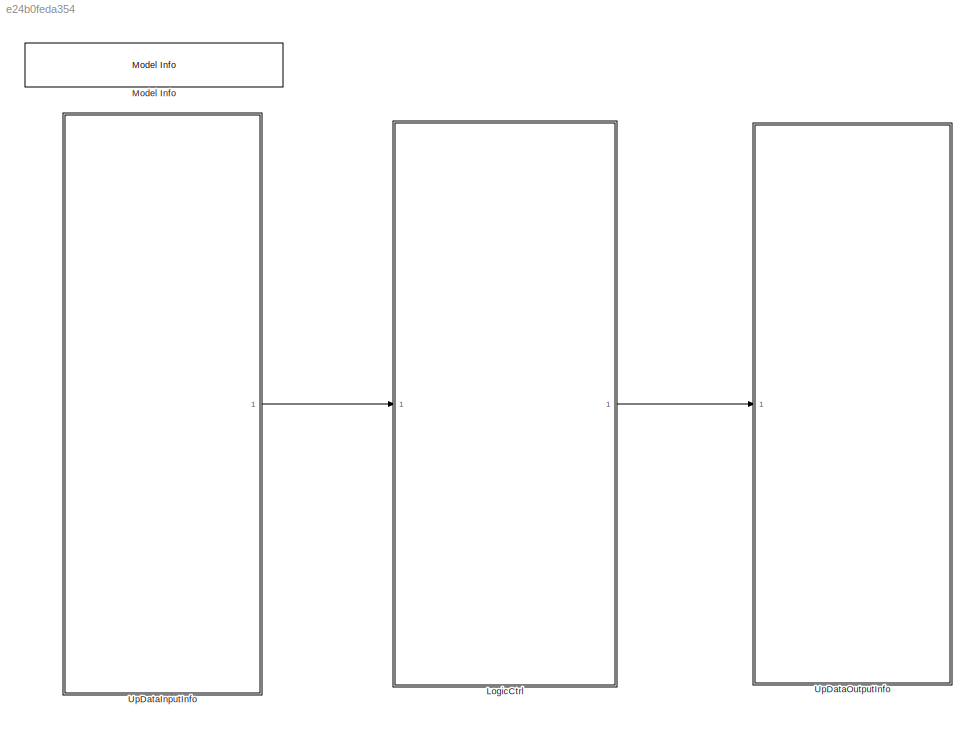
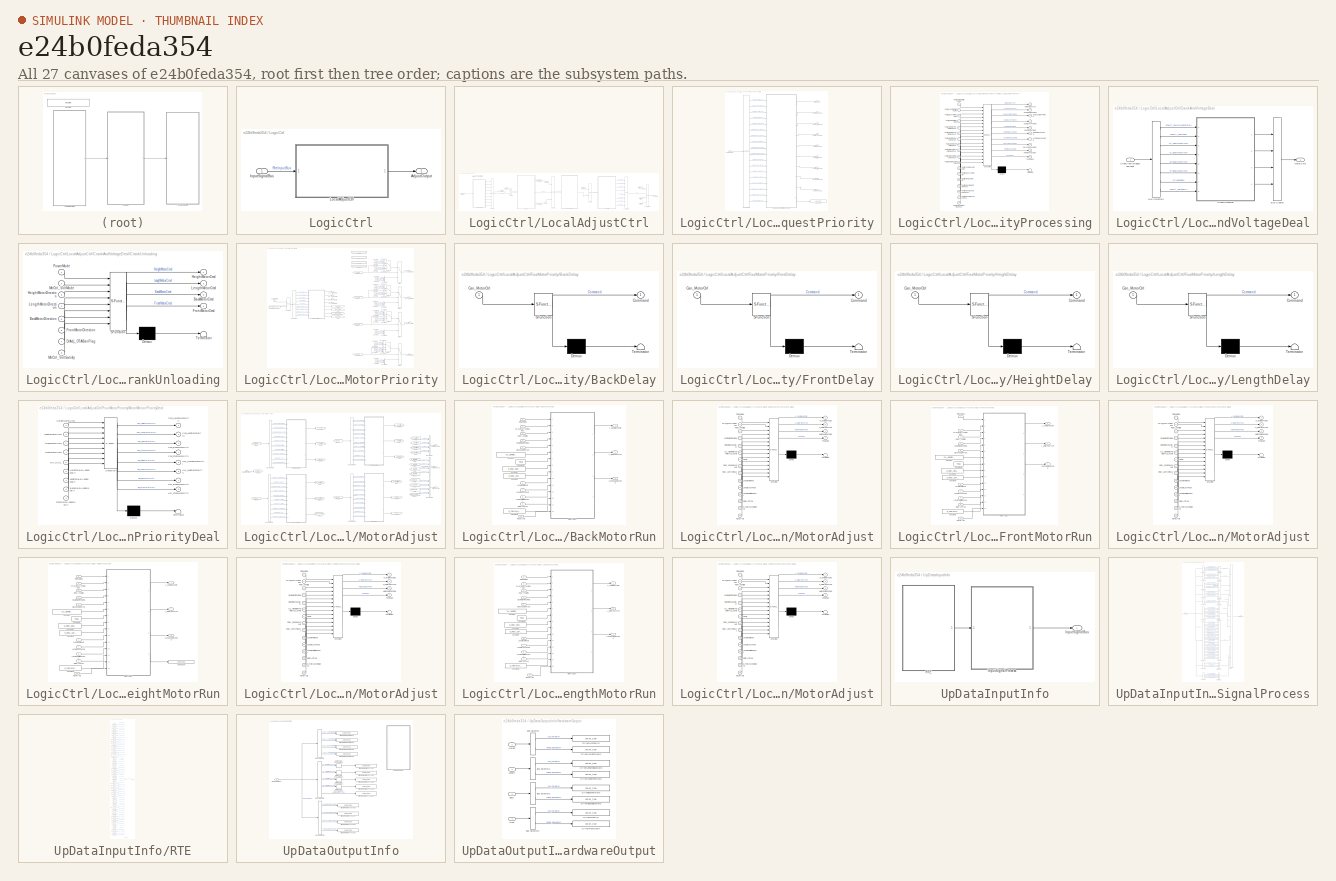
[diagram: thumbnail index - all 27 canvases of the model, root first then tree order]
MODEL slx_e24b0feda354
KIND model
BLOCK [SubSystem] LogicCtrl
  Ports = [1, 1]
  Priority = 2
  RTWFcnNameOpts = Use subsystem name
  RTWSystemCode = Nonreusable function
  RequestExecContextInheritance = off
  TreatAsAtomicUnit = on
BLOCK [Outport] LogicCtrl/AdjustOutput
  IconDisplay = Port number
BLOCK [Inport] LogicCtrl/InputSignalBus
  IconDisplay = Port number
BLOCK [SubSystem] LogicCtrl/LocalAdjustCtrl
  AttributesFormatString = %<Description>
  Description = 调节逻辑处理
  Ports = [1, 1]
  RequestExecContextInheritance = off
BLOCK [SubSystem] LogicCtrl/LocalAdjustCtrl/AdjustRequestPriority
  AttributesFormatString = %<Description>
  Description = 电机运动请求优先级处理
  Ports = [1, 9]
  RequestExecContextInheritance = off
BLOCK [Outport] LogicCtrl/LocalAdjustCtrl/AdjustRequestPriority/BackManualAdjSw
  IconDisplay = Port number
  Port = 8
BLOCK [BusSelector] LogicCtrl/LocalAdjustCtrl/AdjustRequestPriority/Bus Selector3
  OutputAsBus = off
  OutputSignals = HarSwitchCmd.PaMtr_HeightSwitchCmd,HarSwitchCmd.PaMtr_LengthSwitchCmd,HarSwitchCmd.PaMtr_BackSwitchCmd,HarSwitchCmd.PaMtr_FrontSwitchCmd,MemoryReq.PaMtr_MemoryHeightReqPosi,MemoryReq.PaMtr_MemoryLengthReqPosi,MemoryReq.PaMtr_MemoryBackReqPosi,MemoryReq.PaMtr_MemoryFrontReqPosi,WelcomeReq.PaMtr_WelcomeLengthReqPosi,WelcomeReq.PaMtr_WelcomeBackReqPosi,LearnReq.PaMtr_HeightLearnCmd,LearnReq.PaMtr_Len...<+201ch>
  Ports = [1, 18]
BLOCK [Outport] LogicCtrl/LocalAdjustCtrl/AdjustRequestPriority/FrontManualAdjSw
  IconDisplay = Port number
  Port = 9
BLOCK [Outport] LogicCtrl/LocalAdjustCtrl/AdjustRequestPriority/HeightManualAdjSw
  IconDisplay = Port number
  Port = 6
BLOCK [Inport] LogicCtrl/LocalAdjustCtrl/AdjustRequestPriority/InputSignalBus
  IconDisplay = Port number
BLOCK [Outport] LogicCtrl/LocalAdjustCtrl/AdjustRequestPriority/LengthManualAdjSw
  IconDisplay = Port number
  Port = 7
BLOCK [Outport] LogicCtrl/LocalAdjustCtrl/AdjustRequestPriority/MotorActType
  IconDisplay = Port number
BLOCK [SubSystem] LogicCtrl/LocalAdjustCtrl/AdjustRequestPriority/PaMotorAdjustmentPriorityProcessing
  ErrorFcn = Stateflow.Translate.translate
  PermitHierarchicalResolution = ExplicitOnly
  Ports = [18, 10]
  RequestExecContextInheritance = off
  SFBlockType = Chart
  TreatAsAtomicUnit = on
BLOCK [Demux] LogicCtrl/LocalAdjustCtrl/AdjustRequestPriority/PaMotorAdjustmentPriorityProcessing/ Demux 
  Outputs = 1
  Ports = [1, 1]
BLOCK [S-Function] LogicCtrl/LocalAdjustCtrl/AdjustRequestPriority/PaMotorAdjustmentPriorityProcessing/ SFunction 
  EnableBusSupport = on
  FunctionName = sf_sfun
  PortCounts = [18 11]
  Ports = [18, 11]
  SFcnIsStateOwnerBlock = off
  SFunctionDeploymentMode = off
  Tag = Stateflow S-Function Appl_PaAdjustModel 2
BLOCK [Terminator] LogicCtrl/LocalAdjustCtrl/AdjustRequestPriority/PaMotorAdjustmentPriorityProcessing/ Terminator 
BLOCK [Outport] LogicCtrl/LocalAdjustCtrl/AdjustRequestPriority/PaMotorAdjustmentPriorityProcessing/BackManualAdjSw
  IconDisplay = Port number
  Port = 8
BLOCK [Outport] LogicCtrl/LocalAdjustCtrl/AdjustRequestPriority/PaMotorAdjustmentPriorityProcessing/FrontManualAdjSw
  IconDisplay = Port number
  Port = 9
BLOCK [Outport] LogicCtrl/LocalAdjustCtrl/AdjustRequestPriority/PaMotorAdjustmentPriorityProcessing/HeightManualAdjSw
  IconDisplay = Port number
  Port = 6
BLOCK [Outport] LogicCtrl/LocalAdjustCtrl/AdjustRequestPriority/PaMotorAdjustmentPriorityProcessing/LengthManualAdjSw
  IconDisplay = Port number
  Port = 7
BLOCK [Outport] LogicCtrl/LocalAdjustCtrl/AdjustRequestPriority/PaMotorAdjustmentPriorityProcessing/MotorActionType
  IconDisplay = Port number
BLOCK [Inport] LogicCtrl/LocalAdjustCtrl/AdjustRequestPriority/PaMotorAdjustmentPriorityProcessing/PaMtr_BackLearnCmd
  IconDisplay = Port number
  Port = 13
BLOCK [Inport] LogicCtrl/LocalAdjustCtrl/AdjustRequestPriority/PaMotorAdjustmentPriorityProcessing/PaMtr_BackSwitchCmd
  IconDisplay = Port number
  Port = 3
BLOCK [Inport] LogicCtrl/LocalAdjustCtrl/AdjustRequestPriority/PaMotorAdjustmentPriorityProcessing/PaMtr_FrontLearnCmd
  IconDisplay = Port number
  Port = 14
BLOCK [Inport] LogicCtrl/LocalAdjustCtrl/AdjustRequestPriority/PaMotorAdjustmentPriorityProcessing/PaMtr_FrontSwitchCmd
  IconDisplay = Port number
  Port = 4
BLOCK [Inport] LogicCtrl/LocalAdjustCtrl/AdjustRequestPriority/PaMotorAdjustmentPriorityProcessing/PaMtr_HeightLearnCmd
  IconDisplay = Port number
  Port = 11
BLOCK [Inport] LogicCtrl/LocalAdjustCtrl/AdjustRequestPriority/PaMotorAdjustmentPriorityProcessing/PaMtr_HeightSwitchCmd
  IconDisplay = Port number
BLOCK [Inport] LogicCtrl/LocalAdjustCtrl/AdjustRequestPriority/PaMotorAdjustmentPriorityProcessing/PaMtr_LengthLearnCmd
  IconDisplay = Port number
  Port = 12
BLOCK [Inport] LogicCtrl/LocalAdjustCtrl/AdjustRequestPriority/PaMotorAdjustmentPriorityProcessing/PaMtr_LengthSwitchCmd
  IconDisplay = Port number
  Port = 2
BLOCK [Inport] LogicCtrl/LocalAdjustCtrl/AdjustRequestPriority/PaMotorAdjustmentPriorityProcessing/PaMtr_MemoryBackReqPosi
  IconDisplay = Port number
  Port = 7
BLOCK [Inport] LogicCtrl/LocalAdjustCtrl/AdjustRequestPriority/PaMotorAdjustmentPriorityProcessing/PaMtr_MemoryFrontReqPosi
  IconDisplay = Port number
  Port = 8
BLOCK [Inport] LogicCtrl/LocalAdjustCtrl/AdjustRequestPriority/PaMotorAdjustmentPriorityProcessing/PaMtr_MemoryHeightReqPosi
  IconDisplay = Port number
  Port = 5
BLOCK [Inport] LogicCtrl/LocalAdjustCtrl/AdjustRequestPriority/PaMotorAdjustmentPriorityProcessing/PaMtr_MemoryLengthReqPosi
  IconDisplay = Port number
  Port = 6
BLOCK [Inport] LogicCtrl/LocalAdjustCtrl/AdjustRequestPriority/PaMotorAdjustmentPriorityProcessing/PaMtr_ResetBackReqPosi
  IconDisplay = Port number
  Port = 17
BLOCK [Inport] LogicCtrl/LocalAdjustCtrl/AdjustRequestPriority/PaMotorAdjustmentPriorityProcessing/PaMtr_ResetFrontReqPosi
  IconDisplay = Port number
  Port = 18
BLOCK [Inport] LogicCtrl/LocalAdjustCtrl/AdjustRequestPriority/PaMotorAdjustmentPriorityProcessing/PaMtr_ResetHeightReqPosi
  IconDisplay = Port number
  Port = 15
BLOCK [Inport] LogicCtrl/LocalAdjustCtrl/AdjustRequestPriority/PaMotorAdjustmentPriorityProcessing/PaMtr_ResetLengthReqPosi
  IconDisplay = Port number
  Port = 16
BLOCK [Inport] LogicCtrl/LocalAdjustCtrl/AdjustRequestPriority/PaMotorAdjustmentPriorityProcessing/PaMtr_WelcomeBackReqPosi
  IconDisplay = Port number
  Port = 10
BLOCK [Inport] LogicCtrl/LocalAdjustCtrl/AdjustRequestPriority/PaMotorAdjustmentPriorityProcessing/PaMtr_WelcomeLengthReqPosi
  IconDisplay = Port number
  Port = 9
BLOCK [Outport] LogicCtrl/LocalAdjustCtrl/AdjustRequestPriority/PaMotorAdjustmentPriorityProcessing/SeatBackPosiReq
  IconDisplay = Port number
  Port = 4
BLOCK [Outport] LogicCtrl/LocalAdjustCtrl/AdjustRequestPriority/PaMotorAdjustmentPriorityProcessing/SeatFrontPosiReq
  IconDisplay = Port number
  Port = 5
BLOCK [Outport] LogicCtrl/LocalAdjustCtrl/AdjustRequestPriority/PaMotorAdjustmentPriorityProcessing/SeatHeightPosiReq
  IconDisplay = Port number
  Port = 2
BLOCK [Outport] LogicCtrl/LocalAdjustCtrl/AdjustRequestPriority/PaMotorAdjustmentPriorityProcessing/SeatLengthPosiReq
  IconDisplay = Port number
  Port = 3
BLOCK [Outport] LogicCtrl/LocalAdjustCtrl/AdjustRequestPriority/PaMotorAdjustmentPriorityProcessing/TestValue2
  IconDisplay = Port number
  Port = 10
BLOCK [Outport] LogicCtrl/LocalAdjustCtrl/AdjustRequestPriority/SeatBackPosiReq
  IconDisplay = Port number
  Port = 4
BLOCK [Outport] LogicCtrl/LocalAdjustCtrl/AdjustRequestPriority/SeatFrontPosiReq
  IconDisplay = Port number
  Port = 5
BLOCK [Outport] LogicCtrl/LocalAdjustCtrl/AdjustRequestPriority/SeatHeightPosiReq
  IconDisplay = Port number
  Port = 2
BLOCK [Outport] LogicCtrl/LocalAdjustCtrl/AdjustRequestPriority/SeatLengthPosiReq
  IconDisplay = Port number
  Port = 3
BLOCK [Reference] LogicCtrl/LocalAdjustCtrl/AdjustRequestPriority/setAPI_type  REF=DareLib/Dare/setAPI_type
  AttributesFormatString = %<g_funcname>
  Commented = on
  Ports = [1]
  SourceBlock = DareLib/Dare/setAPI_type
  SourceProductName = Dare Library
  SourceType = Dare Custom
BLOCK [BusCreator] LogicCtrl/LocalAdjustCtrl/Bus Creator2
  DisplayOption = bar
  InheritFromInputs = on
  Inputs = 9
  Ports = [9, 1]
BLOCK [BusCreator] LogicCtrl/LocalAdjustCtrl/Bus Creator3
  DisplayOption = bar
  InheritFromInputs = on
  Inputs = 2
  Ports = [2, 1]
BLOCK [BusCreator] LogicCtrl/LocalAdjustCtrl/Bus Creator4
  DisplayOption = bar
  InheritFromInputs = on
  Inputs = 3
  Ports = [3, 1]
BLOCK [BusCreator] LogicCtrl/LocalAdjustCtrl/Bus Creator5
  DisplayOption = bar
  InheritFromInputs = on
  Inputs = 2
  Ports = [2, 1]
BLOCK [BusCreator] LogicCtrl/LocalAdjustCtrl/Can_LengthMotorCtrl
  DisplayOption = bar
  InheritFromInputs = on
  Inputs = 8
  Ports = [8, 1]
BLOCK [BusCreator] LogicCtrl/LocalAdjustCtrl/Can_LengthMotorCtrl1
  DisplayOption = bar
  InheritFromInputs = on
  Inputs = 4
  Ports = [4, 1]
BLOCK [Constant] LogicCtrl/LocalAdjustCtrl/Constant1
  Value = 0
BLOCK [SubSystem] LogicCtrl/LocalAdjustCtrl/CrankAndVoltageDeal
  AttributesFormatString = %<Description>
  Description = CRANK卸荷和电压限制处理
  Ports = [1, 1]
  RequestExecContextInheritance = off
BLOCK [BusCreator] LogicCtrl/LocalAdjustCtrl/CrankAndVoltageDeal/Bus Creator
  DisplayOption = bar
  InheritFromInputs = on
  Inputs = 4
  Ports = [4, 1]
BLOCK [BusSelector] LogicCtrl/LocalAdjustCtrl/CrankAndVoltageDeal/Bus Selector9
  OutputAsBus = off
  OutputSignals = RteInputBus.Power.PaMtr_PowerModeStatus,RteInputBus.Power.PaMtr_VoltMode,SeatMoveCmd.H_SeatMoveCmd,SeatMoveCmd.L_SeatMoveCmd,SeatMoveCmd.B_SeatMoveCmd,SeatMoveCmd.F_SeatMoveCmd,OTABanFlag,RteInputBus.Power.PaMtr_VoltSatisfy
  Ports = [1, 8]
BLOCK [Inport] LogicCtrl/LocalAdjustCtrl/CrankAndVoltageDeal/CrankAndVoltageDealInput
  IconDisplay = Port number
BLOCK [SubSystem] LogicCtrl/LocalAdjustCtrl/CrankAndVoltageDeal/CrankUnloading
  ErrorFcn = Stateflow.Translate.translate
  PermitHierarchicalResolution = ExplicitOnly
  Ports = [8, 4]
  RequestExecContextInheritance = off
  SFBlockType = Chart
  TreatAsAtomicUnit = on
BLOCK [Demux] LogicCtrl/LocalAdjustCtrl/CrankAndVoltageDeal/CrankUnloading/ Demux 
  Outputs = 1
  Ports = [1, 1]
BLOCK [S-Function] LogicCtrl/LocalAdjustCtrl/CrankAndVoltageDeal/CrankUnloading/ SFunction 
  EnableBusSupport = on
  FunctionName = sf_sfun
  Parameters = FALSE,TRUE
  PortCounts = [8 5]
  Ports = [8, 5]
  SFcnIsStateOwnerBlock = off
  SFunctionDeploymentMode = off
  Tag = Stateflow S-Function Appl_PaAdjustModel 17
BLOCK [Terminator] LogicCtrl/LocalAdjustCtrl/CrankAndVoltageDeal/CrankUnloading/ Terminator 
BLOCK [Outport] LogicCtrl/LocalAdjustCtrl/CrankAndVoltageDeal/CrankUnloading/BackMotorCmd
  IconDisplay = Port number
  Port = 3
BLOCK [Inport] LogicCtrl/LocalAdjustCtrl/CrankAndVoltageDeal/CrankUnloading/BackMotorDirection
  IconDisplay = Port number
  Port = 5
BLOCK [Inport] LogicCtrl/LocalAdjustCtrl/CrankAndVoltageDeal/CrankUnloading/DrAdj_OTABanFlag
  IconDisplay = Port number
  Port = 7
BLOCK [Outport] LogicCtrl/LocalAdjustCtrl/CrankAndVoltageDeal/CrankUnloading/FrontMotorCmd
  IconDisplay = Port number
  Port = 4
BLOCK [Inport] LogicCtrl/LocalAdjustCtrl/CrankAndVoltageDeal/CrankUnloading/FrontMotorDirection
  IconDisplay = Port number
  Port = 6
BLOCK [Outport] LogicCtrl/LocalAdjustCtrl/CrankAndVoltageDeal/CrankUnloading/HeightMotorCmd
  IconDisplay = Port number
BLOCK [Inport] LogicCtrl/LocalAdjustCtrl/CrankAndVoltageDeal/CrankUnloading/HeightMotorDirection
  IconDisplay = Port number
  Port = 3
BLOCK [Outport] LogicCtrl/LocalAdjustCtrl/CrankAndVoltageDeal/CrankUnloading/LengthMotorCmd
  IconDisplay = Port number
  Port = 2
BLOCK [Inport] LogicCtrl/LocalAdjustCtrl/CrankAndVoltageDeal/CrankUnloading/LengthMotorDirection
  IconDisplay = Port number
  Port = 4
BLOCK [Inport] LogicCtrl/LocalAdjustCtrl/CrankAndVoltageDeal/CrankUnloading/MtrCtrl_VoltMode
  IconDisplay = Port number
  Port = 2
BLOCK [Inport] LogicCtrl/LocalAdjustCtrl/CrankAndVoltageDeal/CrankUnloading/MtrCtrl_VoltSatisfy
  IconDisplay = Port number
  Port = 8
BLOCK [Inport] LogicCtrl/LocalAdjustCtrl/CrankAndVoltageDeal/CrankUnloading/PowerMode
  IconDisplay = Port number
BLOCK [Outport] LogicCtrl/LocalAdjustCtrl/CrankAndVoltageDeal/MotorCmd
  IconDisplay = Port number
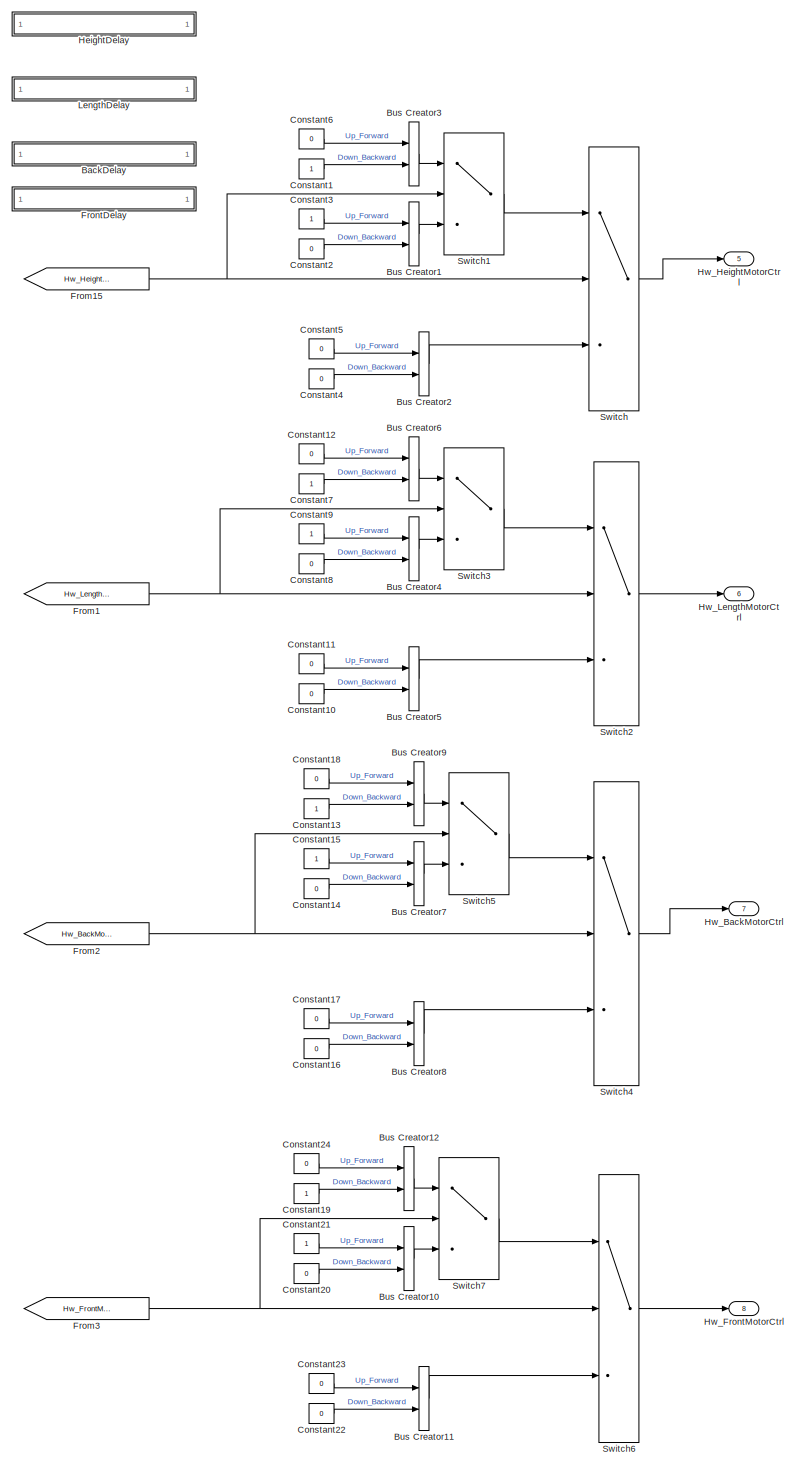
[diagram: LogicCtrl/LocalAdjustCtrl/FourMotorPriority - part 1/2, right side, full height]
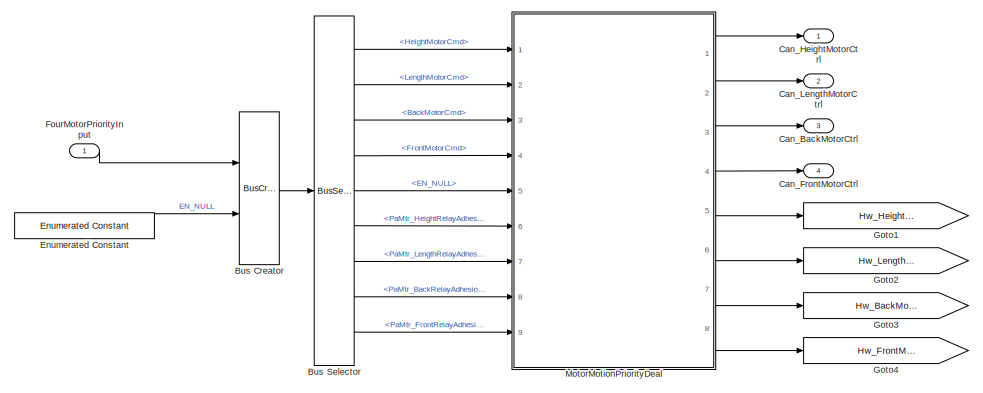
[diagram: LogicCtrl/LocalAdjustCtrl/FourMotorPriority - part 2/2, middle left region]
BLOCK [SubSystem] LogicCtrl/LocalAdjustCtrl/FourMotorPriority
  AttributesFormatString = %<Description>
  Description = 四向调节电机运动优先级
  Ports = [1, 8]
  RequestExecContextInheritance = off
BLOCK [SubSystem] LogicCtrl/LocalAdjustCtrl/FourMotorPriority/BackDelay
  Commented = on
  ErrorFcn = Stateflow.Translate.translate
  PermitHierarchicalResolution = ExplicitOnly
  Ports = [1, 1]
  RequestExecContextInheritance = off
  SFBlockType = Chart
  TreatAsAtomicUnit = on
BLOCK [Demux] LogicCtrl/LocalAdjustCtrl/FourMotorPriority/BackDelay/ Demux 
  Outputs = 1
  Ports = [1, 1]
BLOCK [S-Function] LogicCtrl/LocalAdjustCtrl/FourMotorPriority/BackDelay/ SFunction 
  EnableBusSupport = on
  FunctionName = sf_sfun
  Parameters = CAL_MotorStopTime_50ms,FALSE,TRUE
  PortCounts = [1 2]
  Ports = [1, 2]
  SFcnIsStateOwnerBlock = off
  SFunctionDeploymentMode = off
  Tag = Stateflow S-Function Appl_PaAdjustModel 25
BLOCK [Terminator] LogicCtrl/LocalAdjustCtrl/FourMotorPriority/BackDelay/ Terminator 
BLOCK [Inport] LogicCtrl/LocalAdjustCtrl/FourMotorPriority/BackDelay/Can_MotorCtrl
  IconDisplay = Port number
BLOCK [Outport] LogicCtrl/LocalAdjustCtrl/FourMotorPriority/BackDelay/Command
  IconDisplay = Port number
BLOCK [BusCreator] LogicCtrl/LocalAdjustCtrl/FourMotorPriority/Bus Creator
  DisplayOption = bar
  InheritFromInputs = on
  Inputs = 2
  Ports = [2, 1]
BLOCK [BusCreator] LogicCtrl/LocalAdjustCtrl/FourMotorPriority/Bus Creator1
  Commented = on
  DisplayOption = bar
  InheritFromInputs = on
  Inputs = 2
  Ports = [2, 1]
BLOCK [BusCreator] LogicCtrl/LocalAdjustCtrl/FourMotorPriority/Bus Creator10
  Commented = on
  DisplayOption = bar
  InheritFromInputs = on
  Inputs = 2
  Ports = [2, 1]
BLOCK [BusCreator] LogicCtrl/LocalAdjustCtrl/FourMotorPriority/Bus Creator11
  Commented = on
  DisplayOption = bar
  InheritFromInputs = on
  Inputs = 2
  Ports = [2, 1]
BLOCK [BusCreator] LogicCtrl/LocalAdjustCtrl/FourMotorPriority/Bus Creator12
  Commented = on
  DisplayOption = bar
  InheritFromInputs = on
  Inputs = 2
  Ports = [2, 1]
BLOCK [BusCreator] LogicCtrl/LocalAdjustCtrl/FourMotorPriority/Bus Creator2
  Commented = on
  DisplayOption = bar
  InheritFromInputs = on
  Inputs = 2
  Ports = [2, 1]
BLOCK [BusCreator] LogicCtrl/LocalAdjustCtrl/FourMotorPriority/Bus Creator3
  Commented = on
  DisplayOption = bar
  InheritFromInputs = on
  Inputs = 2
  Ports = [2, 1]
BLOCK [BusCreator] LogicCtrl/LocalAdjustCtrl/FourMotorPriority/Bus Creator4
  Commented = on
  DisplayOption = bar
  InheritFromInputs = on
  Inputs = 2
  Ports = [2, 1]
BLOCK [BusCreator] LogicCtrl/LocalAdjustCtrl/FourMotorPriority/Bus Creator5
  Commented = on
  DisplayOption = bar
  InheritFromInputs = on
  Inputs = 2
  Ports = [2, 1]
BLOCK [BusCreator] LogicCtrl/LocalAdjustCtrl/FourMotorPriority/Bus Creator6
  Commented = on
  DisplayOption = bar
  InheritFromInputs = on
  Inputs = 2
  Ports = [2, 1]
BLOCK [BusCreator] LogicCtrl/LocalAdjustCtrl/FourMotorPriority/Bus Creator7
  Commented = on
  DisplayOption = bar
  InheritFromInputs = on
  Inputs = 2
  Ports = [2, 1]
BLOCK [BusCreator] LogicCtrl/LocalAdjustCtrl/FourMotorPriority/Bus Creator8
  Commented = on
  DisplayOption = bar
  InheritFromInputs = on
  Inputs = 2
  Ports = [2, 1]
BLOCK [BusCreator] LogicCtrl/LocalAdjustCtrl/FourMotorPriority/Bus Creator9
  Commented = on
  DisplayOption = bar
  InheritFromInputs = on
  Inputs = 2
  Ports = [2, 1]
BLOCK [BusSelector] LogicCtrl/LocalAdjustCtrl/FourMotorPriority/Bus Selector
  OutputAsBus = off
  OutputSignals = FourMotorPriorityInput.MotorCmd.HeightMotorCmd,FourMotorPriorityInput.MotorCmd.LengthMotorCmd,FourMotorPriorityInput.MotorCmd.BackMotorCmd,FourMotorPriorityInput.MotorCmd.FrontMotorCmd,EN_NULL,FourMotorPriorityInput.RteInputBus.ErrSts.PaMtr_HeightRelayAdhesionErr,FourMotorPriorityInput.RteInputBus.ErrSts.PaMtr_LengthRelayAdhesionErr,FourMotorPriorityInput.RteInputBus.ErrSts.PaMtr_BackRelayAdhesion...<+73ch>
  Ports = [1, 9]
BLOCK [Outport] LogicCtrl/LocalAdjustCtrl/FourMotorPriority/Can_BackMotorCtrl
  IconDisplay = Port number
  Port = 3
BLOCK [Outport] LogicCtrl/LocalAdjustCtrl/FourMotorPriority/Can_FrontMotorCtrl
  IconDisplay = Port number
  Port = 4
BLOCK [Outport] LogicCtrl/LocalAdjustCtrl/FourMotorPriority/Can_HeightMotorCtrl
  IconDisplay = Port number
BLOCK [Outport] LogicCtrl/LocalAdjustCtrl/FourMotorPriority/Can_LengthMotorCtrl
  IconDisplay = Port number
  Port = 2
BLOCK [Constant] LogicCtrl/LocalAdjustCtrl/FourMotorPriority/Constant1
  Commented = on
  OutDataTypeStr = uint8
BLOCK [Constant] LogicCtrl/LocalAdjustCtrl/FourMotorPriority/Constant10
  Commented = on
  OutDataTypeStr = uint8
  Value = 0
BLOCK [Constant] LogicCtrl/LocalAdjustCtrl/FourMotorPriority/Constant11
  Commented = on
  OutDataTypeStr = uint8
  Value = 0
BLOCK [Constant] LogicCtrl/LocalAdjustCtrl/FourMotorPriority/Constant12
  Commented = on
  OutDataTypeStr = uint8
  Value = 0
BLOCK [Constant] LogicCtrl/LocalAdjustCtrl/FourMotorPriority/Constant13
  Commented = on
  OutDataTypeStr = uint8
BLOCK [Constant] LogicCtrl/LocalAdjustCtrl/FourMotorPriority/Constant14
  Commented = on
  OutDataTypeStr = uint8
  Value = 0
BLOCK [Constant] LogicCtrl/LocalAdjustCtrl/FourMotorPriority/Constant15
  Commented = on
  OutDataTypeStr = uint8
BLOCK [Constant] LogicCtrl/LocalAdjustCtrl/FourMotorPriority/Constant16
  Commented = on
  OutDataTypeStr = uint8
  Value = 0
BLOCK [Constant] LogicCtrl/LocalAdjustCtrl/FourMotorPriority/Constant17
  Commented = on
  OutDataTypeStr = uint8
  Value = 0
BLOCK [Constant] LogicCtrl/LocalAdjustCtrl/FourMotorPriority/Constant18
  Commented = on
  OutDataTypeStr = uint8
  Value = 0
BLOCK [Constant] LogicCtrl/LocalAdjustCtrl/FourMotorPriority/Constant19
  Commented = on
  OutDataTypeStr = uint8
BLOCK [Constant] LogicCtrl/LocalAdjustCtrl/FourMotorPriority/Constant2
  Commented = on
  OutDataTypeStr = uint8
  Value = 0
BLOCK [Constant] LogicCtrl/LocalAdjustCtrl/FourMotorPriority/Constant20
  Commented = on
  OutDataTypeStr = uint8
  Value = 0
BLOCK [Constant] LogicCtrl/LocalAdjustCtrl/FourMotorPriority/Constant21
  Commented = on
  OutDataTypeStr = uint8
BLOCK [Constant] LogicCtrl/LocalAdjustCtrl/FourMotorPriority/Constant22
  Commented = on
  OutDataTypeStr = uint8
  Value = 0
BLOCK [Constant] LogicCtrl/LocalAdjustCtrl/FourMotorPriority/Constant23
  Commented = on
  OutDataTypeStr = uint8
  Value = 0
BLOCK [Constant] LogicCtrl/LocalAdjustCtrl/FourMotorPriority/Constant24
  Commented = on
  OutDataTypeStr = uint8
  Value = 0
BLOCK [Constant] LogicCtrl/LocalAdjustCtrl/FourMotorPriority/Constant3
  Commented = on
  OutDataTypeStr = uint8
BLOCK [Constant] LogicCtrl/LocalAdjustCtrl/FourMotorPriority/Constant4
  Commented = on
  OutDataTypeStr = uint8
  Value = 0
BLOCK [Constant] LogicCtrl/LocalAdjustCtrl/FourMotorPriority/Constant5
  Commented = on
  OutDataTypeStr = uint8
  Value = 0
BLOCK [Constant] LogicCtrl/LocalAdjustCtrl/FourMotorPriority/Constant6
  Commented = on
  OutDataTypeStr = uint8
  Value = 0
BLOCK [Constant] LogicCtrl/LocalAdjustCtrl/FourMotorPriority/Constant7
  Commented = on
  OutDataTypeStr = uint8
BLOCK [Constant] LogicCtrl/LocalAdjustCtrl/FourMotorPriority/Constant8
  Commented = on
  OutDataTypeStr = uint8
  Value = 0
BLOCK [Constant] LogicCtrl/LocalAdjustCtrl/FourMotorPriority/Constant9
  Commented = on
  OutDataTypeStr = uint8
BLOCK [Reference] LogicCtrl/LocalAdjustCtrl/FourMotorPriority/Enumerated Constant  REF=simulink/Sources/Enumerated
Constant
  Ports = [0, 1]
  SourceBlock = simulink/Sources/Enumerated\nConstant
  SourceProductBaseCode = SL
  SourceProductName = Simulink
  SourceType = Enumerated Constant
BLOCK [Inport] LogicCtrl/LocalAdjustCtrl/FourMotorPriority/FourMotorPriorityInput
  IconDisplay = Port number
BLOCK [From] LogicCtrl/LocalAdjustCtrl/FourMotorPriority/From1
  Commented = on
  GotoTag = Hw_LengthMotorCtrl
BLOCK [From] LogicCtrl/LocalAdjustCtrl/FourMotorPriority/From15
  Commented = on
  GotoTag = Hw_HeightMotorCtrl
BLOCK [From] LogicCtrl/LocalAdjustCtrl/FourMotorPriority/From2
  Commented = on
  GotoTag = Hw_BackMotorCtrl
BLOCK [From] LogicCtrl/LocalAdjustCtrl/FourMotorPriority/From3
  Commented = on
  GotoTag = Hw_FrontMotorCtrl
BLOCK [SubSystem] LogicCtrl/LocalAdjustCtrl/FourMotorPriority/FrontDelay
  Commented = on
  ErrorFcn = Stateflow.Translate.translate
  PermitHierarchicalResolution = ExplicitOnly
  Ports = [1, 1]
  RequestExecContextInheritance = off
  SFBlockType = Chart
  TreatAsAtomicUnit = on
BLOCK [Demux] LogicCtrl/LocalAdjustCtrl/FourMotorPriority/FrontDelay/ Demux 
  Outputs = 1
  Ports = [1, 1]
BLOCK [S-Function] LogicCtrl/LocalAdjustCtrl/FourMotorPriority/FrontDelay/ SFunction 
  EnableBusSupport = on
  FunctionName = sf_sfun
  Parameters = CAL_MotorStopTime_50ms,FALSE,TRUE
  PortCounts = [1 2]
  Ports = [1, 2]
  SFcnIsStateOwnerBlock = off
  SFunctionDeploymentMode = off
  Tag = Stateflow S-Function Appl_PaAdjustModel 26
BLOCK [Terminator] LogicCtrl/LocalAdjustCtrl/FourMotorPriority/FrontDelay/ Terminator 
BLOCK [Inport] LogicCtrl/LocalAdjustCtrl/FourMotorPriority/FrontDelay/Can_MotorCtrl
  IconDisplay = Port number
BLOCK [Outport] LogicCtrl/LocalAdjustCtrl/FourMotorPriority/FrontDelay/Command
  IconDisplay = Port number
BLOCK [Goto] LogicCtrl/LocalAdjustCtrl/FourMotorPriority/Goto1
  GotoTag = Hw_HeightMotorCtrl
BLOCK [Goto] LogicCtrl/LocalAdjustCtrl/FourMotorPriority/Goto2
  GotoTag = Hw_LengthMotorCtrl
BLOCK [Goto] LogicCtrl/LocalAdjustCtrl/FourMotorPriority/Goto3
  GotoTag = Hw_BackMotorCtrl
BLOCK [Goto] LogicCtrl/LocalAdjustCtrl/FourMotorPriority/Goto4
  GotoTag = Hw_FrontMotorCtrl
BLOCK [SubSystem] LogicCtrl/LocalAdjustCtrl/FourMotorPriority/HeightDelay
  Commented = on
  ErrorFcn = Stateflow.Translate.translate
  PermitHierarchicalResolution = ExplicitOnly
  Ports = [1, 1]
  RequestExecContextInheritance = off
  SFBlockType = Chart
  TreatAsAtomicUnit = on
BLOCK [Demux] LogicCtrl/LocalAdjustCtrl/FourMotorPriority/HeightDelay/ Demux 
  Outputs = 1
  Ports = [1, 1]
BLOCK [S-Function] LogicCtrl/LocalAdjustCtrl/FourMotorPriority/HeightDelay/ SFunction 
  EnableBusSupport = on
  FunctionName = sf_sfun
  Parameters = CAL_MotorStopTime_50ms,FALSE,TRUE
  PortCounts = [1 2]
  Ports = [1, 2]
  SFcnIsStateOwnerBlock = off
  SFunctionDeploymentMode = off
  Tag = Stateflow S-Function Appl_PaAdjustModel 23
BLOCK [Terminator] LogicCtrl/LocalAdjustCtrl/FourMotorPriority/HeightDelay/ Terminator 
BLOCK [Inport] LogicCtrl/LocalAdjustCtrl/FourMotorPriority/HeightDelay/Can_MotorCtrl
  IconDisplay = Port number
BLOCK [Outport] LogicCtrl/LocalAdjustCtrl/FourMotorPriority/HeightDelay/Command
  IconDisplay = Port number
BLOCK [Outport] LogicCtrl/LocalAdjustCtrl/FourMotorPriority/Hw_BackMotorCtrl
  IconDisplay = Port number
  Port = 7
BLOCK [Outport] LogicCtrl/LocalAdjustCtrl/FourMotorPriority/Hw_FrontMotorCtrl
  IconDisplay = Port number
  Port = 8
BLOCK [Outport] LogicCtrl/LocalAdjustCtrl/FourMotorPriority/Hw_HeightMotorCtrl
  IconDisplay = Port number
  Port = 5
BLOCK [Outport] LogicCtrl/LocalAdjustCtrl/FourMotorPriority/Hw_LengthMotorCtrl
  IconDisplay = Port number
  Port = 6
BLOCK [SubSystem] LogicCtrl/LocalAdjustCtrl/FourMotorPriority/LengthDelay
  Commented = on
  ErrorFcn = Stateflow.Translate.translate
  PermitHierarchicalResolution = ExplicitOnly
  Ports = [1, 1]
  RequestExecContextInheritance = off
  SFBlockType = Chart
  TreatAsAtomicUnit = on
BLOCK [Demux] LogicCtrl/LocalAdjustCtrl/FourMotorPriority/LengthDelay/ Demux 
  Outputs = 1
  Ports = [1, 1]
BLOCK [S-Function] LogicCtrl/LocalAdjustCtrl/FourMotorPriority/LengthDelay/ SFunction 
  EnableBusSupport = on
  FunctionName = sf_sfun
  Parameters = CAL_MotorStopTime_50ms,FALSE,TRUE
  PortCounts = [1 2]
  Ports = [1, 2]
  SFcnIsStateOwnerBlock = off
  SFunctionDeploymentMode = off
  Tag = Stateflow S-Function Appl_PaAdjustModel 24
BLOCK [Terminator] LogicCtrl/LocalAdjustCtrl/FourMotorPriority/LengthDelay/ Terminator 
BLOCK [Inport] LogicCtrl/LocalAdjustCtrl/FourMotorPriority/LengthDelay/Can_MotorCtrl
  IconDisplay = Port number
BLOCK [Outport] LogicCtrl/LocalAdjustCtrl/FourMotorPriority/LengthDelay/Command
  IconDisplay = Port number
BLOCK [SubSystem] LogicCtrl/LocalAdjustCtrl/FourMotorPriority/MotorMotionPriorityDeal
  ErrorFcn = Stateflow.Translate.translate
  PermitHierarchicalResolution = ExplicitOnly
  Ports = [9, 8]
  RequestExecContextInheritance = off
  SFBlockType = Chart
  TreatAsAtomicUnit = on
BLOCK [Demux] LogicCtrl/LocalAdjustCtrl/FourMotorPriority/MotorMotionPriorityDeal/ Demux 
  Outputs = 1
  Ports = [1, 1]
BLOCK [S-Function] LogicCtrl/LocalAdjustCtrl/FourMotorPriority/MotorMotionPriorityDeal/ SFunction 
  EnableBusSupport = on
  FunctionName = sf_sfun
  Parameters = CAL_MotorDiffToStart_100ms,FALSE
  PortCounts = [9 9]
  Ports = [9, 9]
  SFcnIsStateOwnerBlock = off
  SFunctionDeploymentMode = off
  Tag = Stateflow S-Function Appl_PaAdjustModel 16
BLOCK [Terminator] LogicCtrl/LocalAdjustCtrl/FourMotorPriority/MotorMotionPriorityDeal/ Terminator 
BLOCK [Inport] LogicCtrl/LocalAdjustCtrl/FourMotorPriority/MotorMotionPriorityDeal/BackMotorCmd
  IconDisplay = Port number
  Port = 3
BLOCK [Inport] LogicCtrl/LocalAdjustCtrl/FourMotorPriority/MotorMotionPriorityDeal/BackRelayAdhesionErr
  IconDisplay = Port number
  Port = 8
BLOCK [Outport] LogicCtrl/LocalAdjustCtrl/FourMotorPriority/MotorMotionPriorityDeal/Can_BackMotorCtrl
  IconDisplay = Port number
  Port = 3
BLOCK [Outport] LogicCtrl/LocalAdjustCtrl/FourMotorPriority/MotorMotionPriorityDeal/Can_FrontMotorCtrl
  IconDisplay = Port number
  Port = 4
BLOCK [Outport] LogicCtrl/LocalAdjustCtrl/FourMotorPriority/MotorMotionPriorityDeal/Can_HeightMotorCtrl
  IconDisplay = Port number
BLOCK [Outport] LogicCtrl/LocalAdjustCtrl/FourMotorPriority/MotorMotionPriorityDeal/Can_LengthMotorCtrl
  IconDisplay = Port number
  Port = 2
BLOCK [Inport] LogicCtrl/LocalAdjustCtrl/FourMotorPriority/MotorMotionPriorityDeal/EN_NULL
  IconDisplay = Port number
  Port = 5
BLOCK [Inport] LogicCtrl/LocalAdjustCtrl/FourMotorPriority/MotorMotionPriorityDeal/FrontMotorCmd
  IconDisplay = Port number
  Port = 4
BLOCK [Inport] LogicCtrl/LocalAdjustCtrl/FourMotorPriority/MotorMotionPriorityDeal/FrontRelayAdhesionErr
  IconDisplay = Port number
  Port = 9
BLOCK [Inport] LogicCtrl/LocalAdjustCtrl/FourMotorPriority/MotorMotionPriorityDeal/HeightMotorCmd
  IconDisplay = Port number
BLOCK [Inport] LogicCtrl/LocalAdjustCtrl/FourMotorPriority/MotorMotionPriorityDeal/HeightRelayAdhesionErr
  IconDisplay = Port number
  Port = 6
BLOCK [Outport] LogicCtrl/LocalAdjustCtrl/FourMotorPriority/MotorMotionPriorityDeal/Hw_BackMotorCtrl
  IconDisplay = Port number
  Port = 7
BLOCK [Outport] LogicCtrl/LocalAdjustCtrl/FourMotorPriority/MotorMotionPriorityDeal/Hw_FrontMotorCtrl
  IconDisplay = Port number
  Port = 8
BLOCK [Outport] LogicCtrl/LocalAdjustCtrl/FourMotorPriority/MotorMotionPriorityDeal/Hw_HeightMotorCtrl
  IconDisplay = Port number
  Port = 5
BLOCK [Outport] LogicCtrl/LocalAdjustCtrl/FourMotorPriority/MotorMotionPriorityDeal/Hw_LengthMotorCtrl
  IconDisplay = Port number
  Port = 6
BLOCK [Inport] LogicCtrl/LocalAdjustCtrl/FourMotorPriority/MotorMotionPriorityDeal/LengthMotorCmd
  IconDisplay = Port number
  Port = 2
BLOCK [Inport] LogicCtrl/LocalAdjustCtrl/FourMotorPriority/MotorMotionPriorityDeal/LengthRelayAdhesionErr
  IconDisplay = Port number
  Port = 7
BLOCK [Switch] LogicCtrl/LocalAdjustCtrl/FourMotorPriority/Switch
  Commented = on
  Criteria = u2 > Threshold
  InputSameDT = off
  SaturateOnIntegerOverflow = off
BLOCK [Switch] LogicCtrl/LocalAdjustCtrl/FourMotorPriority/Switch1
  Commented = on
  Criteria = u2 > Threshold
  InputSameDT = off
  SaturateOnIntegerOverflow = off
  Threshold = 1
BLOCK [Switch] LogicCtrl/LocalAdjustCtrl/FourMotorPriority/Switch2
  Commented = on
  Criteria = u2 > Threshold
  InputSameDT = off
  SaturateOnIntegerOverflow = off
BLOCK [Switch] LogicCtrl/LocalAdjustCtrl/FourMotorPriority/Switch3
  Commented = on
  Criteria = u2 > Threshold
  InputSameDT = off
  SaturateOnIntegerOverflow = off
  Threshold = 1
BLOCK [Switch] LogicCtrl/LocalAdjustCtrl/FourMotorPriority/Switch4
  Commented = on
  Criteria = u2 > Threshold
  InputSameDT = off
  SaturateOnIntegerOverflow = off
BLOCK [Switch] LogicCtrl/LocalAdjustCtrl/FourMotorPriority/Switch5
  Commented = on
  Criteria = u2 > Threshold
  InputSameDT = off
  SaturateOnIntegerOverflow = off
  Threshold = 1
BLOCK [Switch] LogicCtrl/LocalAdjustCtrl/FourMotorPriority/Switch6
  Commented = on
  Criteria = u2 > Threshold
  InputSameDT = off
  SaturateOnIntegerOverflow = off
BLOCK [Switch] LogicCtrl/LocalAdjustCtrl/FourMotorPriority/Switch7
  Commented = on
  Criteria = u2 > Threshold
  InputSameDT = off
  SaturateOnIntegerOverflow = off
  Threshold = 1
BLOCK [From] LogicCtrl/LocalAdjustCtrl/From1
  GotoTag = RteInputBus
BLOCK [From] LogicCtrl/LocalAdjustCtrl/From12
  GotoTag = RteInputBus
BLOCK [From] LogicCtrl/LocalAdjustCtrl/From2
  GotoTag = MotorRunType
BLOCK [From] LogicCtrl/LocalAdjustCtrl/From3
  GotoTag = AutoRunFlag
BLOCK [From] LogicCtrl/LocalAdjustCtrl/From33
  GotoTag = RteInputBus
BLOCK [From] LogicCtrl/LocalAdjustCtrl/From4
  GotoTag = MotorReq
BLOCK [From] LogicCtrl/LocalAdjustCtrl/From5
  GotoTag = RteInputBus
BLOCK [Goto] LogicCtrl/LocalAdjustCtrl/Goto1
  GotoTag = MotorRunType
BLOCK [Goto] LogicCtrl/LocalAdjustCtrl/Goto2
  GotoTag = AutoRunFlag
BLOCK [Goto] LogicCtrl/LocalAdjustCtrl/Goto23
  GotoTag = MotorReq
BLOCK [Goto] LogicCtrl/LocalAdjustCtrl/Goto7
  GotoTag = RteInputBus
BLOCK [Outport] LogicCtrl/LocalAdjustCtrl/LocalAdjustCtrlOut
  IconDisplay = Port number
BLOCK [SubSystem] LogicCtrl/LocalAdjustCtrl/MotorAdjust
  AttributesFormatString = %<Description>
  Description = 四向电机调节
  Ports = [1, 3]
  RequestExecContextInheritance = off
BLOCK [Outport] LogicCtrl/LocalAdjustCtrl/MotorAdjust/AutoRunFlag
  IconDisplay = Port number
  Port = 3
BLOCK [SubSystem] LogicCtrl/LocalAdjustCtrl/MotorAdjust/BackMotorRun
  AttributesFormatString = 靠背电机运动状态与处理
  Ports = [10, 3]
  RequestExecContextInheritance = off
BLOCK [Constant] LogicCtrl/LocalAdjustCtrl/MotorAdjust/BackMotorRun/Constant
  Value = CAL_HightMotorRunInterval_100ms
BLOCK [Constant] LogicCtrl/LocalAdjustCtrl/MotorAdjust/BackMotorRun/Constant1
  Value = D_ToleranceDistance
BLOCK [Constant] LogicCtrl/LocalAdjustCtrl/MotorAdjust/BackMotorRun/Constant3
  Value = TRUE
BLOCK [Constant] LogicCtrl/LocalAdjustCtrl/MotorAdjust/BackMotorRun/Constant6
  Value = D_Relay_DownBackFault
BLOCK [Constant] LogicCtrl/LocalAdjustCtrl/MotorAdjust/BackMotorRun/Constant7
  Value = D_Relay_UpFrontFault
BLOCK [Inport] LogicCtrl/LocalAdjustCtrl/MotorAdjust/BackMotorRun/DrAdj_InCurrentHallCnt
  IconDisplay = Port number
  Port = 2
BLOCK [Outport] LogicCtrl/LocalAdjustCtrl/MotorAdjust/BackMotorRun/L_MotorRunType
  IconDisplay = Port number
  Port = 2
BLOCK [Outport] LogicCtrl/LocalAdjustCtrl/MotorAdjust/BackMotorRun/L_SeatMoveCmd
  IconDisplay = Port number
BLOCK [Outport] LogicCtrl/LocalAdjustCtrl/MotorAdjust/BackMotorRun/LenghtAutoRunFlag
  IconDisplay = Port number
  Port = 3
BLOCK [Inport] LogicCtrl/LocalAdjustCtrl/MotorAdjust/BackMotorRun/LengthHallFault
  IconDisplay = Port number
  Port = 6
BLOCK [Inport] LogicCtrl/LocalAdjustCtrl/MotorAdjust/BackMotorRun/LengthLockFault
  IconDisplay = Port number
  Port = 7
BLOCK [Inport] LogicCtrl/LocalAdjustCtrl/MotorAdjust/BackMotorRun/LengthSoftStopFault
  IconDisplay = Port number
  Port = 8
BLOCK [Inport] LogicCtrl/LocalAdjustCtrl/MotorAdjust/BackMotorRun/ManualAdjSwType
  IconDisplay = Port number
  Port = 5
BLOCK [Inport] LogicCtrl/LocalAdjustCtrl/MotorAdjust/BackMotorRun/MosErrSts
  IconDisplay = Port number
  Port = 10
BLOCK [Inport] LogicCtrl/LocalAdjustCtrl/MotorAdjust/BackMotorRun/MotorActType
  IconDisplay = Port number
  Port = 9
BLOCK [SubSystem] LogicCtrl/LocalAdjustCtrl/MotorAdjust/BackMotorRun/MotorAdjust
  ErrorFcn = Stateflow.Translate.translate
  PermitHierarchicalResolution = ExplicitOnly
  Ports = [15, 4]
  RequestExecContextInheritance = off
  SFBlockType = Chart
  TreatAsAtomicUnit = on
BLOCK [Demux] LogicCtrl/LocalAdjustCtrl/MotorAdjust/BackMotorRun/MotorAdjust/ Demux 
  Outputs = 1
  Ports = [1, 1]
BLOCK [S-Function] LogicCtrl/LocalAdjustCtrl/MotorAdjust/BackMotorRun/MotorAdjust/ SFunction 
  EnableBusSupport = on
  FunctionName = sf_sfun
  Parameters = FALSE
  PortCounts = [15 5]
  Ports = [15, 5]
  SFcnIsStateOwnerBlock = off
  SFunctionDeploymentMode = off
  Tag = Stateflow S-Function Appl_PaAdjustModel 19
BLOCK [Terminator] LogicCtrl/LocalAdjustCtrl/MotorAdjust/BackMotorRun/MotorAdjust/ Terminator 
BLOCK [Inport] LogicCtrl/LocalAdjustCtrl/MotorAdjust/BackMotorRun/MotorAdjust/CAL_HightMotorRunInterval_100ms
  IconDisplay = Port number
  Port = 6
BLOCK [Inport] LogicCtrl/LocalAdjustCtrl/MotorAdjust/BackMotorRun/MotorAdjust/D_ToleranceDistance
  IconDisplay = Port number
  Port = 14
BLOCK [Inport] LogicCtrl/LocalAdjustCtrl/MotorAdjust/BackMotorRun/MotorAdjust/DrAdj_InCurrentHallCnt
  IconDisplay = Port number
  Port = 2
BLOCK [Outport] LogicCtrl/LocalAdjustCtrl/MotorAdjust/BackMotorRun/MotorAdjust/H_MotorRunType
  IconDisplay = Port number
  Port = 2
BLOCK [Outport] LogicCtrl/LocalAdjustCtrl/MotorAdjust/BackMotorRun/MotorAdjust/H_SeatMoveCmd
  IconDisplay = Port number
BLOCK [Outport] LogicCtrl/LocalAdjustCtrl/MotorAdjust/BackMotorRun/MotorAdjust/HeightAutoRunFlag
  IconDisplay = Port number
  Port = 3
BLOCK [Inport] LogicCtrl/LocalAdjustCtrl/MotorAdjust/BackMotorRun/MotorAdjust/HeightManualAdjSw
  IconDisplay = Port number
  Port = 5
BLOCK [Inport] LogicCtrl/LocalAdjustCtrl/MotorAdjust/BackMotorRun/MotorAdjust/LengthHallFault
  IconDisplay = Port number
  Port = 10
BLOCK [Inport] LogicCtrl/LocalAdjustCtrl/MotorAdjust/BackMotorRun/MotorAdjust/LengthLockFault
  IconDisplay = Port number
  Port = 11
BLOCK [Inport] LogicCtrl/LocalAdjustCtrl/MotorAdjust/BackMotorRun/MotorAdjust/LengthSoftStopFault
  IconDisplay = Port number
  Port = 12
BLOCK [Inport] LogicCtrl/LocalAdjustCtrl/MotorAdjust/BackMotorRun/MotorAdjust/MosErrSts
  IconDisplay = Port number
  Port = 15
BLOCK [Inport] LogicCtrl/LocalAdjustCtrl/MotorAdjust/BackMotorRun/MotorAdjust/MotorActType
  IconDisplay = Port number
  Port = 13
BLOCK [Inport] LogicCtrl/LocalAdjustCtrl/MotorAdjust/BackMotorRun/MotorAdjust/Relay_DownBackFault
  IconDisplay = Port number
  Port = 8
BLOCK [Inport] LogicCtrl/LocalAdjustCtrl/MotorAdjust/BackMotorRun/MotorAdjust/Relay_FaultSts
  IconDisplay = Port number
  Port = 3
BLOCK [Inport] LogicCtrl/LocalAdjustCtrl/MotorAdjust/BackMotorRun/MotorAdjust/Relay_UpFrontFault
  IconDisplay = Port number
  Port = 9
BLOCK [Inport] LogicCtrl/LocalAdjustCtrl/MotorAdjust/BackMotorRun/MotorAdjust/SeatHeightPosiReq
  IconDisplay = Port number
  Port = 4
BLOCK [Inport] LogicCtrl/LocalAdjustCtrl/MotorAdjust/BackMotorRun/MotorAdjust/TRUE
  IconDisplay = Port number
  Port = 7
BLOCK [Outport] LogicCtrl/LocalAdjustCtrl/MotorAdjust/BackMotorRun/MotorAdjust/Testvalue
  IconDisplay = Port number
  Port = 4
BLOCK [Inport] LogicCtrl/LocalAdjustCtrl/MotorAdjust/BackMotorRun/MotorAdjust/TimeoutFlag
  IconDisplay = Port number
BLOCK [Inport] LogicCtrl/LocalAdjustCtrl/MotorAdjust/BackMotorRun/Relay_FaultSts
  IconDisplay = Port number
  Port = 3
BLOCK [Inport] LogicCtrl/LocalAdjustCtrl/MotorAdjust/BackMotorRun/SeatHeightPosiReq
  IconDisplay = Port number
  Port = 4
BLOCK [Inport] LogicCtrl/LocalAdjustCtrl/MotorAdjust/BackMotorRun/TimeoutFlag
  IconDisplay = Port number
BLOCK [BusCreator] LogicCtrl/LocalAdjustCtrl/MotorAdjust/Bus Creator
  DisplayOption = bar
  InheritFromInputs = on
  Inputs = 4
  Ports = [4, 1]
BLOCK [BusCreator] LogicCtrl/LocalAdjustCtrl/MotorAdjust/Bus Creator1
  DisplayOption = bar
  InheritFromInputs = on
  Inputs = 4
  Ports = [4, 1]
BLOCK [BusCreator] LogicCtrl/LocalAdjustCtrl/MotorAdjust/Bus Creator2
  DisplayOption = bar
  InheritFromInputs = on
  Inputs = 4
  Ports = [4, 1]
BLOCK [BusSelector] LogicCtrl/LocalAdjustCtrl/MotorAdjust/Bus Selector1
  OutputAsBus = off
  OutputSignals = RteInputBus.ErrSts.PaMtr_FrontMotorTimeOutErr,RteInputBus.HallCnt.PaMtr_FrontHallPosi,RteInputBus.ErrSts.PaMtr_FrontRelayAdhesionErr,MotorReq.SeatFrontPosiReq,MotorReq.FrontManualAdjSw,RteInputBus.ErrSts.PaMtr_FrontHallErr,RteInputBus.ErrSts.PaMtr_FrontStallErr,RteInputBus.ErrSts.PaMtr_FrontSoftStopErr,MotorReq.MotorActionType,RteInputBus.MosErrSts.PaMtr_FrontMotorMosErr
  Ports = [1, 10]
BLOCK [BusSelector] LogicCtrl/LocalAdjustCtrl/MotorAdjust/Bus Selector2
  OutputAsBus = off
  OutputSignals = RteInputBus.ErrSts.PaMtr_LengthMotorTimeOutErr,RteInputBus.HallCnt.PaMtr_LengthHallPosi,RteInputBus.ErrSts.PaMtr_LengthRelayAdhesionErr,MotorReq.SeatLengthPosiReq,MotorReq.LengthManualAdjSw,RteInputBus.ErrSts.PaMtr_LengthHallErr,RteInputBus.ErrSts.PaMtr_LengthStallErr,RteInputBus.ErrSts.PaMtr_LengthSoftStopErr,MotorReq.MotorActionType,RteInputBus.MosErrSts.PaMtr_LengthMotorMosErr
  Ports = [1, 10]
BLOCK [BusSelector] LogicCtrl/LocalAdjustCtrl/MotorAdjust/Bus Selector3
  OutputAsBus = off
  OutputSignals = RteInputBus.ErrSts.PaMtr_BackMotorTimeOutErr,RteInputBus.HallCnt.PaMtr_BackHallPosi,RteInputBus.ErrSts.PaMtr_BackRelayAdhesionErr,MotorReq.SeatBackPosiReq,MotorReq.BackManualAdjSw,RteInputBus.ErrSts.PaMtr_BackHallErr,RteInputBus.ErrSts.PaMtr_BackStallErr,RteInputBus.ErrSts.PaMtr_BackSoftStopErr,MotorReq.MotorActionType,RteInputBus.MosErrSts.PaMtr_BackMotorMosErr
  Ports = [1, 10]
BLOCK [BusSelector] LogicCtrl/LocalAdjustCtrl/MotorAdjust/Bus Selector4
  OutputAsBus = off
  OutputSignals = RteInputBus.ErrSts.PaMtr_HeightMotorTimeOutErr,RteInputBus.HallCnt.PaMtr_HeightHallPosi,RteInputBus.ErrSts.PaMtr_HeightRelayAdhesionErr,MotorReq.SeatHeightPosiReq,MotorReq.HeightManualAdjSw,RteInputBus.ErrSts.PaMtr_HeightHallErr,RteInputBus.ErrSts.PaMtr_HeightStallErr,RteInputBus.ErrSts.PaMtr_HeightSoftStopErr,MotorReq.MotorActionType,RteInputBus.MosErrSts.PaMtr_HeigthMotorMosErr
  Ports = [1, 10]
BLOCK [From] LogicCtrl/LocalAdjustCtrl/MotorAdjust/From
  GotoTag = H_SeatMoveCmd
BLOCK [From] LogicCtrl/LocalAdjustCtrl/MotorAdjust/From1
  GotoTag = L_SeatMoveCmd
BLOCK [From] LogicCtrl/LocalAdjustCtrl/MotorAdjust/From10
  GotoTag = B_MotorRunType
BLOCK [From] LogicCtrl/LocalAdjustCtrl/MotorAdjust/From11
  GotoTag = BackAutoRunFlag
BLOCK [From] LogicCtrl/LocalAdjustCtrl/MotorAdjust/From12
  GotoTag = MotorAdjustInput
BLOCK [From] LogicCtrl/LocalAdjustCtrl/MotorAdjust/From13
  GotoTag = MotorAdjustInput
BLOCK [From] LogicCtrl/LocalAdjustCtrl/MotorAdjust/From14
  GotoTag = MotorAdjustInput
BLOCK [From] LogicCtrl/LocalAdjustCtrl/MotorAdjust/From15
  GotoTag = MotorAdjustInput
BLOCK [From] LogicCtrl/LocalAdjustCtrl/MotorAdjust/From2
  GotoTag = F_SeatMoveCmd
BLOCK [From] LogicCtrl/LocalAdjustCtrl/MotorAdjust/From3
  GotoTag = H_MotorRunType
BLOCK [From] LogicCtrl/LocalAdjustCtrl/MotorAdjust/From4
  GotoTag = L_MotorRunType
BLOCK [From] LogicCtrl/LocalAdjustCtrl/MotorAdjust/From5
  GotoTag = F_MotorRunType
BLOCK [From] LogicCtrl/LocalAdjustCtrl/MotorAdjust/From6
  GotoTag = HeightAutoRunFlag
BLOCK [From] LogicCtrl/LocalAdjustCtrl/MotorAdjust/From7
  GotoTag = LenghtAutoRunFlag
BLOCK [From] LogicCtrl/LocalAdjustCtrl/MotorAdjust/From8
  GotoTag = FrontAutoRunFlag
BLOCK [From] LogicCtrl/LocalAdjustCtrl/MotorAdjust/From9
  GotoTag = B_SeatMoveCmd
BLOCK [SubSystem] LogicCtrl/LocalAdjustCtrl/MotorAdjust/FrontMotorRun
  AttributesFormatString = 腿托电机运动状态与处理
  Ports = [10, 3]
  RequestExecContextInheritance = off
BLOCK [Constant] LogicCtrl/LocalAdjustCtrl/MotorAdjust/FrontMotorRun/Constant
  Value = CAL_HightMotorRunInterval_100ms
BLOCK [Constant] LogicCtrl/LocalAdjustCtrl/MotorAdjust/FrontMotorRun/Constant1
  Value = D_ToleranceDistance
BLOCK [Constant] LogicCtrl/LocalAdjustCtrl/MotorAdjust/FrontMotorRun/Constant3
  Value = TRUE
BLOCK [Constant] LogicCtrl/LocalAdjustCtrl/MotorAdjust/FrontMotorRun/Constant6
  Value = D_Relay_DownBackFault
BLOCK [Constant] LogicCtrl/LocalAdjustCtrl/MotorAdjust/FrontMotorRun/Constant7
  Value = D_Relay_UpFrontFault
BLOCK [Inport] LogicCtrl/LocalAdjustCtrl/MotorAdjust/FrontMotorRun/DrAdj_InCurrentHallCnt
  IconDisplay = Port number
  Port = 2
BLOCK [Outport] LogicCtrl/LocalAdjustCtrl/MotorAdjust/FrontMotorRun/L_MotorRunType
  IconDisplay = Port number
  Port = 2
BLOCK [Outport] LogicCtrl/LocalAdjustCtrl/MotorAdjust/FrontMotorRun/L_SeatMoveCmd
  IconDisplay = Port number
BLOCK [Outport] LogicCtrl/LocalAdjustCtrl/MotorAdjust/FrontMotorRun/LenghtAutoRunFlag
  IconDisplay = Port number
  Port = 3
BLOCK [Inport] LogicCtrl/LocalAdjustCtrl/MotorAdjust/FrontMotorRun/LengthHallFault
  IconDisplay = Port number
  Port = 6
BLOCK [Inport] LogicCtrl/LocalAdjustCtrl/MotorAdjust/FrontMotorRun/LengthLockFault
  IconDisplay = Port number
  Port = 7
BLOCK [Inport] LogicCtrl/LocalAdjustCtrl/MotorAdjust/FrontMotorRun/LengthSoftStopFault
  IconDisplay = Port number
  Port = 8
BLOCK [Inport] LogicCtrl/LocalAdjustCtrl/MotorAdjust/FrontMotorRun/ManualAdjSwType
  IconDisplay = Port number
  Port = 5
BLOCK [Inport] LogicCtrl/LocalAdjustCtrl/MotorAdjust/FrontMotorRun/MosErrSts
  IconDisplay = Port number
  Port = 10
BLOCK [Inport] LogicCtrl/LocalAdjustCtrl/MotorAdjust/FrontMotorRun/MotorActType
  IconDisplay = Port number
  Port = 9
BLOCK [SubSystem] LogicCtrl/LocalAdjustCtrl/MotorAdjust/FrontMotorRun/MotorAdjust
  ErrorFcn = Stateflow.Translate.translate
  PermitHierarchicalResolution = ExplicitOnly
  Ports = [15, 4]
  RequestExecContextInheritance = off
  SFBlockType = Chart
  TreatAsAtomicUnit = on
BLOCK [Demux] LogicCtrl/LocalAdjustCtrl/MotorAdjust/FrontMotorRun/MotorAdjust/ Demux 
  Outputs = 1
  Ports = [1, 1]
BLOCK [S-Function] LogicCtrl/LocalAdjustCtrl/MotorAdjust/FrontMotorRun/MotorAdjust/ SFunction 
  EnableBusSupport = on
  FunctionName = sf_sfun
  Parameters = FALSE
  PortCounts = [15 5]
  Ports = [15, 5]
  SFcnIsStateOwnerBlock = off
  SFunctionDeploymentMode = off
  Tag = Stateflow S-Function Appl_PaAdjustModel 21
BLOCK [Terminator] LogicCtrl/LocalAdjustCtrl/MotorAdjust/FrontMotorRun/MotorAdjust/ Terminator 
BLOCK [Inport] LogicCtrl/LocalAdjustCtrl/MotorAdjust/FrontMotorRun/MotorAdjust/CAL_HightMotorRunInterval_100ms
  IconDisplay = Port number
  Port = 6
BLOCK [Inport] LogicCtrl/LocalAdjustCtrl/MotorAdjust/FrontMotorRun/MotorAdjust/D_ToleranceDistance
  IconDisplay = Port number
  Port = 14
BLOCK [Inport] LogicCtrl/LocalAdjustCtrl/MotorAdjust/FrontMotorRun/MotorAdjust/DrAdj_InCurrentHallCnt
  IconDisplay = Port number
  Port = 2
BLOCK [Outport] LogicCtrl/LocalAdjustCtrl/MotorAdjust/FrontMotorRun/MotorAdjust/H_MotorRunType
  IconDisplay = Port number
  Port = 2
BLOCK [Outport] LogicCtrl/LocalAdjustCtrl/MotorAdjust/FrontMotorRun/MotorAdjust/H_SeatMoveCmd
  IconDisplay = Port number
BLOCK [Outport] LogicCtrl/LocalAdjustCtrl/MotorAdjust/FrontMotorRun/MotorAdjust/HeightAutoRunFlag
  IconDisplay = Port number
  Port = 3
BLOCK [Inport] LogicCtrl/LocalAdjustCtrl/MotorAdjust/FrontMotorRun/MotorAdjust/HeightManualAdjSw
  IconDisplay = Port number
  Port = 5
BLOCK [Inport] LogicCtrl/LocalAdjustCtrl/MotorAdjust/FrontMotorRun/MotorAdjust/LengthHallFault
  IconDisplay = Port number
  Port = 10
BLOCK [Inport] LogicCtrl/LocalAdjustCtrl/MotorAdjust/FrontMotorRun/MotorAdjust/LengthLockFault
  IconDisplay = Port number
  Port = 11
BLOCK [Inport] LogicCtrl/LocalAdjustCtrl/MotorAdjust/FrontMotorRun/MotorAdjust/LengthSoftStopFault
  IconDisplay = Port number
  Port = 12
BLOCK [Inport] LogicCtrl/LocalAdjustCtrl/MotorAdjust/FrontMotorRun/MotorAdjust/MosErrSts
  IconDisplay = Port number
  Port = 15
BLOCK [Inport] LogicCtrl/LocalAdjustCtrl/MotorAdjust/FrontMotorRun/MotorAdjust/MotorActType
  IconDisplay = Port number
  Port = 13
BLOCK [Inport] LogicCtrl/LocalAdjustCtrl/MotorAdjust/FrontMotorRun/MotorAdjust/Relay_DownBackFault
  IconDisplay = Port number
  Port = 8
BLOCK [Inport] LogicCtrl/LocalAdjustCtrl/MotorAdjust/FrontMotorRun/MotorAdjust/Relay_FaultSts
  IconDisplay = Port number
  Port = 3
BLOCK [Inport] LogicCtrl/LocalAdjustCtrl/MotorAdjust/FrontMotorRun/MotorAdjust/Relay_UpFrontFault
  IconDisplay = Port number
  Port = 9
BLOCK [Inport] LogicCtrl/LocalAdjustCtrl/MotorAdjust/FrontMotorRun/MotorAdjust/SeatHeightPosiReq
  IconDisplay = Port number
  Port = 4
BLOCK [Inport] LogicCtrl/LocalAdjustCtrl/MotorAdjust/FrontMotorRun/MotorAdjust/TRUE
  IconDisplay = Port number
  Port = 7
BLOCK [Outport] LogicCtrl/LocalAdjustCtrl/MotorAdjust/FrontMotorRun/MotorAdjust/Testvalue
  IconDisplay = Port number
  Port = 4
BLOCK [Inport] LogicCtrl/LocalAdjustCtrl/MotorAdjust/FrontMotorRun/MotorAdjust/TimeoutFlag
  IconDisplay = Port number
BLOCK [Inport] LogicCtrl/LocalAdjustCtrl/MotorAdjust/FrontMotorRun/Relay_FaultSts
  IconDisplay = Port number
  Port = 3
BLOCK [Inport] LogicCtrl/LocalAdjustCtrl/MotorAdjust/FrontMotorRun/SeatHeightPosiReq
  IconDisplay = Port number
  Port = 4
BLOCK [Inport] LogicCtrl/LocalAdjustCtrl/MotorAdjust/FrontMotorRun/TimeoutFlag
  IconDisplay = Port number
BLOCK [Goto] LogicCtrl/LocalAdjustCtrl/MotorAdjust/Goto
  GotoTag = H_SeatMoveCmd
BLOCK [Goto] LogicCtrl/LocalAdjustCtrl/MotorAdjust/Goto1
  GotoTag = H_MotorRunType
BLOCK [Goto] LogicCtrl/LocalAdjustCtrl/MotorAdjust/Goto10
  GotoTag = B_MotorRunType
BLOCK [Goto] LogicCtrl/LocalAdjustCtrl/MotorAdjust/Goto11
  GotoTag = BackAutoRunFlag
BLOCK [Goto] LogicCtrl/LocalAdjustCtrl/MotorAdjust/Goto12
  GotoTag = MotorAdjustInput
BLOCK [Goto] LogicCtrl/LocalAdjustCtrl/MotorAdjust/Goto2
  GotoTag = HeightAutoRunFlag
BLOCK [Goto] LogicCtrl/LocalAdjustCtrl/MotorAdjust/Goto3
  GotoTag = F_SeatMoveCmd
BLOCK [Goto] LogicCtrl/LocalAdjustCtrl/MotorAdjust/Goto4
  GotoTag = F_MotorRunType
BLOCK [Goto] LogicCtrl/LocalAdjustCtrl/MotorAdjust/Goto5
  GotoTag = FrontAutoRunFlag
BLOCK [Goto] LogicCtrl/LocalAdjustCtrl/MotorAdjust/Goto6
  GotoTag = L_SeatMoveCmd
BLOCK [Goto] LogicCtrl/LocalAdjustCtrl/MotorAdjust/Goto7
  GotoTag = L_MotorRunType
BLOCK [Goto] LogicCtrl/LocalAdjustCtrl/MotorAdjust/Goto8
  GotoTag = LenghtAutoRunFlag
BLOCK [Goto] LogicCtrl/LocalAdjustCtrl/MotorAdjust/Goto9
  GotoTag = B_SeatMoveCmd
BLOCK [SubSystem] LogicCtrl/LocalAdjustCtrl/MotorAdjust/HeightMotorRun
  AttributesFormatString = 高度电机运动状态与处理
  Ports = [10, 3]
  RequestExecContextInheritance = off
BLOCK [Constant] LogicCtrl/LocalAdjustCtrl/MotorAdjust/HeightMotorRun/Constant
  Value = CAL_HightMotorRunInterval_100ms
BLOCK [Constant] LogicCtrl/LocalAdjustCtrl/MotorAdjust/HeightMotorRun/Constant1
  Value = D_ToleranceDistance
BLOCK [Constant] LogicCtrl/LocalAdjustCtrl/MotorAdjust/HeightMotorRun/Constant3
  Value = TRUE
BLOCK [Constant] LogicCtrl/LocalAdjustCtrl/MotorAdjust/HeightMotorRun/Constant6
  Value = D_Relay_DownBackFault
BLOCK [Constant] LogicCtrl/LocalAdjustCtrl/MotorAdjust/HeightMotorRun/Constant7
  Value = D_Relay_UpFrontFault
BLOCK [Inport] LogicCtrl/LocalAdjustCtrl/MotorAdjust/HeightMotorRun/DrAdj_InCurrentHallCnt
  IconDisplay = Port number
  Port = 2
BLOCK [Outport] LogicCtrl/LocalAdjustCtrl/MotorAdjust/HeightMotorRun/L_MotorRunType
  IconDisplay = Port number
  Port = 2
BLOCK [Outport] LogicCtrl/LocalAdjustCtrl/MotorAdjust/HeightMotorRun/L_SeatMoveCmd
  IconDisplay = Port number
BLOCK [Outport] LogicCtrl/LocalAdjustCtrl/MotorAdjust/HeightMotorRun/LenghtAutoRunFlag
  IconDisplay = Port number
  Port = 3
BLOCK [Inport] LogicCtrl/LocalAdjustCtrl/MotorAdjust/HeightMotorRun/LengthHallFault
  IconDisplay = Port number
  Port = 6
BLOCK [Inport] LogicCtrl/LocalAdjustCtrl/MotorAdjust/HeightMotorRun/LengthLockFault
  IconDisplay = Port number
  Port = 7
BLOCK [Inport] LogicCtrl/LocalAdjustCtrl/MotorAdjust/HeightMotorRun/LengthSoftStopFault
  IconDisplay = Port number
  Port = 8
BLOCK [Inport] LogicCtrl/LocalAdjustCtrl/MotorAdjust/HeightMotorRun/ManualAdjSwType
  IconDisplay = Port number
  Port = 5
BLOCK [Inport] LogicCtrl/LocalAdjustCtrl/MotorAdjust/HeightMotorRun/MosErrSts
  IconDisplay = Port number
  Port = 10
BLOCK [Inport] LogicCtrl/LocalAdjustCtrl/MotorAdjust/HeightMotorRun/MotorActType
  IconDisplay = Port number
  Port = 9
BLOCK [SubSystem] LogicCtrl/LocalAdjustCtrl/MotorAdjust/HeightMotorRun/MotorAdjust
  ErrorFcn = Stateflow.Translate.translate
  PermitHierarchicalResolution = ExplicitOnly
  Ports = [15, 4]
  RequestExecContextInheritance = off
  SFBlockType = Chart
  TreatAsAtomicUnit = on
BLOCK [Demux] LogicCtrl/LocalAdjustCtrl/MotorAdjust/HeightMotorRun/MotorAdjust/ Demux 
  Outputs = 1
  Ports = [1, 1]
BLOCK [S-Function] LogicCtrl/LocalAdjustCtrl/MotorAdjust/HeightMotorRun/MotorAdjust/ SFunction 
  EnableBusSupport = on
  FunctionName = sf_sfun
  Parameters = FALSE
  PortCounts = [15 5]
  Ports = [15, 5]
  SFcnIsStateOwnerBlock = off
  SFunctionDeploymentMode = off
  Tag = Stateflow S-Function Appl_PaAdjustModel 4
BLOCK [Terminator] LogicCtrl/LocalAdjustCtrl/MotorAdjust/HeightMotorRun/MotorAdjust/ Terminator 
BLOCK [Inport] LogicCtrl/LocalAdjustCtrl/MotorAdjust/HeightMotorRun/MotorAdjust/CAL_HightMotorRunInterval_100ms
  IconDisplay = Port number
  Port = 6
BLOCK [Inport] LogicCtrl/LocalAdjustCtrl/MotorAdjust/HeightMotorRun/MotorAdjust/D_ToleranceDistance
  IconDisplay = Port number
  Port = 14
BLOCK [Inport] LogicCtrl/LocalAdjustCtrl/MotorAdjust/HeightMotorRun/MotorAdjust/DrAdj_InCurrentHallCnt
  IconDisplay = Port number
  Port = 2
BLOCK [Outport] LogicCtrl/LocalAdjustCtrl/MotorAdjust/HeightMotorRun/MotorAdjust/H_MotorRunType
  IconDisplay = Port number
  Port = 2
BLOCK [Outport] LogicCtrl/LocalAdjustCtrl/MotorAdjust/HeightMotorRun/MotorAdjust/H_SeatMoveCmd
  IconDisplay = Port number
BLOCK [Outport] LogicCtrl/LocalAdjustCtrl/MotorAdjust/HeightMotorRun/MotorAdjust/HeightAutoRunFlag
  IconDisplay = Port number
  Port = 3
BLOCK [Inport] LogicCtrl/LocalAdjustCtrl/MotorAdjust/HeightMotorRun/MotorAdjust/HeightManualAdjSw
  IconDisplay = Port number
  Port = 5
BLOCK [Inport] LogicCtrl/LocalAdjustCtrl/MotorAdjust/HeightMotorRun/MotorAdjust/LengthHallFault
  IconDisplay = Port number
  Port = 10
BLOCK [Inport] LogicCtrl/LocalAdjustCtrl/MotorAdjust/HeightMotorRun/MotorAdjust/LengthLockFault
  IconDisplay = Port number
  Port = 11
BLOCK [Inport] LogicCtrl/LocalAdjustCtrl/MotorAdjust/HeightMotorRun/MotorAdjust/LengthSoftStopFault
  IconDisplay = Port number
  Port = 12
BLOCK [Inport] LogicCtrl/LocalAdjustCtrl/MotorAdjust/HeightMotorRun/MotorAdjust/MosErrSts
  IconDisplay = Port number
  Port = 15
BLOCK [Inport] LogicCtrl/LocalAdjustCtrl/MotorAdjust/HeightMotorRun/MotorAdjust/MotorActType
  IconDisplay = Port number
  Port = 13
BLOCK [Inport] LogicCtrl/LocalAdjustCtrl/MotorAdjust/HeightMotorRun/MotorAdjust/Relay_DownBackFault
  IconDisplay = Port number
  Port = 8
BLOCK [Inport] LogicCtrl/LocalAdjustCtrl/MotorAdjust/HeightMotorRun/MotorAdjust/Relay_FaultSts
  IconDisplay = Port number
  Port = 3
BLOCK [Inport] LogicCtrl/LocalAdjustCtrl/MotorAdjust/HeightMotorRun/MotorAdjust/Relay_UpFrontFault
  IconDisplay = Port number
  Port = 9
BLOCK [Inport] LogicCtrl/LocalAdjustCtrl/MotorAdjust/HeightMotorRun/MotorAdjust/SeatHeightPosiReq
  IconDisplay = Port number
  Port = 4
BLOCK [Inport] LogicCtrl/LocalAdjustCtrl/MotorAdjust/HeightMotorRun/MotorAdjust/TRUE
  IconDisplay = Port number
  Port = 7
BLOCK [Outport] LogicCtrl/LocalAdjustCtrl/MotorAdjust/HeightMotorRun/MotorAdjust/Testvalue
  IconDisplay = Port number
  Port = 4
BLOCK [Inport] LogicCtrl/LocalAdjustCtrl/MotorAdjust/HeightMotorRun/MotorAdjust/TimeoutFlag
  IconDisplay = Port number
BLOCK [Inport] LogicCtrl/LocalAdjustCtrl/MotorAdjust/HeightMotorRun/Relay_FaultSts
  IconDisplay = Port number
  Port = 3
BLOCK [Inport] LogicCtrl/LocalAdjustCtrl/MotorAdjust/HeightMotorRun/SeatHeightPosiReq
  IconDisplay = Port number
  Port = 4
BLOCK [Inport] LogicCtrl/LocalAdjustCtrl/MotorAdjust/HeightMotorRun/TimeoutFlag
  IconDisplay = Port number
BLOCK [Reference] LogicCtrl/LocalAdjustCtrl/MotorAdjust/HeightMotorRun/setAPI_type  REF=DareLib/Dare/setAPI_type
  AttributesFormatString = %<g_funcname>
  Commented = on
  Ports = [1]
  SourceBlock = DareLib/Dare/setAPI_type
  SourceProductName = Dare Library
  SourceType = Dare Custom
BLOCK [SubSystem] LogicCtrl/LocalAdjustCtrl/MotorAdjust/LengthMotorRun
  AttributesFormatString = 纵向电机运动请求处理
  Description = 纵向电机
  Ports = [10, 3]
  RequestExecContextInheritance = off
BLOCK [Constant] LogicCtrl/LocalAdjustCtrl/MotorAdjust/LengthMotorRun/Constant
  Value = CAL_HightMotorRunInterval_100ms
BLOCK [Constant] LogicCtrl/LocalAdjustCtrl/MotorAdjust/LengthMotorRun/Constant1
  Value = D_ToleranceDistance
BLOCK [Constant] LogicCtrl/LocalAdjustCtrl/MotorAdjust/LengthMotorRun/Constant3
  Value = TRUE
BLOCK [Constant] LogicCtrl/LocalAdjustCtrl/MotorAdjust/LengthMotorRun/Constant6
  Value = D_Relay_DownBackFault
BLOCK [Constant] LogicCtrl/LocalAdjustCtrl/MotorAdjust/LengthMotorRun/Constant7
  Value = D_Relay_UpFrontFault
BLOCK [Inport] LogicCtrl/LocalAdjustCtrl/MotorAdjust/LengthMotorRun/DrAdj_InCurrentHallCnt
  IconDisplay = Port number
  Port = 2
BLOCK [Outport] LogicCtrl/LocalAdjustCtrl/MotorAdjust/LengthMotorRun/L_MotorRunType
  IconDisplay = Port number
  Port = 2
BLOCK [Outport] LogicCtrl/LocalAdjustCtrl/MotorAdjust/LengthMotorRun/L_SeatMoveCmd
  IconDisplay = Port number
BLOCK [Outport] LogicCtrl/LocalAdjustCtrl/MotorAdjust/LengthMotorRun/LenghtAutoRunFlag
  IconDisplay = Port number
  Port = 3
BLOCK [Inport] LogicCtrl/LocalAdjustCtrl/MotorAdjust/LengthMotorRun/LengthHallFault
  IconDisplay = Port number
  Port = 6
BLOCK [Inport] LogicCtrl/LocalAdjustCtrl/MotorAdjust/LengthMotorRun/LengthLockFault
  IconDisplay = Port number
  Port = 7
BLOCK [Inport] LogicCtrl/LocalAdjustCtrl/MotorAdjust/LengthMotorRun/LengthSoftStopFault
  IconDisplay = Port number
  Port = 8
BLOCK [Inport] LogicCtrl/LocalAdjustCtrl/MotorAdjust/LengthMotorRun/ManualAdjSwType
  IconDisplay = Port number
  Port = 5
BLOCK [Inport] LogicCtrl/LocalAdjustCtrl/MotorAdjust/LengthMotorRun/MosErrSts
  IconDisplay = Port number
  Port = 10
BLOCK [Inport] LogicCtrl/LocalAdjustCtrl/MotorAdjust/LengthMotorRun/MotorActType
  IconDisplay = Port number
  Port = 9
BLOCK [SubSystem] LogicCtrl/LocalAdjustCtrl/MotorAdjust/LengthMotorRun/MotorAdjust
  ErrorFcn = Stateflow.Translate.translate
  PermitHierarchicalResolution = ExplicitOnly
  Ports = [15, 4]
  RequestExecContextInheritance = off
  SFBlockType = Chart
  TreatAsAtomicUnit = on
BLOCK [Demux] LogicCtrl/LocalAdjustCtrl/MotorAdjust/LengthMotorRun/MotorAdjust/ Demux 
  Outputs = 1
  Ports = [1, 1]
BLOCK [S-Function] LogicCtrl/LocalAdjustCtrl/MotorAdjust/LengthMotorRun/MotorAdjust/ SFunction 
  EnableBusSupport = on
  FunctionName = sf_sfun
  Parameters = FALSE
  PortCounts = [15 5]
  Ports = [15, 5]
  SFcnIsStateOwnerBlock = off
  SFunctionDeploymentMode = off
  Tag = Stateflow S-Function Appl_PaAdjustModel 18
BLOCK [Terminator] LogicCtrl/LocalAdjustCtrl/MotorAdjust/LengthMotorRun/MotorAdjust/ Terminator 
BLOCK [Inport] LogicCtrl/LocalAdjustCtrl/MotorAdjust/LengthMotorRun/MotorAdjust/CAL_HightMotorRunInterval_100ms
  IconDisplay = Port number
  Port = 6
BLOCK [Inport] LogicCtrl/LocalAdjustCtrl/MotorAdjust/LengthMotorRun/MotorAdjust/D_ToleranceDistance
  IconDisplay = Port number
  Port = 14
BLOCK [Inport] LogicCtrl/LocalAdjustCtrl/MotorAdjust/LengthMotorRun/MotorAdjust/DrAdj_InCurrentHallCnt
  IconDisplay = Port number
  Port = 2
BLOCK [Outport] LogicCtrl/LocalAdjustCtrl/MotorAdjust/LengthMotorRun/MotorAdjust/H_MotorRunType
  IconDisplay = Port number
  Port = 2
BLOCK [Outport] LogicCtrl/LocalAdjustCtrl/MotorAdjust/LengthMotorRun/MotorAdjust/H_SeatMoveCmd
  IconDisplay = Port number
BLOCK [Outport] LogicCtrl/LocalAdjustCtrl/MotorAdjust/LengthMotorRun/MotorAdjust/HeightAutoRunFlag
  IconDisplay = Port number
  Port = 3
BLOCK [Inport] LogicCtrl/LocalAdjustCtrl/MotorAdjust/LengthMotorRun/MotorAdjust/HeightManualAdjSw
  IconDisplay = Port number
  Port = 5
BLOCK [Inport] LogicCtrl/LocalAdjustCtrl/MotorAdjust/LengthMotorRun/MotorAdjust/LengthHallFault
  IconDisplay = Port number
  Port = 10
BLOCK [Inport] LogicCtrl/LocalAdjustCtrl/MotorAdjust/LengthMotorRun/MotorAdjust/LengthLockFault
  IconDisplay = Port number
  Port = 11
BLOCK [Inport] LogicCtrl/LocalAdjustCtrl/MotorAdjust/LengthMotorRun/MotorAdjust/LengthSoftStopFault
  IconDisplay = Port number
  Port = 12
BLOCK [Inport] LogicCtrl/LocalAdjustCtrl/MotorAdjust/LengthMotorRun/MotorAdjust/MosErrSts
  IconDisplay = Port number
  Port = 15
BLOCK [Inport] LogicCtrl/LocalAdjustCtrl/MotorAdjust/LengthMotorRun/MotorAdjust/MotorActType
  IconDisplay = Port number
  Port = 13
BLOCK [Inport] LogicCtrl/LocalAdjustCtrl/MotorAdjust/LengthMotorRun/MotorAdjust/Relay_DownBackFault
  IconDisplay = Port number
  Port = 8
BLOCK [Inport] LogicCtrl/LocalAdjustCtrl/MotorAdjust/LengthMotorRun/MotorAdjust/Relay_FaultSts
  IconDisplay = Port number
  Port = 3
BLOCK [Inport] LogicCtrl/LocalAdjustCtrl/MotorAdjust/LengthMotorRun/MotorAdjust/Relay_UpFrontFault
  IconDisplay = Port number
  Port = 9
BLOCK [Inport] LogicCtrl/LocalAdjustCtrl/MotorAdjust/LengthMotorRun/MotorAdjust/SeatHeightPosiReq
  IconDisplay = Port number
  Port = 4
BLOCK [Inport] LogicCtrl/LocalAdjustCtrl/MotorAdjust/LengthMotorRun/MotorAdjust/TRUE
  IconDisplay = Port number
  Port = 7
BLOCK [Outport] LogicCtrl/LocalAdjustCtrl/MotorAdjust/LengthMotorRun/MotorAdjust/Testvalue
  IconDisplay = Port number
  Port = 4
BLOCK [Inport] LogicCtrl/LocalAdjustCtrl/MotorAdjust/LengthMotorRun/MotorAdjust/TimeoutFlag
  IconDisplay = Port number
BLOCK [Inport] LogicCtrl/LocalAdjustCtrl/MotorAdjust/LengthMotorRun/Relay_FaultSts
  IconDisplay = Port number
  Port = 3
BLOCK [Inport] LogicCtrl/LocalAdjustCtrl/MotorAdjust/LengthMotorRun/SeatHeightPosiReq
  IconDisplay = Port number
  Port = 4
BLOCK [Inport] LogicCtrl/LocalAdjustCtrl/MotorAdjust/LengthMotorRun/TimeoutFlag
  IconDisplay = Port number
BLOCK [Inport] LogicCtrl/LocalAdjustCtrl/MotorAdjust/MotorAdjustInput
  IconDisplay = Port number
BLOCK [Outport] LogicCtrl/LocalAdjustCtrl/MotorAdjust/MotorRunType
  IconDisplay = Port number
BLOCK [Outport] LogicCtrl/LocalAdjustCtrl/MotorAdjust/SeatMoveCmd
  IconDisplay = Port number
  Port = 2
BLOCK [Inport] LogicCtrl/LocalAdjustCtrl/RteInputBus
  IconDisplay = Port number
BLOCK [Reference] Model Info  REF=simulink/Model-Wide
Utilities/Model Info
  Ports = []
  SourceBlock = simulink/Model-Wide\nUtilities/Model Info
  SourceProductBaseCode = SL
  SourceProductName = Simulink
  SourceType = CMBlock
BLOCK [SubSystem] UpDataInputInfo
  Ports = [0, 1]
  Priority = 1
  RTWFcnNameOpts = Use subsystem name
  RTWSystemCode = Nonreusable function
  RequestExecContextInheritance = off
  TreatAsAtomicUnit = on
BLOCK [Outport] UpDataInputInfo/InputSignalBus
  IconDisplay = Port number
BLOCK [SubSystem] UpDataInputInfo/InputSignalProcess
  AttributesFormatString = %<Description>
  Description = 数据处理
  Ports = [1, 1]
  RTWFcnNameOpts = Use subsystem name
  RTWSystemCode = Nonreusable function
  RequestExecContextInheritance = off
BLOCK [BusCreator] UpDataInputInfo/InputSignalProcess/Bus Creator
  DisplayOption = bar
  InheritFromInputs = on
  Inputs = 9
  Ports = [9, 1]
BLOCK [BusCreator] UpDataInputInfo/InputSignalProcess/Bus Creator1
  DisplayOption = bar
  InheritFromInputs = on
  Inputs = 26
  Ports = [26, 1]
BLOCK [BusSelector] UpDataInputInfo/InputSignalProcess/Bus Selector1
  OutputAsBus = off
  OutputSignals = PaMtr_MemoryHeightReqPosi,PaMtr_MemoryLengthReqPosi,PaMtr_MemoryBackReqPosi,PaMtr_MemoryFrontReqPosi
  Ports = [1, 4]
BLOCK [BusSelector] UpDataInputInfo/InputSignalProcess/Bus Selector2
  OutputAsBus = off
  OutputSignals = PaMtr_HeigthMotorMosErr,PaMtr_LengthMotorMosErr,PaMtr_BackMotorMosErr,PaMtr_FrontMotorMosErr
  Ports = [1, 4]
BLOCK [BusSelector] UpDataInputInfo/InputSignalProcess/Bus Selector3
  OutputAsBus = off
  OutputSignals = PaMtr_HeightLearnCmd,PaMtr_LengthLearnCmd,PaMtr_BackLearnCmd,PaMtr_FrontLearnCmd
  Ports = [1, 4]
BLOCK [BusSelector] UpDataInputInfo/InputSignalProcess/Bus Selector4
  OutputAsBus = off
  OutputSignals = PaMtr_HeightSwitchCmd,PaMtr_LengthSwitchCmd,PaMtr_BackSwitchCmd,PaMtr_FrontSwitchCmd
  Ports = [1, 4]
BLOCK [BusSelector] UpDataInputInfo/InputSignalProcess/Bus Selector5
  OutputAsBus = off
  OutputSignals = PaMtr_WelcomeLengthReqPosi,PaMtr_WelcomeBackReqPosi
  Ports = [1, 2]
BLOCK [BusSelector] UpDataInputInfo/InputSignalProcess/Bus Selector6
  OutputAsBus = off
  OutputSignals = PaMtr_HeightHallErr,PaMtr_LengthHallErr,PaMtr_BackHallErr,PaMtr_FrontHallErr,PaMtr_HeightRelayAdhesionErr,PaMtr_LengthRelayAdhesionErr,PaMtr_BackRelayAdhesionErr,PaMtr_FrontRelayAdhesionErr,PaMtr_HeightSwitchAdheErr,PaMtr_LengthSwitchAdheErr,PaMtr_BackSwitchAdheErr,PaMtr_FrontSwitchAdheErr,PaMtr_HeightStallErr,PaMtr_LengthStallErr,PaMtr_BackStallErr,PaMtr_FrontStallErr,PaMtr_AnyoneHallErr,PaMtr_An...<+218ch>
  Ports = [1, 26]
BLOCK [BusSelector] UpDataInputInfo/InputSignalProcess/Bus Selector7
  OutputAsBus = off
  OutputSignals = PaMtr_HeightHallPosi,PaMtr_LengthHallPosi,PaMtr_BackHallPosi,PaMtr_FrontHallPosi,PaMtr_HeightDefaultStopPos,PaMtr_LengthDefaultStopPos,PaMtr_BackDefaultStopPos,PaMtr_FrontDefaulStoptPos
  Ports = [1, 8]
BLOCK [BusSelector] UpDataInputInfo/InputSignalProcess/Bus Selector8
  OutputAsBus = off
  OutputSignals = PaMtr_PowerModeStatus,PaMtr_VoltMode,PaMtr_VoltSatisfy
  Ports = [1, 3]
BLOCK [BusSelector] UpDataInputInfo/InputSignalProcess/Bus Selector9
  OutputAsBus = off
  OutputSignals = PaMtr_ResetHeightReqPosi,PaMtr_ResetLengthReqPosi,PaMtr_ResetBackReqPosi,PaMtr_ResetFrontReqPosi
  Ports = [1, 4]
BLOCK [Outport] UpDataInputInfo/InputSignalProcess/InputSignalBus
  IconDisplay = Port number
BLOCK [BusCreator] UpDataInputInfo/InputSignalProcess/MainVent_OutputLvlSts1
  DisplayOption = bar
  InheritFromInputs = on
  Inputs = 4
  Ports = [4, 1]
BLOCK [BusCreator] UpDataInputInfo/InputSignalProcess/MainVent_OutputLvlSts2
  DisplayOption = bar
  InheritFromInputs = on
  Inputs = 4
  Ports = [4, 1]
BLOCK [BusCreator] UpDataInputInfo/InputSignalProcess/MainVent_OutputLvlSts3
  DisplayOption = bar
  InheritFromInputs = on
  Inputs = 4
  Ports = [4, 1]
BLOCK [BusCreator] UpDataInputInfo/InputSignalProcess/MainVent_OutputLvlSts4
  DisplayOption = bar
  InheritFromInputs = on
  Inputs = 4
  Ports = [4, 1]
BLOCK [BusCreator] UpDataInputInfo/InputSignalProcess/MainVent_OutputLvlSts5
  DisplayOption = bar
  InheritFromInputs = on
  Inputs = 2
  Ports = [2, 1]
BLOCK [BusCreator] UpDataInputInfo/InputSignalProcess/MainVent_OutputLvlSts6
  DisplayOption = bar
  InheritFromInputs = on
  Inputs = 8
  Ports = [8, 1]
BLOCK [BusCreator] UpDataInputInfo/InputSignalProcess/MainVent_OutputLvlSts7
  DisplayOption = bar
  InheritFromInputs = on
  Inputs = 3
  Ports = [3, 1]
BLOCK [BusCreator] UpDataInputInfo/InputSignalProcess/MainVent_OutputLvlSts8
  DisplayOption = bar
  InheritFromInputs = on
  Inputs = 4
  Ports = [4, 1]
BLOCK [Inport] UpDataInputInfo/InputSignalProcess/Rte_SignalBus
  IconDisplay = Port number
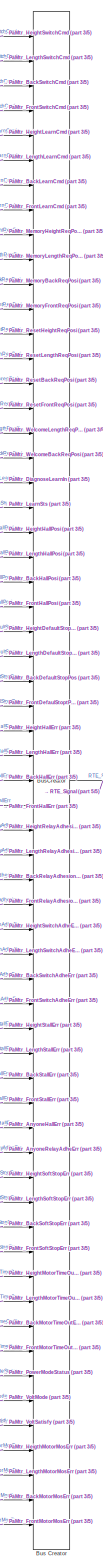
[diagram: UpDataInputInfo/RTE - part 1/5, center side, full height]
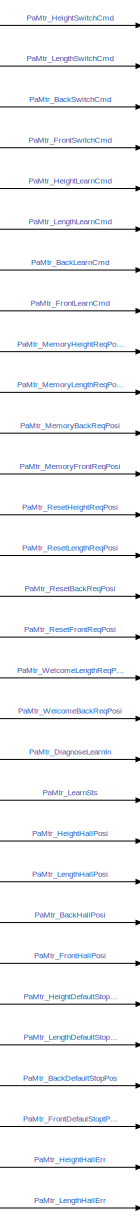
[diagram: UpDataInputInfo/RTE - part 2/5, top center region]
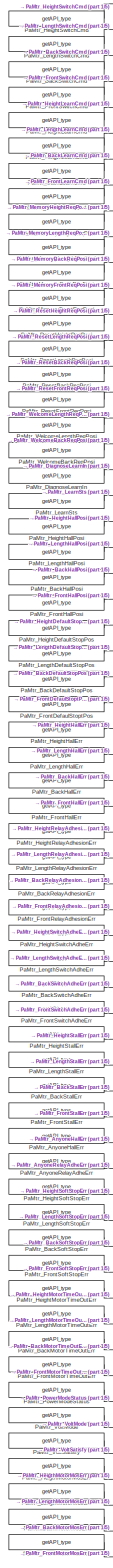
[diagram: UpDataInputInfo/RTE - part 3/5, left side, full height]
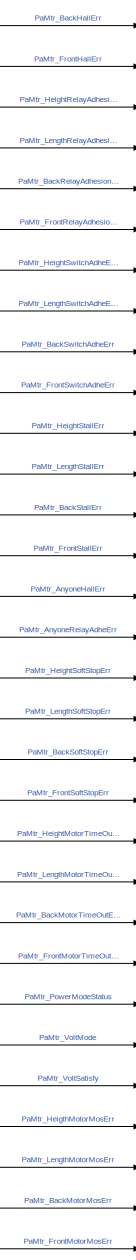
[diagram: UpDataInputInfo/RTE - part 4/5, bottom center region]
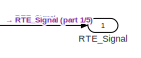
[diagram: UpDataInputInfo/RTE - part 5/5, middle right region]
BLOCK [SubSystem] UpDataInputInfo/RTE
  AttributesFormatString = %<Description>
  Description = 接口自动生成
  Ports = [0, 1]
  RTWFcnNameOpts = Use subsystem name
  RTWSystemCode = Nonreusable function
  RequestExecContextInheritance = off
  TreatAsAtomicUnit = on
BLOCK [BusCreator] UpDataInputInfo/RTE/Bus Creator
  DisplayOption = bar
  InheritFromInputs = on
  Inputs = 61
  Ports = [61, 1]
BLOCK [Reference] UpDataInputInfo/RTE/PaMtr_AnyoneHallErr  REF=DareLib/Dare/getAPI_type
  AttributesFormatString = %<g_funcname>
  Ports = [0, 1]
  SourceBlock = DareLib/Dare/getAPI_type
  SourceProductName = Dare Library
  SourceType = Dare Custom
BLOCK [Reference] UpDataInputInfo/RTE/PaMtr_AnyoneRelayAdheErr  REF=DareLib/Dare/getAPI_type
  AttributesFormatString = %<g_funcname>
  Ports = [0, 1]
  SourceBlock = DareLib/Dare/getAPI_type
  SourceProductName = Dare Library
  SourceType = Dare Custom
BLOCK [Reference] UpDataInputInfo/RTE/PaMtr_BackDefaultStopPos  REF=DareLib/Dare/getAPI_type
  AttributesFormatString = %<g_funcname>
  Ports = [0, 1]
  SourceBlock = DareLib/Dare/getAPI_type
  SourceProductName = Dare Library
  SourceType = Dare Custom
BLOCK [Reference] UpDataInputInfo/RTE/PaMtr_BackHallErr  REF=DareLib/Dare/getAPI_type
  AttributesFormatString = %<g_funcname>
  Ports = [0, 1]
  SourceBlock = DareLib/Dare/getAPI_type
  SourceProductName = Dare Library
  SourceType = Dare Custom
BLOCK [Reference] UpDataInputInfo/RTE/PaMtr_BackHallPosi  REF=DareLib/Dare/getAPI_type
  AttributesFormatString = %<g_funcname>
  Ports = [0, 1]
  SourceBlock = DareLib/Dare/getAPI_type
  SourceProductName = Dare Library
  SourceType = Dare Custom
BLOCK [Reference] UpDataInputInfo/RTE/PaMtr_BackLearnCmd  REF=DareLib/Dare/getAPI_type
  AttributesFormatString = %<g_funcname>
  Ports = [0, 1]
  SourceBlock = DareLib/Dare/getAPI_type
  SourceProductName = Dare Library
  SourceType = Dare Custom
BLOCK [Reference] UpDataInputInfo/RTE/PaMtr_BackMotorMosErr  REF=DareLib/Dare/getAPI_type
  AttributesFormatString = %<g_funcname>
  Ports = [0, 1]
  SourceBlock = DareLib/Dare/getAPI_type
  SourceProductName = Dare Library
  SourceType = Dare Custom
BLOCK [Reference] UpDataInputInfo/RTE/PaMtr_BackMotorTimeOutErr  REF=DareLib/Dare/getAPI_type
  AttributesFormatString = %<g_funcname>
  Ports = [0, 1]
  SourceBlock = DareLib/Dare/getAPI_type
  SourceProductName = Dare Library
  SourceType = Dare Custom
BLOCK [Reference] UpDataInputInfo/RTE/PaMtr_BackRelayAdhesionErr  REF=DareLib/Dare/getAPI_type
  AttributesFormatString = %<g_funcname>
  Ports = [0, 1]
  SourceBlock = DareLib/Dare/getAPI_type
  SourceProductName = Dare Library
  SourceType = Dare Custom
BLOCK [Reference] UpDataInputInfo/RTE/PaMtr_BackSoftStopErr  REF=DareLib/Dare/getAPI_type
  AttributesFormatString = %<g_funcname>
  Ports = [0, 1]
  SourceBlock = DareLib/Dare/getAPI_type
  SourceProductName = Dare Library
  SourceType = Dare Custom
BLOCK [Reference] UpDataInputInfo/RTE/PaMtr_BackStallErr  REF=DareLib/Dare/getAPI_type
  AttributesFormatString = %<g_funcname>
  Ports = [0, 1]
  SourceBlock = DareLib/Dare/getAPI_type
  SourceProductName = Dare Library
  SourceType = Dare Custom
BLOCK [Reference] UpDataInputInfo/RTE/PaMtr_BackSwitchAdheErr  REF=DareLib/Dare/getAPI_type
  AttributesFormatString = %<g_funcname>
  Ports = [0, 1]
  SourceBlock = DareLib/Dare/getAPI_type
  SourceProductName = Dare Library
  SourceType = Dare Custom
BLOCK [Reference] UpDataInputInfo/RTE/PaMtr_BackSwitchCmd  REF=DareLib/Dare/getAPI_type
  AttributesFormatString = %<g_funcname>
  Ports = [0, 1]
  SourceBlock = DareLib/Dare/getAPI_type
  SourceProductName = Dare Library
  SourceType = Dare Custom
BLOCK [Reference] UpDataInputInfo/RTE/PaMtr_DiagnoseLearnIn  REF=DareLib/Dare/getAPI_type
  AttributesFormatString = %<g_funcname>
  Ports = [0, 1]
  SourceBlock = DareLib/Dare/getAPI_type
  SourceProductName = Dare Library
  SourceType = Dare Custom
BLOCK [Reference] UpDataInputInfo/RTE/PaMtr_FrontDefaulStoptPos  REF=DareLib/Dare/getAPI_type
  AttributesFormatString = %<g_funcname>
  Ports = [0, 1]
  SourceBlock = DareLib/Dare/getAPI_type
  SourceProductName = Dare Library
  SourceType = Dare Custom
BLOCK [Reference] UpDataInputInfo/RTE/PaMtr_FrontHallErr  REF=DareLib/Dare/getAPI_type
  AttributesFormatString = %<g_funcname>
  Ports = [0, 1]
  SourceBlock = DareLib/Dare/getAPI_type
  SourceProductName = Dare Library
  SourceType = Dare Custom
BLOCK [Reference] UpDataInputInfo/RTE/PaMtr_FrontHallPosi  REF=DareLib/Dare/getAPI_type
  AttributesFormatString = %<g_funcname>
  Ports = [0, 1]
  SourceBlock = DareLib/Dare/getAPI_type
  SourceProductName = Dare Library
  SourceType = Dare Custom
BLOCK [Reference] UpDataInputInfo/RTE/PaMtr_FrontLearnCmd  REF=DareLib/Dare/getAPI_type
  AttributesFormatString = %<g_funcname>
  Ports = [0, 1]
  SourceBlock = DareLib/Dare/getAPI_type
  SourceProductName = Dare Library
  SourceType = Dare Custom
BLOCK [Reference] UpDataInputInfo/RTE/PaMtr_FrontMotorMosErr  REF=DareLib/Dare/getAPI_type
  AttributesFormatString = %<g_funcname>
  Ports = [0, 1]
  SourceBlock = DareLib/Dare/getAPI_type
  SourceProductName = Dare Library
  SourceType = Dare Custom
BLOCK [Reference] UpDataInputInfo/RTE/PaMtr_FrontMotorTimeOutErr  REF=DareLib/Dare/getAPI_type
  AttributesFormatString = %<g_funcname>
  Ports = [0, 1]
  SourceBlock = DareLib/Dare/getAPI_type
  SourceProductName = Dare Library
  SourceType = Dare Custom
BLOCK [Reference] UpDataInputInfo/RTE/PaMtr_FrontRelayAdhesionErr  REF=DareLib/Dare/getAPI_type
  AttributesFormatString = %<g_funcname>
  Ports = [0, 1]
  SourceBlock = DareLib/Dare/getAPI_type
  SourceProductName = Dare Library
  SourceType = Dare Custom
BLOCK [Reference] UpDataInputInfo/RTE/PaMtr_FrontSoftStopErr  REF=DareLib/Dare/getAPI_type
  AttributesFormatString = %<g_funcname>
  Ports = [0, 1]
  SourceBlock = DareLib/Dare/getAPI_type
  SourceProductName = Dare Library
  SourceType = Dare Custom
BLOCK [Reference] UpDataInputInfo/RTE/PaMtr_FrontStallErr  REF=DareLib/Dare/getAPI_type
  AttributesFormatString = %<g_funcname>
  Ports = [0, 1]
  SourceBlock = DareLib/Dare/getAPI_type
  SourceProductName = Dare Library
  SourceType = Dare Custom
BLOCK [Reference] UpDataInputInfo/RTE/PaMtr_FrontSwitchAdheErr  REF=DareLib/Dare/getAPI_type
  AttributesFormatString = %<g_funcname>
  Ports = [0, 1]
  SourceBlock = DareLib/Dare/getAPI_type
  SourceProductName = Dare Library
  SourceType = Dare Custom
BLOCK [Reference] UpDataInputInfo/RTE/PaMtr_FrontSwitchCmd  REF=DareLib/Dare/getAPI_type
  AttributesFormatString = %<g_funcname>
  Ports = [0, 1]
  SourceBlock = DareLib/Dare/getAPI_type
  SourceProductName = Dare Library
  SourceType = Dare Custom
BLOCK [Reference] UpDataInputInfo/RTE/PaMtr_HeightDefaultStopPos  REF=DareLib/Dare/getAPI_type
  AttributesFormatString = %<g_funcname>
  Ports = [0, 1]
  SourceBlock = DareLib/Dare/getAPI_type
  SourceProductName = Dare Library
  SourceType = Dare Custom
BLOCK [Reference] UpDataInputInfo/RTE/PaMtr_HeightHallErr  REF=DareLib/Dare/getAPI_type
  AttributesFormatString = %<g_funcname>
  Ports = [0, 1]
  SourceBlock = DareLib/Dare/getAPI_type
  SourceProductName = Dare Library
  SourceType = Dare Custom
BLOCK [Reference] UpDataInputInfo/RTE/PaMtr_HeightHallPosi  REF=DareLib/Dare/getAPI_type
  AttributesFormatString = %<g_funcname>
  Ports = [0, 1]
  SourceBlock = DareLib/Dare/getAPI_type
  SourceProductName = Dare Library
  SourceType = Dare Custom
BLOCK [Reference] UpDataInputInfo/RTE/PaMtr_HeightLearnCmd  REF=DareLib/Dare/getAPI_type
  AttributesFormatString = %<g_funcname>
  Ports = [0, 1]
  SourceBlock = DareLib/Dare/getAPI_type
  SourceProductName = Dare Library
  SourceType = Dare Custom
BLOCK [Reference] UpDataInputInfo/RTE/PaMtr_HeightMotorTimeOutErr  REF=DareLib/Dare/getAPI_type
  AttributesFormatString = %<g_funcname>
  Ports = [0, 1]
  SourceBlock = DareLib/Dare/getAPI_type
  SourceProductName = Dare Library
  SourceType = Dare Custom
BLOCK [Reference] UpDataInputInfo/RTE/PaMtr_HeightRelayAdhesionErr  REF=DareLib/Dare/getAPI_type
  AttributesFormatString = %<g_funcname>
  Ports = [0, 1]
  SourceBlock = DareLib/Dare/getAPI_type
  SourceProductName = Dare Library
  SourceType = Dare Custom
BLOCK [Reference] UpDataInputInfo/RTE/PaMtr_HeightSoftStopErr  REF=DareLib/Dare/getAPI_type
  AttributesFormatString = %<g_funcname>
  Ports = [0, 1]
  SourceBlock = DareLib/Dare/getAPI_type
  SourceProductName = Dare Library
  SourceType = Dare Custom
BLOCK [Reference] UpDataInputInfo/RTE/PaMtr_HeightStallErr  REF=DareLib/Dare/getAPI_type
  AttributesFormatString = %<g_funcname>
  Ports = [0, 1]
  SourceBlock = DareLib/Dare/getAPI_type
  SourceProductName = Dare Library
  SourceType = Dare Custom
BLOCK [Reference] UpDataInputInfo/RTE/PaMtr_HeightSwitchAdheErr  REF=DareLib/Dare/getAPI_type
  AttributesFormatString = %<g_funcname>
  Ports = [0, 1]
  SourceBlock = DareLib/Dare/getAPI_type
  SourceProductName = Dare Library
  SourceType = Dare Custom
BLOCK [Reference] UpDataInputInfo/RTE/PaMtr_HeightSwitchCmd  REF=DareLib/Dare/getAPI_type
  AttributesFormatString = %<g_funcname>
  Ports = [0, 1]
  SourceBlock = DareLib/Dare/getAPI_type
  SourceProductName = Dare Library
  SourceType = Dare Custom
BLOCK [Reference] UpDataInputInfo/RTE/PaMtr_HeigthMotorMosErr  REF=DareLib/Dare/getAPI_type
  AttributesFormatString = %<g_funcname>
  Ports = [0, 1]
  SourceBlock = DareLib/Dare/getAPI_type
  SourceProductName = Dare Library
  SourceType = Dare Custom
BLOCK [Reference] UpDataInputInfo/RTE/PaMtr_LearnSts  REF=DareLib/Dare/getAPI_type
  AttributesFormatString = %<g_funcname>
  Ports = [0, 1]
  SourceBlock = DareLib/Dare/getAPI_type
  SourceProductName = Dare Library
  SourceType = Dare Custom
BLOCK [Reference] UpDataInputInfo/RTE/PaMtr_LengthDefaultStopPos  REF=DareLib/Dare/getAPI_type
  AttributesFormatString = %<g_funcname>
  Ports = [0, 1]
  SourceBlock = DareLib/Dare/getAPI_type
  SourceProductName = Dare Library
  SourceType = Dare Custom
BLOCK [Reference] UpDataInputInfo/RTE/PaMtr_LengthHallErr  REF=DareLib/Dare/getAPI_type
  AttributesFormatString = %<g_funcname>
  Ports = [0, 1]
  SourceBlock = DareLib/Dare/getAPI_type
  SourceProductName = Dare Library
  SourceType = Dare Custom
BLOCK [Reference] UpDataInputInfo/RTE/PaMtr_LengthHallPosi  REF=DareLib/Dare/getAPI_type
  AttributesFormatString = %<g_funcname>
  Ports = [0, 1]
  SourceBlock = DareLib/Dare/getAPI_type
  SourceProductName = Dare Library
  SourceType = Dare Custom
BLOCK [Reference] UpDataInputInfo/RTE/PaMtr_LengthLearnCmd  REF=DareLib/Dare/getAPI_type
  AttributesFormatString = %<g_funcname>
  Ports = [0, 1]
  SourceBlock = DareLib/Dare/getAPI_type
  SourceProductName = Dare Library
  SourceType = Dare Custom
BLOCK [Reference] UpDataInputInfo/RTE/PaMtr_LengthMotorMosErr  REF=DareLib/Dare/getAPI_type
  AttributesFormatString = %<g_funcname>
  Ports = [0, 1]
  SourceBlock = DareLib/Dare/getAPI_type
  SourceProductName = Dare Library
  SourceType = Dare Custom
BLOCK [Reference] UpDataInputInfo/RTE/PaMtr_LengthMotorTimeOutErr  REF=DareLib/Dare/getAPI_type
  AttributesFormatString = %<g_funcname>
  Ports = [0, 1]
  SourceBlock = DareLib/Dare/getAPI_type
  SourceProductName = Dare Library
  SourceType = Dare Custom
BLOCK [Reference] UpDataInputInfo/RTE/PaMtr_LengthRelayAdhesionErr  REF=DareLib/Dare/getAPI_type
  AttributesFormatString = %<g_funcname>
  Ports = [0, 1]
  SourceBlock = DareLib/Dare/getAPI_type
  SourceProductName = Dare Library
  SourceType = Dare Custom
BLOCK [Reference] UpDataInputInfo/RTE/PaMtr_LengthSoftStopErr  REF=DareLib/Dare/getAPI_type
  AttributesFormatString = %<g_funcname>
  Ports = [0, 1]
  SourceBlock = DareLib/Dare/getAPI_type
  SourceProductName = Dare Library
  SourceType = Dare Custom
BLOCK [Reference] UpDataInputInfo/RTE/PaMtr_LengthStallErr  REF=DareLib/Dare/getAPI_type
  AttributesFormatString = %<g_funcname>
  Ports = [0, 1]
  SourceBlock = DareLib/Dare/getAPI_type
  SourceProductName = Dare Library
  SourceType = Dare Custom
BLOCK [Reference] UpDataInputInfo/RTE/PaMtr_LengthSwitchAdheErr  REF=DareLib/Dare/getAPI_type
  AttributesFormatString = %<g_funcname>
  Ports = [0, 1]
  SourceBlock = DareLib/Dare/getAPI_type
  SourceProductName = Dare Library
  SourceType = Dare Custom
BLOCK [Reference] UpDataInputInfo/RTE/PaMtr_LengthSwitchCmd  REF=DareLib/Dare/getAPI_type
  AttributesFormatString = %<g_funcname>
  Ports = [0, 1]
  SourceBlock = DareLib/Dare/getAPI_type
  SourceProductName = Dare Library
  SourceType = Dare Custom
BLOCK [Reference] UpDataInputInfo/RTE/PaMtr_MemoryBackReqPosi  REF=DareLib/Dare/getAPI_type
  AttributesFormatString = %<g_funcname>
  Ports = [0, 1]
  SourceBlock = DareLib/Dare/getAPI_type
  SourceProductName = Dare Library
  SourceType = Dare Custom
BLOCK [Reference] UpDataInputInfo/RTE/PaMtr_MemoryFrontReqPosi  REF=DareLib/Dare/getAPI_type
  AttributesFormatString = %<g_funcname>
  Ports = [0, 1]
  SourceBlock = DareLib/Dare/getAPI_type
  SourceProductName = Dare Library
  SourceType = Dare Custom
BLOCK [Reference] UpDataInputInfo/RTE/PaMtr_MemoryHeightReqPosi  REF=DareLib/Dare/getAPI_type
  AttributesFormatString = %<g_funcname>
  Ports = [0, 1]
  SourceBlock = DareLib/Dare/getAPI_type
  SourceProductName = Dare Library
  SourceType = Dare Custom
BLOCK [Reference] UpDataInputInfo/RTE/PaMtr_MemoryLengthReqPosi  REF=DareLib/Dare/getAPI_type
  AttributesFormatString = %<g_funcname>
  Ports = [0, 1]
  SourceBlock = DareLib/Dare/getAPI_type
  SourceProductName = Dare Library
  SourceType = Dare Custom
BLOCK [Reference] UpDataInputInfo/RTE/PaMtr_PowerModeStatus  REF=DareLib/Dare/getAPI_type
  AttributesFormatString = %<g_funcname>
  Ports = [0, 1]
  SourceBlock = DareLib/Dare/getAPI_type
  SourceProductName = Dare Library
  SourceType = Dare Custom
BLOCK [Reference] UpDataInputInfo/RTE/PaMtr_ResetBackReqPosi  REF=DareLib/Dare/getAPI_type
  AttributesFormatString = %<g_funcname>
  Ports = [0, 1]
  SourceBlock = DareLib/Dare/getAPI_type
  SourceProductName = Dare Library
  SourceType = Dare Custom
BLOCK [Reference] UpDataInputInfo/RTE/PaMtr_ResetFrontReqPosi  REF=DareLib/Dare/getAPI_type
  AttributesFormatString = %<g_funcname>
  Ports = [0, 1]
  SourceBlock = DareLib/Dare/getAPI_type
  SourceProductName = Dare Library
  SourceType = Dare Custom
BLOCK [Reference] UpDataInputInfo/RTE/PaMtr_ResetHeightReqPosi  REF=DareLib/Dare/getAPI_type
  AttributesFormatString = %<g_funcname>
  Ports = [0, 1]
  SourceBlock = DareLib/Dare/getAPI_type
  SourceProductName = Dare Library
  SourceType = Dare Custom
BLOCK [Reference] UpDataInputInfo/RTE/PaMtr_ResetLengthReqPosi  REF=DareLib/Dare/getAPI_type
  AttributesFormatString = %<g_funcname>
  Ports = [0, 1]
  SourceBlock = DareLib/Dare/getAPI_type
  SourceProductName = Dare Library
  SourceType = Dare Custom
BLOCK [Reference] UpDataInputInfo/RTE/PaMtr_VoltMode  REF=DareLib/Dare/getAPI_type
  AttributesFormatString = %<g_funcname>
  Ports = [0, 1]
  SourceBlock = DareLib/Dare/getAPI_type
  SourceProductName = Dare Library
  SourceType = Dare Custom
BLOCK [Reference] UpDataInputInfo/RTE/PaMtr_VoltSatisfy  REF=DareLib/Dare/getAPI_type
  AttributesFormatString = %<g_funcname>
  Ports = [0, 1]
  SourceBlock = DareLib/Dare/getAPI_type
  SourceProductName = Dare Library
  SourceType = Dare Custom
BLOCK [Reference] UpDataInputInfo/RTE/PaMtr_WelcomeBackReqPosi  REF=DareLib/Dare/getAPI_type
  AttributesFormatString = %<g_funcname>
  Ports = [0, 1]
  SourceBlock = DareLib/Dare/getAPI_type
  SourceProductName = Dare Library
  SourceType = Dare Custom
BLOCK [Reference] UpDataInputInfo/RTE/PaMtr_WelcomeLengthReqPosi  REF=DareLib/Dare/getAPI_type
  AttributesFormatString = %<g_funcname>
  Ports = [0, 1]
  SourceBlock = DareLib/Dare/getAPI_type
  SourceProductName = Dare Library
  SourceType = Dare Custom
BLOCK [Outport] UpDataInputInfo/RTE/RTE_Signal
  IconDisplay = Port number
BLOCK [SubSystem] UpDataOutputInfo
  Ports = [1]
  Priority = 3
  RTWFcnNameOpts = Use subsystem name
  RTWSystemCode = Nonreusable function
  RequestExecContextInheritance = off
  TreatAsAtomicUnit = on
BLOCK [BusSelector] UpDataOutputInfo/Bus Selector1
  OutputAsBus = off
  OutputSignals = MotorCtrl.Can_HeightMotorCtrl,MotorCtrl.Can_LengthMotorCtrl,MotorCtrl.Can_BackMotorCtrl,MotorCtrl.Can_FrontMotorCtrl
  Ports = [1, 4]
BLOCK [BusSelector] UpDataOutputInfo/Bus Selector2
  OutputAsBus = off
  OutputSignals = MotorRunType.H_MotorRunType,MotorRunType.L_MotorRunType,MotorRunType.F_MotorRunType,MotorRunType.B_MotorRunType,MotorReq.MotorActionType
  Ports = [1, 5]
BLOCK [BusSelector] UpDataOutputInfo/Bus Selector4
  OutputAsBus = off
  OutputSignals = AutoRunFlag.HeightAutoRunFlag,AutoRunFlag.LenghtAutoRunFlag,AutoRunFlag.BackAutoRunFlag,AutoRunFlag.FrontAutoRunFlag
  Ports = [1, 4]
BLOCK [DataTypeConversion] UpDataOutputInfo/Data Type Conversion2
  OutDataTypeStr = uint8
  RndMeth = Floor
  SaturateOnIntegerOverflow = off
BLOCK [DataTypeConversion] UpDataOutputInfo/Data Type Conversion3
  OutDataTypeStr = uint8
  RndMeth = Floor
  SaturateOnIntegerOverflow = off
BLOCK [DataTypeConversion] UpDataOutputInfo/Data Type Conversion4
  OutDataTypeStr = uint8
  RndMeth = Floor
  SaturateOnIntegerOverflow = off
BLOCK [DataTypeConversion] UpDataOutputInfo/Data Type Conversion5
  OutDataTypeStr = uint8
  RndMeth = Floor
  SaturateOnIntegerOverflow = off
BLOCK [Inport] UpDataOutputInfo/DrAdjustOutput
  IconDisplay = Port number
BLOCK [Reference] UpDataOutputInfo/DriverFrontMoveType10  REF=DareLib/Dare/setAPI_type
  AttributesFormatString = %<g_funcname>
  Ports = [1]
  SourceBlock = DareLib/Dare/setAPI_type
  SourceProductName = Dare Library
  SourceType = Dare Custom
BLOCK [Reference] UpDataOutputInfo/DriverFrontMoveType6  REF=DareLib/Dare/setAPI_type
  AttributesFormatString = %<g_funcname>
  Ports = [1]
  SourceBlock = DareLib/Dare/setAPI_type
  SourceProductName = Dare Library
  SourceType = Dare Custom
BLOCK [Reference] UpDataOutputInfo/DriverFrontMoveType7  REF=DareLib/Dare/setAPI_type
  AttributesFormatString = %<g_funcname>
  Ports = [1]
  SourceBlock = DareLib/Dare/setAPI_type
  SourceProductName = Dare Library
  SourceType = Dare Custom
BLOCK [Reference] UpDataOutputInfo/DriverFrontMoveType8  REF=DareLib/Dare/setAPI_type
  AttributesFormatString = %<g_funcname>
  Ports = [1]
  SourceBlock = DareLib/Dare/setAPI_type
  SourceProductName = Dare Library
  SourceType = Dare Custom
BLOCK [Reference] UpDataOutputInfo/DriverFrontMoveType9  REF=DareLib/Dare/setAPI_type
  AttributesFormatString = %<g_funcname>
  Ports = [1]
  SourceBlock = DareLib/Dare/setAPI_type
  SourceProductName = Dare Library
  SourceType = Dare Custom
BLOCK [Reference] UpDataOutputInfo/DriverHeightCommand  REF=DareLib/Dare/setAPI_type
  AttributesFormatString = %<g_funcname>
  Ports = [1]
  SourceBlock = DareLib/Dare/setAPI_type
  SourceProductName = Dare Library
  SourceType = Dare Custom
BLOCK [Reference] UpDataOutputInfo/DriverHeightCommand1  REF=DareLib/Dare/setAPI_type
  AttributesFormatString = %<g_funcname>
  Ports = [1]
  SourceBlock = DareLib/Dare/setAPI_type
  SourceProductName = Dare Library
  SourceType = Dare Custom
BLOCK [Reference] UpDataOutputInfo/DriverHeightCommand2  REF=DareLib/Dare/setAPI_type
  AttributesFormatString = %<g_funcname>
  Ports = [1]
  SourceBlock = DareLib/Dare/setAPI_type
  SourceProductName = Dare Library
  SourceType = Dare Custom
BLOCK [Reference] UpDataOutputInfo/DriverHeightCommand3  REF=DareLib/Dare/setAPI_type
  AttributesFormatString = %<g_funcname>
  Ports = [1]
  SourceBlock = DareLib/Dare/setAPI_type
  SourceProductName = Dare Library
  SourceType = Dare Custom
BLOCK [Reference] UpDataOutputInfo/DriverHeightMoveType  REF=DareLib/Dare/setAPI_type
  AttributesFormatString = %<g_funcname>
  Ports = [1]
  SourceBlock = DareLib/Dare/setAPI_type
  SourceProductName = Dare Library
  SourceType = Dare Custom
BLOCK [Reference] UpDataOutputInfo/DriverHeightMoveType1  REF=DareLib/Dare/setAPI_type
  AttributesFormatString = %<g_funcname>
  Ports = [1]
  SourceBlock = DareLib/Dare/setAPI_type
  SourceProductName = Dare Library
  SourceType = Dare Custom
BLOCK [Reference] UpDataOutputInfo/DriverHeightMoveType2  REF=DareLib/Dare/setAPI_type
  AttributesFormatString = %<g_funcname>
  Ports = [1]
  SourceBlock = DareLib/Dare/setAPI_type
  SourceProductName = Dare Library
  SourceType = Dare Custom
BLOCK [Reference] UpDataOutputInfo/DriverHeightMoveType3  REF=DareLib/Dare/setAPI_type
  AttributesFormatString = %<g_funcname>
  Ports = [1]
  SourceBlock = DareLib/Dare/setAPI_type
  SourceProductName = Dare Library
  SourceType = Dare Custom
BLOCK [SubSystem] UpDataOutputInfo/HardwareOutput
  Commented = on
  Ports = [4]
  RequestExecContextInheritance = off
BLOCK [Inport] UpDataOutputInfo/HardwareOutput/Back
  IconDisplay = Port number
  Port = 3
BLOCK [BusSelector] UpDataOutputInfo/HardwareOutput/Bus Selector
  OutputAsBus = off
  OutputSignals = Up_Forward,Down_Backward
  Ports = [1, 2]
BLOCK [BusSelector] UpDataOutputInfo/HardwareOutput/Bus Selector1
  OutputAsBus = off
  OutputSignals = Up_Forward,Down_Backward
  Ports = [1, 2]
BLOCK [BusSelector] UpDataOutputInfo/HardwareOutput/Bus Selector2
  OutputAsBus = off
  OutputSignals = Up_Forward,Down_Backward
  Ports = [1, 2]
BLOCK [BusSelector] UpDataOutputInfo/HardwareOutput/Bus Selector3
  OutputAsBus = off
  OutputSignals = Up_Forward,Down_Backward
  Ports = [1, 2]
BLOCK [Reference] UpDataOutputInfo/HardwareOutput/DriveBackForward  REF=DareLib/Dare/setAPI_type
  AttributesFormatString = %<g_funcname>
  Ports = [1]
  SourceBlock = DareLib/Dare/setAPI_type
  SourceProductName = Dare Library
  SourceType = Dare Custom
BLOCK [Reference] UpDataOutputInfo/HardwareOutput/DriverBackBackward  REF=DareLib/Dare/setAPI_type
  AttributesFormatString = %<g_funcname>
  Ports = [1]
  SourceBlock = DareLib/Dare/setAPI_type
  SourceProductName = Dare Library
  SourceType = Dare Custom
BLOCK [Reference] UpDataOutputInfo/HardwareOutput/DriverFrontDown  REF=DareLib/Dare/setAPI_type
  AttributesFormatString = %<g_funcname>
  Ports = [1]
  SourceBlock = DareLib/Dare/setAPI_type
  SourceProductName = Dare Library
  SourceType = Dare Custom
BLOCK [Reference] UpDataOutputInfo/HardwareOutput/DriverFrontUp  REF=DareLib/Dare/setAPI_type
  AttributesFormatString = %<g_funcname>
  Ports = [1]
  SourceBlock = DareLib/Dare/setAPI_type
  SourceProductName = Dare Library
  SourceType = Dare Custom
BLOCK [Reference] UpDataOutputInfo/HardwareOutput/DriverHeightDown  REF=DareLib/Dare/setAPI_type
  AttributesFormatString = %<g_funcname>
  Ports = [1]
  SourceBlock = DareLib/Dare/setAPI_type
  SourceProductName = Dare Library
  SourceType = Dare Custom
BLOCK [Reference] UpDataOutputInfo/HardwareOutput/DriverHeightUp  REF=DareLib/Dare/setAPI_type
  AttributesFormatString = %<g_funcname>
  Ports = [1]
  SourceBlock = DareLib/Dare/setAPI_type
  SourceProductName = Dare Library
  SourceType = Dare Custom
BLOCK [Reference] UpDataOutputInfo/HardwareOutput/DriverLengthBackward  REF=DareLib/Dare/setAPI_type
  AttributesFormatString = %<g_funcname>
  Ports = [1]
  SourceBlock = DareLib/Dare/setAPI_type
  SourceProductName = Dare Library
  SourceType = Dare Custom
BLOCK [Reference] UpDataOutputInfo/HardwareOutput/DriverLengthForward  REF=DareLib/Dare/setAPI_type
  AttributesFormatString = %<g_funcname>
  Ports = [1]
  SourceBlock = DareLib/Dare/setAPI_type
  SourceProductName = Dare Library
  SourceType = Dare Custom
BLOCK [Inport] UpDataOutputInfo/HardwareOutput/Front
  IconDisplay = Port number
  Port = 4
BLOCK [Inport] UpDataOutputInfo/HardwareOutput/Height
  IconDisplay = Port number
BLOCK [Inport] UpDataOutputInfo/HardwareOutput/Length
  IconDisplay = Port number
  Port = 2
LINE LogicCtrl/InputSignalBus:1 -> LogicCtrl/LocalAdjustCtrl:1
LINE LogicCtrl/LocalAdjustCtrl/AdjustRequestPriority/Bus Selector3:1 -> LogicCtrl/LocalAdjustCtrl/AdjustRequestPriority/PaMotorAdjustmentPriorityProcessing:1
LINE LogicCtrl/LocalAdjustCtrl/AdjustRequestPriority/Bus Selector3:10 -> LogicCtrl/LocalAdjustCtrl/AdjustRequestPriority/PaMotorAdjustmentPriorityProcessing:10
LINE LogicCtrl/LocalAdjustCtrl/AdjustRequestPriority/Bus Selector3:11 -> LogicCtrl/LocalAdjustCtrl/AdjustRequestPriority/PaMotorAdjustmentPriorityProcessing:11
LINE LogicCtrl/LocalAdjustCtrl/AdjustRequestPriority/Bus Selector3:12 -> LogicCtrl/LocalAdjustCtrl/AdjustRequestPriority/PaMotorAdjustmentPriorityProcessing:12
LINE LogicCtrl/LocalAdjustCtrl/AdjustRequestPriority/Bus Selector3:13 -> LogicCtrl/LocalAdjustCtrl/AdjustRequestPriority/PaMotorAdjustmentPriorityProcessing:13
LINE LogicCtrl/LocalAdjustCtrl/AdjustRequestPriority/Bus Selector3:14 -> LogicCtrl/LocalAdjustCtrl/AdjustRequestPriority/PaMotorAdjustmentPriorityProcessing:14
LINE LogicCtrl/LocalAdjustCtrl/AdjustRequestPriority/Bus Selector3:15 -> LogicCtrl/LocalAdjustCtrl/AdjustRequestPriority/PaMotorAdjustmentPriorityProcessing:15
LINE LogicCtrl/LocalAdjustCtrl/AdjustRequestPriority/Bus Selector3:16 -> LogicCtrl/LocalAdjustCtrl/AdjustRequestPriority/PaMotorAdjustmentPriorityProcessing:16
LINE LogicCtrl/LocalAdjustCtrl/AdjustRequestPriority/Bus Selector3:17 -> LogicCtrl/LocalAdjustCtrl/AdjustRequestPriority/PaMotorAdjustmentPriorityProcessing:17
LINE LogicCtrl/LocalAdjustCtrl/AdjustRequestPriority/Bus Selector3:18 -> LogicCtrl/LocalAdjustCtrl/AdjustRequestPriority/PaMotorAdjustmentPriorityProcessing:18
LINE LogicCtrl/LocalAdjustCtrl/AdjustRequestPriority/Bus Selector3:2 -> LogicCtrl/LocalAdjustCtrl/AdjustRequestPriority/PaMotorAdjustmentPriorityProcessing:2
LINE LogicCtrl/LocalAdjustCtrl/AdjustRequestPriority/Bus Selector3:3 -> LogicCtrl/LocalAdjustCtrl/AdjustRequestPriority/PaMotorAdjustmentPriorityProcessing:3
LINE LogicCtrl/LocalAdjustCtrl/AdjustRequestPriority/Bus Selector3:4 -> LogicCtrl/LocalAdjustCtrl/AdjustRequestPriority/PaMotorAdjustmentPriorityProcessing:4
LINE LogicCtrl/LocalAdjustCtrl/AdjustRequestPriority/Bus Selector3:5 -> LogicCtrl/LocalAdjustCtrl/AdjustRequestPriority/PaMotorAdjustmentPriorityProcessing:5
LINE LogicCtrl/LocalAdjustCtrl/AdjustRequestPriority/Bus Selector3:6 -> LogicCtrl/LocalAdjustCtrl/AdjustRequestPriority/PaMotorAdjustmentPriorityProcessing:6
LINE LogicCtrl/LocalAdjustCtrl/AdjustRequestPriority/Bus Selector3:7 -> LogicCtrl/LocalAdjustCtrl/AdjustRequestPriority/PaMotorAdjustmentPriorityProcessing:7
LINE LogicCtrl/LocalAdjustCtrl/AdjustRequestPriority/Bus Selector3:8 -> LogicCtrl/LocalAdjustCtrl/AdjustRequestPriority/PaMotorAdjustmentPriorityProcessing:8
LINE LogicCtrl/LocalAdjustCtrl/AdjustRequestPriority/Bus Selector3:9 -> LogicCtrl/LocalAdjustCtrl/AdjustRequestPriority/PaMotorAdjustmentPriorityProcessing:9
LINE LogicCtrl/LocalAdjustCtrl/AdjustRequestPriority/InputSignalBus:1 -> LogicCtrl/LocalAdjustCtrl/AdjustRequestPriority/Bus Selector3:1
LINE LogicCtrl/LocalAdjustCtrl/AdjustRequestPriority/PaMotorAdjustmentPriorityProcessing:1 -> LogicCtrl/LocalAdjustCtrl/AdjustRequestPriority/MotorActType:1
LINE LogicCtrl/LocalAdjustCtrl/AdjustRequestPriority/PaMotorAdjustmentPriorityProcessing:10 -> LogicCtrl/LocalAdjustCtrl/AdjustRequestPriority/setAPI_type:1
LINE LogicCtrl/LocalAdjustCtrl/AdjustRequestPriority/PaMotorAdjustmentPriorityProcessing:2 -> LogicCtrl/LocalAdjustCtrl/AdjustRequestPriority/SeatHeightPosiReq:1
LINE LogicCtrl/LocalAdjustCtrl/AdjustRequestPriority/PaMotorAdjustmentPriorityProcessing:3 -> LogicCtrl/LocalAdjustCtrl/AdjustRequestPriority/SeatLengthPosiReq:1
LINE LogicCtrl/LocalAdjustCtrl/AdjustRequestPriority/PaMotorAdjustmentPriorityProcessing:4 -> LogicCtrl/LocalAdjustCtrl/AdjustRequestPriority/SeatBackPosiReq:1
LINE LogicCtrl/LocalAdjustCtrl/AdjustRequestPriority/PaMotorAdjustmentPriorityProcessing:5 -> LogicCtrl/LocalAdjustCtrl/AdjustRequestPriority/SeatFrontPosiReq:1
LINE LogicCtrl/LocalAdjustCtrl/AdjustRequestPriority/PaMotorAdjustmentPriorityProcessing:6 -> LogicCtrl/LocalAdjustCtrl/AdjustRequestPriority/HeightManualAdjSw:1
LINE LogicCtrl/LocalAdjustCtrl/AdjustRequestPriority/PaMotorAdjustmentPriorityProcessing:7 -> LogicCtrl/LocalAdjustCtrl/AdjustRequestPriority/LengthManualAdjSw:1
LINE LogicCtrl/LocalAdjustCtrl/AdjustRequestPriority/PaMotorAdjustmentPriorityProcessing:8 -> LogicCtrl/LocalAdjustCtrl/AdjustRequestPriority/BackManualAdjSw:1
LINE LogicCtrl/LocalAdjustCtrl/AdjustRequestPriority/PaMotorAdjustmentPriorityProcessing:9 -> LogicCtrl/LocalAdjustCtrl/AdjustRequestPriority/FrontManualAdjSw:1
LINE LogicCtrl/LocalAdjustCtrl/AdjustRequestPriority:1 -> LogicCtrl/LocalAdjustCtrl/Bus Creator2:1
LINE LogicCtrl/LocalAdjustCtrl/AdjustRequestPriority:2 -> LogicCtrl/LocalAdjustCtrl/Bus Creator2:2
LINE LogicCtrl/LocalAdjustCtrl/AdjustRequestPriority:3 -> LogicCtrl/LocalAdjustCtrl/Bus Creator2:3
LINE LogicCtrl/LocalAdjustCtrl/AdjustRequestPriority:4 -> LogicCtrl/LocalAdjustCtrl/Bus Creator2:4
LINE LogicCtrl/LocalAdjustCtrl/AdjustRequestPriority:5 -> LogicCtrl/LocalAdjustCtrl/Bus Creator2:5
LINE LogicCtrl/LocalAdjustCtrl/AdjustRequestPriority:6 -> LogicCtrl/LocalAdjustCtrl/Bus Creator2:6
LINE LogicCtrl/LocalAdjustCtrl/AdjustRequestPriority:7 -> LogicCtrl/LocalAdjustCtrl/Bus Creator2:7
LINE LogicCtrl/LocalAdjustCtrl/AdjustRequestPriority:8 -> LogicCtrl/LocalAdjustCtrl/Bus Creator2:8
LINE LogicCtrl/LocalAdjustCtrl/AdjustRequestPriority:9 -> LogicCtrl/LocalAdjustCtrl/Bus Creator2:9
NET LogicCtrl/LocalAdjustCtrl/Bus Creator2:1 -> LogicCtrl/LocalAdjustCtrl/Bus Creator3:2, LogicCtrl/LocalAdjustCtrl/Goto23:1
LINE LogicCtrl/LocalAdjustCtrl/Bus Creator3:1 -> LogicCtrl/LocalAdjustCtrl/MotorAdjust:1
LINE LogicCtrl/LocalAdjustCtrl/Bus Creator4:1 -> LogicCtrl/LocalAdjustCtrl/CrankAndVoltageDeal:1
LINE LogicCtrl/LocalAdjustCtrl/Bus Creator5:1 -> LogicCtrl/LocalAdjustCtrl/FourMotorPriority:1
LINE LogicCtrl/LocalAdjustCtrl/Can_LengthMotorCtrl1:1 -> LogicCtrl/LocalAdjustCtrl/LocalAdjustCtrlOut:1
LINE LogicCtrl/LocalAdjustCtrl/Can_LengthMotorCtrl:1 -> LogicCtrl/LocalAdjustCtrl/Can_LengthMotorCtrl1:2
LINE LogicCtrl/LocalAdjustCtrl/Constant1:1 -> LogicCtrl/LocalAdjustCtrl/Bus Creator4:3
LINE LogicCtrl/LocalAdjustCtrl/CrankAndVoltageDeal/Bus Creator:1 -> LogicCtrl/LocalAdjustCtrl/CrankAndVoltageDeal/MotorCmd:1
LINE LogicCtrl/LocalAdjustCtrl/CrankAndVoltageDeal/Bus Selector9:1 -> LogicCtrl/LocalAdjustCtrl/CrankAndVoltageDeal/CrankUnloading:1
LINE LogicCtrl/LocalAdjustCtrl/CrankAndVoltageDeal/Bus Selector9:2 -> LogicCtrl/LocalAdjustCtrl/CrankAndVoltageDeal/CrankUnloading:2
LINE LogicCtrl/LocalAdjustCtrl/CrankAndVoltageDeal/Bus Selector9:3 -> LogicCtrl/LocalAdjustCtrl/CrankAndVoltageDeal/CrankUnloading:3
LINE LogicCtrl/LocalAdjustCtrl/CrankAndVoltageDeal/Bus Selector9:4 -> LogicCtrl/LocalAdjustCtrl/CrankAndVoltageDeal/CrankUnloading:4
LINE LogicCtrl/LocalAdjustCtrl/CrankAndVoltageDeal/Bus Selector9:5 -> LogicCtrl/LocalAdjustCtrl/CrankAndVoltageDeal/CrankUnloading:5
LINE LogicCtrl/LocalAdjustCtrl/CrankAndVoltageDeal/Bus Selector9:6 -> LogicCtrl/LocalAdjustCtrl/CrankAndVoltageDeal/CrankUnloading:6
LINE LogicCtrl/LocalAdjustCtrl/CrankAndVoltageDeal/Bus Selector9:7 -> LogicCtrl/LocalAdjustCtrl/CrankAndVoltageDeal/CrankUnloading:7
LINE LogicCtrl/LocalAdjustCtrl/CrankAndVoltageDeal/Bus Selector9:8 -> LogicCtrl/LocalAdjustCtrl/CrankAndVoltageDeal/CrankUnloading:8
LINE LogicCtrl/LocalAdjustCtrl/CrankAndVoltageDeal/CrankAndVoltageDealInput:1 -> LogicCtrl/LocalAdjustCtrl/CrankAndVoltageDeal/Bus Selector9:1
LINE LogicCtrl/LocalAdjustCtrl/CrankAndVoltageDeal/CrankUnloading:1 -> LogicCtrl/LocalAdjustCtrl/CrankAndVoltageDeal/Bus Creator:1
LINE LogicCtrl/LocalAdjustCtrl/CrankAndVoltageDeal/CrankUnloading:2 -> LogicCtrl/LocalAdjustCtrl/CrankAndVoltageDeal/Bus Creator:2
LINE LogicCtrl/LocalAdjustCtrl/CrankAndVoltageDeal/CrankUnloading:3 -> LogicCtrl/LocalAdjustCtrl/CrankAndVoltageDeal/Bus Creator:3
LINE LogicCtrl/LocalAdjustCtrl/CrankAndVoltageDeal/CrankUnloading:4 -> LogicCtrl/LocalAdjustCtrl/CrankAndVoltageDeal/Bus Creator:4
LINE LogicCtrl/LocalAdjustCtrl/CrankAndVoltageDeal:1 -> LogicCtrl/LocalAdjustCtrl/Bus Creator5:2
LINE LogicCtrl/LocalAdjustCtrl/FourMotorPriority/Bus Creator10:1 -> LogicCtrl/LocalAdjustCtrl/FourMotorPriority/Switch7:3
LINE LogicCtrl/LocalAdjustCtrl/FourMotorPriority/Bus Creator11:1 -> LogicCtrl/LocalAdjustCtrl/FourMotorPriority/Switch6:3
LINE LogicCtrl/LocalAdjustCtrl/FourMotorPriority/Bus Creator12:1 -> LogicCtrl/LocalAdjustCtrl/FourMotorPriority/Switch7:1
LINE LogicCtrl/LocalAdjustCtrl/FourMotorPriority/Bus Creator1:1 -> LogicCtrl/LocalAdjustCtrl/FourMotorPriority/Switch1:3
LINE LogicCtrl/LocalAdjustCtrl/FourMotorPriority/Bus Creator2:1 -> LogicCtrl/LocalAdjustCtrl/FourMotorPriority/Switch:3
LINE LogicCtrl/LocalAdjustCtrl/FourMotorPriority/Bus Creator3:1 -> LogicCtrl/LocalAdjustCtrl/FourMotorPriority/Switch1:1
LINE LogicCtrl/LocalAdjustCtrl/FourMotorPriority/Bus Creator4:1 -> LogicCtrl/LocalAdjustCtrl/FourMotorPriority/Switch3:3
LINE LogicCtrl/LocalAdjustCtrl/FourMotorPriority/Bus Creator5:1 -> LogicCtrl/LocalAdjustCtrl/FourMotorPriority/Switch2:3
LINE LogicCtrl/LocalAdjustCtrl/FourMotorPriority/Bus Creator6:1 -> LogicCtrl/LocalAdjustCtrl/FourMotorPriority/Switch3:1
LINE LogicCtrl/LocalAdjustCtrl/FourMotorPriority/Bus Creator7:1 -> LogicCtrl/LocalAdjustCtrl/FourMotorPriority/Switch5:3
LINE LogicCtrl/LocalAdjustCtrl/FourMotorPriority/Bus Creator8:1 -> LogicCtrl/LocalAdjustCtrl/FourMotorPriority/Switch4:3
LINE LogicCtrl/LocalAdjustCtrl/FourMotorPriority/Bus Creator9:1 -> LogicCtrl/LocalAdjustCtrl/FourMotorPriority/Switch5:1
LINE LogicCtrl/LocalAdjustCtrl/FourMotorPriority/Bus Creator:1 -> LogicCtrl/LocalAdjustCtrl/FourMotorPriority/Bus Selector:1
LINE LogicCtrl/LocalAdjustCtrl/FourMotorPriority/Bus Selector:1 -> LogicCtrl/LocalAdjustCtrl/FourMotorPriority/MotorMotionPriorityDeal:1
LINE LogicCtrl/LocalAdjustCtrl/FourMotorPriority/Bus Selector:2 -> LogicCtrl/LocalAdjustCtrl/FourMotorPriority/MotorMotionPriorityDeal:2
LINE LogicCtrl/LocalAdjustCtrl/FourMotorPriority/Bus Selector:3 -> LogicCtrl/LocalAdjustCtrl/FourMotorPriority/MotorMotionPriorityDeal:3
LINE LogicCtrl/LocalAdjustCtrl/FourMotorPriority/Bus Selector:4 -> LogicCtrl/LocalAdjustCtrl/FourMotorPriority/MotorMotionPriorityDeal:4
LINE LogicCtrl/LocalAdjustCtrl/FourMotorPriority/Bus Selector:5 -> LogicCtrl/LocalAdjustCtrl/FourMotorPriority/MotorMotionPriorityDeal:5
LINE LogicCtrl/LocalAdjustCtrl/FourMotorPriority/Bus Selector:6 -> LogicCtrl/LocalAdjustCtrl/FourMotorPriority/MotorMotionPriorityDeal:6
LINE LogicCtrl/LocalAdjustCtrl/FourMotorPriority/Bus Selector:7 -> LogicCtrl/LocalAdjustCtrl/FourMotorPriority/MotorMotionPriorityDeal:7
LINE LogicCtrl/LocalAdjustCtrl/FourMotorPriority/Bus Selector:8 -> LogicCtrl/LocalAdjustCtrl/FourMotorPriority/MotorMotionPriorityDeal:8
LINE LogicCtrl/LocalAdjustCtrl/FourMotorPriority/Bus Selector:9 -> LogicCtrl/LocalAdjustCtrl/FourMotorPriority/MotorMotionPriorityDeal:9
LINE LogicCtrl/LocalAdjustCtrl/FourMotorPriority/Constant10:1 -> LogicCtrl/LocalAdjustCtrl/FourMotorPriority/Bus Creator5:2
LINE LogicCtrl/LocalAdjustCtrl/FourMotorPriority/Constant11:1 -> LogicCtrl/LocalAdjustCtrl/FourMotorPriority/Bus Creator5:1
LINE LogicCtrl/LocalAdjustCtrl/FourMotorPriority/Constant12:1 -> LogicCtrl/LocalAdjustCtrl/FourMotorPriority/Bus Creator6:1
LINE LogicCtrl/LocalAdjustCtrl/FourMotorPriority/Constant13:1 -> LogicCtrl/LocalAdjustCtrl/FourMotorPriority/Bus Creator9:2
LINE LogicCtrl/LocalAdjustCtrl/FourMotorPriority/Constant14:1 -> LogicCtrl/LocalAdjustCtrl/FourMotorPriority/Bus Creator7:2
LINE LogicCtrl/LocalAdjustCtrl/FourMotorPriority/Constant15:1 -> LogicCtrl/LocalAdjustCtrl/FourMotorPriority/Bus Creator7:1
LINE LogicCtrl/LocalAdjustCtrl/FourMotorPriority/Constant16:1 -> LogicCtrl/LocalAdjustCtrl/FourMotorPriority/Bus Creator8:2
LINE LogicCtrl/LocalAdjustCtrl/FourMotorPriority/Constant17:1 -> LogicCtrl/LocalAdjustCtrl/FourMotorPriority/Bus Creator8:1
LINE LogicCtrl/LocalAdjustCtrl/FourMotorPriority/Constant18:1 -> LogicCtrl/LocalAdjustCtrl/FourMotorPriority/Bus Creator9:1
LINE LogicCtrl/LocalAdjustCtrl/FourMotorPriority/Constant19:1 -> LogicCtrl/LocalAdjustCtrl/FourMotorPriority/Bus Creator12:2
LINE LogicCtrl/LocalAdjustCtrl/FourMotorPriority/Constant1:1 -> LogicCtrl/LocalAdjustCtrl/FourMotorPriority/Bus Creator3:2
LINE LogicCtrl/LocalAdjustCtrl/FourMotorPriority/Constant20:1 -> LogicCtrl/LocalAdjustCtrl/FourMotorPriority/Bus Creator10:2
LINE LogicCtrl/LocalAdjustCtrl/FourMotorPriority/Constant21:1 -> LogicCtrl/LocalAdjustCtrl/FourMotorPriority/Bus Creator10:1
LINE LogicCtrl/LocalAdjustCtrl/FourMotorPriority/Constant22:1 -> LogicCtrl/LocalAdjustCtrl/FourMotorPriority/Bus Creator11:2
LINE LogicCtrl/LocalAdjustCtrl/FourMotorPriority/Constant23:1 -> LogicCtrl/LocalAdjustCtrl/FourMotorPriority/Bus Creator11:1
LINE LogicCtrl/LocalAdjustCtrl/FourMotorPriority/Constant24:1 -> LogicCtrl/LocalAdjustCtrl/FourMotorPriority/Bus Creator12:1
LINE LogicCtrl/LocalAdjustCtrl/FourMotorPriority/Constant2:1 -> LogicCtrl/LocalAdjustCtrl/FourMotorPriority/Bus Creator1:2
LINE LogicCtrl/LocalAdjustCtrl/FourMotorPriority/Constant3:1 -> LogicCtrl/LocalAdjustCtrl/FourMotorPriority/Bus Creator1:1
LINE LogicCtrl/LocalAdjustCtrl/FourMotorPriority/Constant4:1 -> LogicCtrl/LocalAdjustCtrl/FourMotorPriority/Bus Creator2:2
LINE LogicCtrl/LocalAdjustCtrl/FourMotorPriority/Constant5:1 -> LogicCtrl/LocalAdjustCtrl/FourMotorPriority/Bus Creator2:1
LINE LogicCtrl/LocalAdjustCtrl/FourMotorPriority/Constant6:1 -> LogicCtrl/LocalAdjustCtrl/FourMotorPriority/Bus Creator3:1
LINE LogicCtrl/LocalAdjustCtrl/FourMotorPriority/Constant7:1 -> LogicCtrl/LocalAdjustCtrl/FourMotorPriority/Bus Creator6:2
LINE LogicCtrl/LocalAdjustCtrl/FourMotorPriority/Constant8:1 -> LogicCtrl/LocalAdjustCtrl/FourMotorPriority/Bus Creator4:2
LINE LogicCtrl/LocalAdjustCtrl/FourMotorPriority/Constant9:1 -> LogicCtrl/LocalAdjustCtrl/FourMotorPriority/Bus Creator4:1
LINE LogicCtrl/LocalAdjustCtrl/FourMotorPriority/Enumerated Constant:1 -> LogicCtrl/LocalAdjustCtrl/FourMotorPriority/Bus Creator:2
LINE LogicCtrl/LocalAdjustCtrl/FourMotorPriority/FourMotorPriorityInput:1 -> LogicCtrl/LocalAdjustCtrl/FourMotorPriority/Bus Creator:1
NET LogicCtrl/LocalAdjustCtrl/FourMotorPriority/From15:1 -> LogicCtrl/LocalAdjustCtrl/FourMotorPriority/Switch1:2, LogicCtrl/LocalAdjustCtrl/FourMotorPriority/Switch:2
NET LogicCtrl/LocalAdjustCtrl/FourMotorPriority/From1:1 -> LogicCtrl/LocalAdjustCtrl/FourMotorPriority/Switch2:2, LogicCtrl/LocalAdjustCtrl/FourMotorPriority/Switch3:2
NET LogicCtrl/LocalAdjustCtrl/FourMotorPriority/From2:1 -> LogicCtrl/LocalAdjustCtrl/FourMotorPriority/Switch4:2, LogicCtrl/LocalAdjustCtrl/FourMotorPriority/Switch5:2
NET LogicCtrl/LocalAdjustCtrl/FourMotorPriority/From3:1 -> LogicCtrl/LocalAdjustCtrl/FourMotorPriority/Switch6:2, LogicCtrl/LocalAdjustCtrl/FourMotorPriority/Switch7:2
LINE LogicCtrl/LocalAdjustCtrl/FourMotorPriority/MotorMotionPriorityDeal:1 -> LogicCtrl/LocalAdjustCtrl/FourMotorPriority/Can_HeightMotorCtrl:1
LINE LogicCtrl/LocalAdjustCtrl/FourMotorPriority/MotorMotionPriorityDeal:2 -> LogicCtrl/LocalAdjustCtrl/FourMotorPriority/Can_LengthMotorCtrl:1
LINE LogicCtrl/LocalAdjustCtrl/FourMotorPriority/MotorMotionPriorityDeal:3 -> LogicCtrl/LocalAdjustCtrl/FourMotorPriority/Can_BackMotorCtrl:1
LINE LogicCtrl/LocalAdjustCtrl/FourMotorPriority/MotorMotionPriorityDeal:4 -> LogicCtrl/LocalAdjustCtrl/FourMotorPriority/Can_FrontMotorCtrl:1
LINE LogicCtrl/LocalAdjustCtrl/FourMotorPriority/MotorMotionPriorityDeal:5 -> LogicCtrl/LocalAdjustCtrl/FourMotorPriority/Goto1:1
LINE LogicCtrl/LocalAdjustCtrl/FourMotorPriority/MotorMotionPriorityDeal:6 -> LogicCtrl/LocalAdjustCtrl/FourMotorPriority/Goto2:1
LINE LogicCtrl/LocalAdjustCtrl/FourMotorPriority/MotorMotionPriorityDeal:7 -> LogicCtrl/LocalAdjustCtrl/FourMotorPriority/Goto3:1
LINE LogicCtrl/LocalAdjustCtrl/FourMotorPriority/MotorMotionPriorityDeal:8 -> LogicCtrl/LocalAdjustCtrl/FourMotorPriority/Goto4:1
LINE LogicCtrl/LocalAdjustCtrl/FourMotorPriority/Switch1:1 -> LogicCtrl/LocalAdjustCtrl/FourMotorPriority/Switch:1
LINE LogicCtrl/LocalAdjustCtrl/FourMotorPriority/Switch2:1 -> LogicCtrl/LocalAdjustCtrl/FourMotorPriority/Hw_LengthMotorCtrl:1
LINE LogicCtrl/LocalAdjustCtrl/FourMotorPriority/Switch3:1 -> LogicCtrl/LocalAdjustCtrl/FourMotorPriority/Switch2:1
LINE LogicCtrl/LocalAdjustCtrl/FourMotorPriority/Switch4:1 -> LogicCtrl/LocalAdjustCtrl/FourMotorPriority/Hw_BackMotorCtrl:1
LINE LogicCtrl/LocalAdjustCtrl/FourMotorPriority/Switch5:1 -> LogicCtrl/LocalAdjustCtrl/FourMotorPriority/Switch4:1
LINE LogicCtrl/LocalAdjustCtrl/FourMotorPriority/Switch6:1 -> LogicCtrl/LocalAdjustCtrl/FourMotorPriority/Hw_FrontMotorCtrl:1
LINE LogicCtrl/LocalAdjustCtrl/FourMotorPriority/Switch7:1 -> LogicCtrl/LocalAdjustCtrl/FourMotorPriority/Switch6:1
LINE LogicCtrl/LocalAdjustCtrl/FourMotorPriority/Switch:1 -> LogicCtrl/LocalAdjustCtrl/FourMotorPriority/Hw_HeightMotorCtrl:1
LINE LogicCtrl/LocalAdjustCtrl/FourMotorPriority:1 -> LogicCtrl/LocalAdjustCtrl/Can_LengthMotorCtrl:1
LINE LogicCtrl/LocalAdjustCtrl/FourMotorPriority:2 -> LogicCtrl/LocalAdjustCtrl/Can_LengthMotorCtrl:2
LINE LogicCtrl/LocalAdjustCtrl/FourMotorPriority:3 -> LogicCtrl/LocalAdjustCtrl/Can_LengthMotorCtrl:3
LINE LogicCtrl/LocalAdjustCtrl/FourMotorPriority:4 -> LogicCtrl/LocalAdjustCtrl/Can_LengthMotorCtrl:4
LINE LogicCtrl/LocalAdjustCtrl/FourMotorPriority:5 -> LogicCtrl/LocalAdjustCtrl/Can_LengthMotorCtrl:5
LINE LogicCtrl/LocalAdjustCtrl/FourMotorPriority:6 -> LogicCtrl/LocalAdjustCtrl/Can_LengthMotorCtrl:6
LINE LogicCtrl/LocalAdjustCtrl/FourMotorPriority:7 -> LogicCtrl/LocalAdjustCtrl/Can_LengthMotorCtrl:7
LINE LogicCtrl/LocalAdjustCtrl/FourMotorPriority:8 -> LogicCtrl/LocalAdjustCtrl/Can_LengthMotorCtrl:8
LINE LogicCtrl/LocalAdjustCtrl/From12:1 -> LogicCtrl/LocalAdjustCtrl/Bus Creator4:1
LINE LogicCtrl/LocalAdjustCtrl/From1:1 -> LogicCtrl/LocalAdjustCtrl/Bus Creator5:1
LINE LogicCtrl/LocalAdjustCtrl/From2:1 -> LogicCtrl/LocalAdjustCtrl/Can_LengthMotorCtrl1:1
LINE LogicCtrl/LocalAdjustCtrl/From33:1 -> LogicCtrl/LocalAdjustCtrl/AdjustRequestPriority:1
LINE LogicCtrl/LocalAdjustCtrl/From3:1 -> LogicCtrl/LocalAdjustCtrl/Can_LengthMotorCtrl1:3
LINE LogicCtrl/LocalAdjustCtrl/From4:1 -> LogicCtrl/LocalAdjustCtrl/Can_LengthMotorCtrl1:4
LINE LogicCtrl/LocalAdjustCtrl/From5:1 -> LogicCtrl/LocalAdjustCtrl/Bus Creator3:1
LINE LogicCtrl/LocalAdjustCtrl/MotorAdjust/BackMotorRun/Constant1:1 -> LogicCtrl/LocalAdjustCtrl/MotorAdjust/BackMotorRun/MotorAdjust:14
LINE LogicCtrl/LocalAdjustCtrl/MotorAdjust/BackMotorRun/Constant3:1 -> LogicCtrl/LocalAdjustCtrl/MotorAdjust/BackMotorRun/MotorAdjust:7
LINE LogicCtrl/LocalAdjustCtrl/MotorAdjust/BackMotorRun/Constant6:1 -> LogicCtrl/LocalAdjustCtrl/MotorAdjust/BackMotorRun/MotorAdjust:8
LINE LogicCtrl/LocalAdjustCtrl/MotorAdjust/BackMotorRun/Constant7:1 -> LogicCtrl/LocalAdjustCtrl/MotorAdjust/BackMotorRun/MotorAdjust:9
LINE LogicCtrl/LocalAdjustCtrl/MotorAdjust/BackMotorRun/Constant:1 -> LogicCtrl/LocalAdjustCtrl/MotorAdjust/BackMotorRun/MotorAdjust:6
LINE LogicCtrl/LocalAdjustCtrl/MotorAdjust/BackMotorRun/DrAdj_InCurrentHallCnt:1 -> LogicCtrl/LocalAdjustCtrl/MotorAdjust/BackMotorRun/MotorAdjust:2
LINE LogicCtrl/LocalAdjustCtrl/MotorAdjust/BackMotorRun/LengthHallFault:1 -> LogicCtrl/LocalAdjustCtrl/MotorAdjust/BackMotorRun/MotorAdjust:10
LINE LogicCtrl/LocalAdjustCtrl/MotorAdjust/BackMotorRun/LengthLockFault:1 -> LogicCtrl/LocalAdjustCtrl/MotorAdjust/BackMotorRun/MotorAdjust:11
LINE LogicCtrl/LocalAdjustCtrl/MotorAdjust/BackMotorRun/LengthSoftStopFault:1 -> LogicCtrl/LocalAdjustCtrl/MotorAdjust/BackMotorRun/MotorAdjust:12
LINE LogicCtrl/LocalAdjustCtrl/MotorAdjust/BackMotorRun/ManualAdjSwType:1 -> LogicCtrl/LocalAdjustCtrl/MotorAdjust/BackMotorRun/MotorAdjust:5
LINE LogicCtrl/LocalAdjustCtrl/MotorAdjust/BackMotorRun/MosErrSts:1 -> LogicCtrl/LocalAdjustCtrl/MotorAdjust/BackMotorRun/MotorAdjust:15
LINE LogicCtrl/LocalAdjustCtrl/MotorAdjust/BackMotorRun/MotorActType:1 -> LogicCtrl/LocalAdjustCtrl/MotorAdjust/BackMotorRun/MotorAdjust:13
LINE LogicCtrl/LocalAdjustCtrl/MotorAdjust/BackMotorRun/MotorAdjust:1 -> LogicCtrl/LocalAdjustCtrl/MotorAdjust/BackMotorRun/L_SeatMoveCmd:1
LINE LogicCtrl/LocalAdjustCtrl/MotorAdjust/BackMotorRun/MotorAdjust:2 -> LogicCtrl/LocalAdjustCtrl/MotorAdjust/BackMotorRun/L_MotorRunType:1
LINE LogicCtrl/LocalAdjustCtrl/MotorAdjust/BackMotorRun/MotorAdjust:3 -> LogicCtrl/LocalAdjustCtrl/MotorAdjust/BackMotorRun/LenghtAutoRunFlag:1
LINE LogicCtrl/LocalAdjustCtrl/MotorAdjust/BackMotorRun/Relay_FaultSts:1 -> LogicCtrl/LocalAdjustCtrl/MotorAdjust/BackMotorRun/MotorAdjust:3
LINE LogicCtrl/LocalAdjustCtrl/MotorAdjust/BackMotorRun/SeatHeightPosiReq:1 -> LogicCtrl/LocalAdjustCtrl/MotorAdjust/BackMotorRun/MotorAdjust:4
LINE LogicCtrl/LocalAdjustCtrl/MotorAdjust/BackMotorRun/TimeoutFlag:1 -> LogicCtrl/LocalAdjustCtrl/MotorAdjust/BackMotorRun/MotorAdjust:1
LINE LogicCtrl/LocalAdjustCtrl/MotorAdjust/BackMotorRun:1 -> LogicCtrl/LocalAdjustCtrl/MotorAdjust/Goto9:1
LINE LogicCtrl/LocalAdjustCtrl/MotorAdjust/BackMotorRun:2 -> LogicCtrl/LocalAdjustCtrl/MotorAdjust/Goto10:1
LINE LogicCtrl/LocalAdjustCtrl/MotorAdjust/BackMotorRun:3 -> LogicCtrl/LocalAdjustCtrl/MotorAdjust/Goto11:1
LINE LogicCtrl/LocalAdjustCtrl/MotorAdjust/Bus Creator1:1 -> LogicCtrl/LocalAdjustCtrl/MotorAdjust/MotorRunType:1
LINE LogicCtrl/LocalAdjustCtrl/MotorAdjust/Bus Creator2:1 -> LogicCtrl/LocalAdjustCtrl/MotorAdjust/AutoRunFlag:1
LINE LogicCtrl/LocalAdjustCtrl/MotorAdjust/Bus Creator:1 -> LogicCtrl/LocalAdjustCtrl/MotorAdjust/SeatMoveCmd:1
LINE LogicCtrl/LocalAdjustCtrl/MotorAdjust/Bus Selector1:1 -> LogicCtrl/LocalAdjustCtrl/MotorAdjust/FrontMotorRun:1
LINE LogicCtrl/LocalAdjustCtrl/MotorAdjust/Bus Selector1:10 -> LogicCtrl/LocalAdjustCtrl/MotorAdjust/FrontMotorRun:10
LINE LogicCtrl/LocalAdjustCtrl/MotorAdjust/Bus Selector1:2 -> LogicCtrl/LocalAdjustCtrl/MotorAdjust/FrontMotorRun:2
LINE LogicCtrl/LocalAdjustCtrl/MotorAdjust/Bus Selector1:3 -> LogicCtrl/LocalAdjustCtrl/MotorAdjust/FrontMotorRun:3
LINE LogicCtrl/LocalAdjustCtrl/MotorAdjust/Bus Selector1:4 -> LogicCtrl/LocalAdjustCtrl/MotorAdjust/FrontMotorRun:4
LINE LogicCtrl/LocalAdjustCtrl/MotorAdjust/Bus Selector1:5 -> LogicCtrl/LocalAdjustCtrl/MotorAdjust/FrontMotorRun:5
LINE LogicCtrl/LocalAdjustCtrl/MotorAdjust/Bus Selector1:6 -> LogicCtrl/LocalAdjustCtrl/MotorAdjust/FrontMotorRun:6
LINE LogicCtrl/LocalAdjustCtrl/MotorAdjust/Bus Selector1:7 -> LogicCtrl/LocalAdjustCtrl/MotorAdjust/FrontMotorRun:7
LINE LogicCtrl/LocalAdjustCtrl/MotorAdjust/Bus Selector1:8 -> LogicCtrl/LocalAdjustCtrl/MotorAdjust/FrontMotorRun:8
LINE LogicCtrl/LocalAdjustCtrl/MotorAdjust/Bus Selector1:9 -> LogicCtrl/LocalAdjustCtrl/MotorAdjust/FrontMotorRun:9
LINE LogicCtrl/LocalAdjustCtrl/MotorAdjust/Bus Selector2:1 -> LogicCtrl/LocalAdjustCtrl/MotorAdjust/LengthMotorRun:1
LINE LogicCtrl/LocalAdjustCtrl/MotorAdjust/Bus Selector2:10 -> LogicCtrl/LocalAdjustCtrl/MotorAdjust/LengthMotorRun:10
LINE LogicCtrl/LocalAdjustCtrl/MotorAdjust/Bus Selector2:2 -> LogicCtrl/LocalAdjustCtrl/MotorAdjust/LengthMotorRun:2
LINE LogicCtrl/LocalAdjustCtrl/MotorAdjust/Bus Selector2:3 -> LogicCtrl/LocalAdjustCtrl/MotorAdjust/LengthMotorRun:3
LINE LogicCtrl/LocalAdjustCtrl/MotorAdjust/Bus Selector2:4 -> LogicCtrl/LocalAdjustCtrl/MotorAdjust/LengthMotorRun:4
LINE LogicCtrl/LocalAdjustCtrl/MotorAdjust/Bus Selector2:5 -> LogicCtrl/LocalAdjustCtrl/MotorAdjust/LengthMotorRun:5
LINE LogicCtrl/LocalAdjustCtrl/MotorAdjust/Bus Selector2:6 -> LogicCtrl/LocalAdjustCtrl/MotorAdjust/LengthMotorRun:6
LINE LogicCtrl/LocalAdjustCtrl/MotorAdjust/Bus Selector2:7 -> LogicCtrl/LocalAdjustCtrl/MotorAdjust/LengthMotorRun:7
LINE LogicCtrl/LocalAdjustCtrl/MotorAdjust/Bus Selector2:8 -> LogicCtrl/LocalAdjustCtrl/MotorAdjust/LengthMotorRun:8
LINE LogicCtrl/LocalAdjustCtrl/MotorAdjust/Bus Selector2:9 -> LogicCtrl/LocalAdjustCtrl/MotorAdjust/LengthMotorRun:9
LINE LogicCtrl/LocalAdjustCtrl/MotorAdjust/Bus Selector3:1 -> LogicCtrl/LocalAdjustCtrl/MotorAdjust/BackMotorRun:1
LINE LogicCtrl/LocalAdjustCtrl/MotorAdjust/Bus Selector3:10 -> LogicCtrl/LocalAdjustCtrl/MotorAdjust/BackMotorRun:10
LINE LogicCtrl/LocalAdjustCtrl/MotorAdjust/Bus Selector3:2 -> LogicCtrl/LocalAdjustCtrl/MotorAdjust/BackMotorRun:2
LINE LogicCtrl/LocalAdjustCtrl/MotorAdjust/Bus Selector3:3 -> LogicCtrl/LocalAdjustCtrl/MotorAdjust/BackMotorRun:3
LINE LogicCtrl/LocalAdjustCtrl/MotorAdjust/Bus Selector3:4 -> LogicCtrl/LocalAdjustCtrl/MotorAdjust/BackMotorRun:4
LINE LogicCtrl/LocalAdjustCtrl/MotorAdjust/Bus Selector3:5 -> LogicCtrl/LocalAdjustCtrl/MotorAdjust/BackMotorRun:5
LINE LogicCtrl/LocalAdjustCtrl/MotorAdjust/Bus Selector3:6 -> LogicCtrl/LocalAdjustCtrl/MotorAdjust/BackMotorRun:6
LINE LogicCtrl/LocalAdjustCtrl/MotorAdjust/Bus Selector3:7 -> LogicCtrl/LocalAdjustCtrl/MotorAdjust/BackMotorRun:7
LINE LogicCtrl/LocalAdjustCtrl/MotorAdjust/Bus Selector3:8 -> LogicCtrl/LocalAdjustCtrl/MotorAdjust/BackMotorRun:8
LINE LogicCtrl/LocalAdjustCtrl/MotorAdjust/Bus Selector3:9 -> LogicCtrl/LocalAdjustCtrl/MotorAdjust/BackMotorRun:9
LINE LogicCtrl/LocalAdjustCtrl/MotorAdjust/Bus Selector4:1 -> LogicCtrl/LocalAdjustCtrl/MotorAdjust/HeightMotorRun:1
LINE LogicCtrl/LocalAdjustCtrl/MotorAdjust/Bus Selector4:10 -> LogicCtrl/LocalAdjustCtrl/MotorAdjust/HeightMotorRun:10
LINE LogicCtrl/LocalAdjustCtrl/MotorAdjust/Bus Selector4:2 -> LogicCtrl/LocalAdjustCtrl/MotorAdjust/HeightMotorRun:2
LINE LogicCtrl/LocalAdjustCtrl/MotorAdjust/Bus Selector4:3 -> LogicCtrl/LocalAdjustCtrl/MotorAdjust/HeightMotorRun:3
LINE LogicCtrl/LocalAdjustCtrl/MotorAdjust/Bus Selector4:4 -> LogicCtrl/LocalAdjustCtrl/MotorAdjust/HeightMotorRun:4
LINE LogicCtrl/LocalAdjustCtrl/MotorAdjust/Bus Selector4:5 -> LogicCtrl/LocalAdjustCtrl/MotorAdjust/HeightMotorRun:5
LINE LogicCtrl/LocalAdjustCtrl/MotorAdjust/Bus Selector4:6 -> LogicCtrl/LocalAdjustCtrl/MotorAdjust/HeightMotorRun:6
LINE LogicCtrl/LocalAdjustCtrl/MotorAdjust/Bus Selector4:7 -> LogicCtrl/LocalAdjustCtrl/MotorAdjust/HeightMotorRun:7
LINE LogicCtrl/LocalAdjustCtrl/MotorAdjust/Bus Selector4:8 -> LogicCtrl/LocalAdjustCtrl/MotorAdjust/HeightMotorRun:8
LINE LogicCtrl/LocalAdjustCtrl/MotorAdjust/Bus Selector4:9 -> LogicCtrl/LocalAdjustCtrl/MotorAdjust/HeightMotorRun:9
LINE LogicCtrl/LocalAdjustCtrl/MotorAdjust/From10:1 -> LogicCtrl/LocalAdjustCtrl/MotorAdjust/Bus Creator1:4
LINE LogicCtrl/LocalAdjustCtrl/MotorAdjust/From11:1 -> LogicCtrl/LocalAdjustCtrl/MotorAdjust/Bus Creator2:4
LINE LogicCtrl/LocalAdjustCtrl/MotorAdjust/From12:1 -> LogicCtrl/LocalAdjustCtrl/MotorAdjust/Bus Selector1:1
LINE LogicCtrl/LocalAdjustCtrl/MotorAdjust/From13:1 -> LogicCtrl/LocalAdjustCtrl/MotorAdjust/Bus Selector4:1
LINE LogicCtrl/LocalAdjustCtrl/MotorAdjust/From14:1 -> LogicCtrl/LocalAdjustCtrl/MotorAdjust/Bus Selector2:1
LINE LogicCtrl/LocalAdjustCtrl/MotorAdjust/From15:1 -> LogicCtrl/LocalAdjustCtrl/MotorAdjust/Bus Selector3:1
LINE LogicCtrl/LocalAdjustCtrl/MotorAdjust/From1:1 -> LogicCtrl/LocalAdjustCtrl/MotorAdjust/Bus Creator:2
LINE LogicCtrl/LocalAdjustCtrl/MotorAdjust/From2:1 -> LogicCtrl/LocalAdjustCtrl/MotorAdjust/Bus Creator:3
LINE LogicCtrl/LocalAdjustCtrl/MotorAdjust/From3:1 -> LogicCtrl/LocalAdjustCtrl/MotorAdjust/Bus Creator1:1
LINE LogicCtrl/LocalAdjustCtrl/MotorAdjust/From4:1 -> LogicCtrl/LocalAdjustCtrl/MotorAdjust/Bus Creator1:2
LINE LogicCtrl/LocalAdjustCtrl/MotorAdjust/From5:1 -> LogicCtrl/LocalAdjustCtrl/MotorAdjust/Bus Creator1:3
LINE LogicCtrl/LocalAdjustCtrl/MotorAdjust/From6:1 -> LogicCtrl/LocalAdjustCtrl/MotorAdjust/Bus Creator2:1
LINE LogicCtrl/LocalAdjustCtrl/MotorAdjust/From7:1 -> LogicCtrl/LocalAdjustCtrl/MotorAdjust/Bus Creator2:2
LINE LogicCtrl/LocalAdjustCtrl/MotorAdjust/From8:1 -> LogicCtrl/LocalAdjustCtrl/MotorAdjust/Bus Creator2:3
LINE LogicCtrl/LocalAdjustCtrl/MotorAdjust/From9:1 -> LogicCtrl/LocalAdjustCtrl/MotorAdjust/Bus Creator:4
LINE LogicCtrl/LocalAdjustCtrl/MotorAdjust/From:1 -> LogicCtrl/LocalAdjustCtrl/MotorAdjust/Bus Creator:1
LINE LogicCtrl/LocalAdjustCtrl/MotorAdjust/FrontMotorRun/Constant1:1 -> LogicCtrl/LocalAdjustCtrl/MotorAdjust/FrontMotorRun/MotorAdjust:14
LINE LogicCtrl/LocalAdjustCtrl/MotorAdjust/FrontMotorRun/Constant3:1 -> LogicCtrl/LocalAdjustCtrl/MotorAdjust/FrontMotorRun/MotorAdjust:7
LINE LogicCtrl/LocalAdjustCtrl/MotorAdjust/FrontMotorRun/Constant6:1 -> LogicCtrl/LocalAdjustCtrl/MotorAdjust/FrontMotorRun/MotorAdjust:8
LINE LogicCtrl/LocalAdjustCtrl/MotorAdjust/FrontMotorRun/Constant7:1 -> LogicCtrl/LocalAdjustCtrl/MotorAdjust/FrontMotorRun/MotorAdjust:9
LINE LogicCtrl/LocalAdjustCtrl/MotorAdjust/FrontMotorRun/Constant:1 -> LogicCtrl/LocalAdjustCtrl/MotorAdjust/FrontMotorRun/MotorAdjust:6
LINE LogicCtrl/LocalAdjustCtrl/MotorAdjust/FrontMotorRun/DrAdj_InCurrentHallCnt:1 -> LogicCtrl/LocalAdjustCtrl/MotorAdjust/FrontMotorRun/MotorAdjust:2
LINE LogicCtrl/LocalAdjustCtrl/MotorAdjust/FrontMotorRun/LengthHallFault:1 -> LogicCtrl/LocalAdjustCtrl/MotorAdjust/FrontMotorRun/MotorAdjust:10
LINE LogicCtrl/LocalAdjustCtrl/MotorAdjust/FrontMotorRun/LengthLockFault:1 -> LogicCtrl/LocalAdjustCtrl/MotorAdjust/FrontMotorRun/MotorAdjust:11
LINE LogicCtrl/LocalAdjustCtrl/MotorAdjust/FrontMotorRun/LengthSoftStopFault:1 -> LogicCtrl/LocalAdjustCtrl/MotorAdjust/FrontMotorRun/MotorAdjust:12
LINE LogicCtrl/LocalAdjustCtrl/MotorAdjust/FrontMotorRun/ManualAdjSwType:1 -> LogicCtrl/LocalAdjustCtrl/MotorAdjust/FrontMotorRun/MotorAdjust:5
LINE LogicCtrl/LocalAdjustCtrl/MotorAdjust/FrontMotorRun/MosErrSts:1 -> LogicCtrl/LocalAdjustCtrl/MotorAdjust/FrontMotorRun/MotorAdjust:15
LINE LogicCtrl/LocalAdjustCtrl/MotorAdjust/FrontMotorRun/MotorActType:1 -> LogicCtrl/LocalAdjustCtrl/MotorAdjust/FrontMotorRun/MotorAdjust:13
LINE LogicCtrl/LocalAdjustCtrl/MotorAdjust/FrontMotorRun/MotorAdjust:1 -> LogicCtrl/LocalAdjustCtrl/MotorAdjust/FrontMotorRun/L_SeatMoveCmd:1
LINE LogicCtrl/LocalAdjustCtrl/MotorAdjust/FrontMotorRun/MotorAdjust:2 -> LogicCtrl/LocalAdjustCtrl/MotorAdjust/FrontMotorRun/L_MotorRunType:1
LINE LogicCtrl/LocalAdjustCtrl/MotorAdjust/FrontMotorRun/MotorAdjust:3 -> LogicCtrl/LocalAdjustCtrl/MotorAdjust/FrontMotorRun/LenghtAutoRunFlag:1
LINE LogicCtrl/LocalAdjustCtrl/MotorAdjust/FrontMotorRun/Relay_FaultSts:1 -> LogicCtrl/LocalAdjustCtrl/MotorAdjust/FrontMotorRun/MotorAdjust:3
LINE LogicCtrl/LocalAdjustCtrl/MotorAdjust/FrontMotorRun/SeatHeightPosiReq:1 -> LogicCtrl/LocalAdjustCtrl/MotorAdjust/FrontMotorRun/MotorAdjust:4
LINE LogicCtrl/LocalAdjustCtrl/MotorAdjust/FrontMotorRun/TimeoutFlag:1 -> LogicCtrl/LocalAdjustCtrl/MotorAdjust/FrontMotorRun/MotorAdjust:1
LINE LogicCtrl/LocalAdjustCtrl/MotorAdjust/FrontMotorRun:1 -> LogicCtrl/LocalAdjustCtrl/MotorAdjust/Goto3:1
LINE LogicCtrl/LocalAdjustCtrl/MotorAdjust/FrontMotorRun:2 -> LogicCtrl/LocalAdjustCtrl/MotorAdjust/Goto4:1
LINE LogicCtrl/LocalAdjustCtrl/MotorAdjust/FrontMotorRun:3 -> LogicCtrl/LocalAdjustCtrl/MotorAdjust/Goto5:1
LINE LogicCtrl/LocalAdjustCtrl/MotorAdjust/HeightMotorRun/Constant1:1 -> LogicCtrl/LocalAdjustCtrl/MotorAdjust/HeightMotorRun/MotorAdjust:14
LINE LogicCtrl/LocalAdjustCtrl/MotorAdjust/HeightMotorRun/Constant3:1 -> LogicCtrl/LocalAdjustCtrl/MotorAdjust/HeightMotorRun/MotorAdjust:7
LINE LogicCtrl/LocalAdjustCtrl/MotorAdjust/HeightMotorRun/Constant6:1 -> LogicCtrl/LocalAdjustCtrl/MotorAdjust/HeightMotorRun/MotorAdjust:8
LINE LogicCtrl/LocalAdjustCtrl/MotorAdjust/HeightMotorRun/Constant7:1 -> LogicCtrl/LocalAdjustCtrl/MotorAdjust/HeightMotorRun/MotorAdjust:9
LINE LogicCtrl/LocalAdjustCtrl/MotorAdjust/HeightMotorRun/Constant:1 -> LogicCtrl/LocalAdjustCtrl/MotorAdjust/HeightMotorRun/MotorAdjust:6
LINE LogicCtrl/LocalAdjustCtrl/MotorAdjust/HeightMotorRun/DrAdj_InCurrentHallCnt:1 -> LogicCtrl/LocalAdjustCtrl/MotorAdjust/HeightMotorRun/MotorAdjust:2
LINE LogicCtrl/LocalAdjustCtrl/MotorAdjust/HeightMotorRun/LengthHallFault:1 -> LogicCtrl/LocalAdjustCtrl/MotorAdjust/HeightMotorRun/MotorAdjust:10
LINE LogicCtrl/LocalAdjustCtrl/MotorAdjust/HeightMotorRun/LengthLockFault:1 -> LogicCtrl/LocalAdjustCtrl/MotorAdjust/HeightMotorRun/MotorAdjust:11
LINE LogicCtrl/LocalAdjustCtrl/MotorAdjust/HeightMotorRun/LengthSoftStopFault:1 -> LogicCtrl/LocalAdjustCtrl/MotorAdjust/HeightMotorRun/MotorAdjust:12
LINE LogicCtrl/LocalAdjustCtrl/MotorAdjust/HeightMotorRun/ManualAdjSwType:1 -> LogicCtrl/LocalAdjustCtrl/MotorAdjust/HeightMotorRun/MotorAdjust:5
LINE LogicCtrl/LocalAdjustCtrl/MotorAdjust/HeightMotorRun/MosErrSts:1 -> LogicCtrl/LocalAdjustCtrl/MotorAdjust/HeightMotorRun/MotorAdjust:15
LINE LogicCtrl/LocalAdjustCtrl/MotorAdjust/HeightMotorRun/MotorActType:1 -> LogicCtrl/LocalAdjustCtrl/MotorAdjust/HeightMotorRun/MotorAdjust:13
LINE LogicCtrl/LocalAdjustCtrl/MotorAdjust/HeightMotorRun/MotorAdjust:1 -> LogicCtrl/LocalAdjustCtrl/MotorAdjust/HeightMotorRun/L_SeatMoveCmd:1
LINE LogicCtrl/LocalAdjustCtrl/MotorAdjust/HeightMotorRun/MotorAdjust:2 -> LogicCtrl/LocalAdjustCtrl/MotorAdjust/HeightMotorRun/L_MotorRunType:1
LINE LogicCtrl/LocalAdjustCtrl/MotorAdjust/HeightMotorRun/MotorAdjust:3 -> LogicCtrl/LocalAdjustCtrl/MotorAdjust/HeightMotorRun/LenghtAutoRunFlag:1
LINE LogicCtrl/LocalAdjustCtrl/MotorAdjust/HeightMotorRun/MotorAdjust:4 -> LogicCtrl/LocalAdjustCtrl/MotorAdjust/HeightMotorRun/setAPI_type:1
LINE LogicCtrl/LocalAdjustCtrl/MotorAdjust/HeightMotorRun/Relay_FaultSts:1 -> LogicCtrl/LocalAdjustCtrl/MotorAdjust/HeightMotorRun/MotorAdjust:3
LINE LogicCtrl/LocalAdjustCtrl/MotorAdjust/HeightMotorRun/SeatHeightPosiReq:1 -> LogicCtrl/LocalAdjustCtrl/MotorAdjust/HeightMotorRun/MotorAdjust:4
LINE LogicCtrl/LocalAdjustCtrl/MotorAdjust/HeightMotorRun/TimeoutFlag:1 -> LogicCtrl/LocalAdjustCtrl/MotorAdjust/HeightMotorRun/MotorAdjust:1
LINE LogicCtrl/LocalAdjustCtrl/MotorAdjust/HeightMotorRun:1 -> LogicCtrl/LocalAdjustCtrl/MotorAdjust/Goto:1
LINE LogicCtrl/LocalAdjustCtrl/MotorAdjust/HeightMotorRun:2 -> LogicCtrl/LocalAdjustCtrl/MotorAdjust/Goto1:1
LINE LogicCtrl/LocalAdjustCtrl/MotorAdjust/HeightMotorRun:3 -> LogicCtrl/LocalAdjustCtrl/MotorAdjust/Goto2:1
LINE LogicCtrl/LocalAdjustCtrl/MotorAdjust/LengthMotorRun/Constant1:1 -> LogicCtrl/LocalAdjustCtrl/MotorAdjust/LengthMotorRun/MotorAdjust:14
LINE LogicCtrl/LocalAdjustCtrl/MotorAdjust/LengthMotorRun/Constant3:1 -> LogicCtrl/LocalAdjustCtrl/MotorAdjust/LengthMotorRun/MotorAdjust:7
LINE LogicCtrl/LocalAdjustCtrl/MotorAdjust/LengthMotorRun/Constant6:1 -> LogicCtrl/LocalAdjustCtrl/MotorAdjust/LengthMotorRun/MotorAdjust:8
LINE LogicCtrl/LocalAdjustCtrl/MotorAdjust/LengthMotorRun/Constant7:1 -> LogicCtrl/LocalAdjustCtrl/MotorAdjust/LengthMotorRun/MotorAdjust:9
LINE LogicCtrl/LocalAdjustCtrl/MotorAdjust/LengthMotorRun/Constant:1 -> LogicCtrl/LocalAdjustCtrl/MotorAdjust/LengthMotorRun/MotorAdjust:6
LINE LogicCtrl/LocalAdjustCtrl/MotorAdjust/LengthMotorRun/DrAdj_InCurrentHallCnt:1 -> LogicCtrl/LocalAdjustCtrl/MotorAdjust/LengthMotorRun/MotorAdjust:2
LINE LogicCtrl/LocalAdjustCtrl/MotorAdjust/LengthMotorRun/LengthHallFault:1 -> LogicCtrl/LocalAdjustCtrl/MotorAdjust/LengthMotorRun/MotorAdjust:10
LINE LogicCtrl/LocalAdjustCtrl/MotorAdjust/LengthMotorRun/LengthLockFault:1 -> LogicCtrl/LocalAdjustCtrl/MotorAdjust/LengthMotorRun/MotorAdjust:11
LINE LogicCtrl/LocalAdjustCtrl/MotorAdjust/LengthMotorRun/LengthSoftStopFault:1 -> LogicCtrl/LocalAdjustCtrl/MotorAdjust/LengthMotorRun/MotorAdjust:12
LINE LogicCtrl/LocalAdjustCtrl/MotorAdjust/LengthMotorRun/ManualAdjSwType:1 -> LogicCtrl/LocalAdjustCtrl/MotorAdjust/LengthMotorRun/MotorAdjust:5
LINE LogicCtrl/LocalAdjustCtrl/MotorAdjust/LengthMotorRun/MosErrSts:1 -> LogicCtrl/LocalAdjustCtrl/MotorAdjust/LengthMotorRun/MotorAdjust:15
LINE LogicCtrl/LocalAdjustCtrl/MotorAdjust/LengthMotorRun/MotorActType:1 -> LogicCtrl/LocalAdjustCtrl/MotorAdjust/LengthMotorRun/MotorAdjust:13
LINE LogicCtrl/LocalAdjustCtrl/MotorAdjust/LengthMotorRun/MotorAdjust:1 -> LogicCtrl/LocalAdjustCtrl/MotorAdjust/LengthMotorRun/L_SeatMoveCmd:1
LINE LogicCtrl/LocalAdjustCtrl/MotorAdjust/LengthMotorRun/MotorAdjust:2 -> LogicCtrl/LocalAdjustCtrl/MotorAdjust/LengthMotorRun/L_MotorRunType:1
LINE LogicCtrl/LocalAdjustCtrl/MotorAdjust/LengthMotorRun/MotorAdjust:3 -> LogicCtrl/LocalAdjustCtrl/MotorAdjust/LengthMotorRun/LenghtAutoRunFlag:1
LINE LogicCtrl/LocalAdjustCtrl/MotorAdjust/LengthMotorRun/Relay_FaultSts:1 -> LogicCtrl/LocalAdjustCtrl/MotorAdjust/LengthMotorRun/MotorAdjust:3
LINE LogicCtrl/LocalAdjustCtrl/MotorAdjust/LengthMotorRun/SeatHeightPosiReq:1 -> LogicCtrl/LocalAdjustCtrl/MotorAdjust/LengthMotorRun/MotorAdjust:4
LINE LogicCtrl/LocalAdjustCtrl/MotorAdjust/LengthMotorRun/TimeoutFlag:1 -> LogicCtrl/LocalAdjustCtrl/MotorAdjust/LengthMotorRun/MotorAdjust:1
LINE LogicCtrl/LocalAdjustCtrl/MotorAdjust/LengthMotorRun:1 -> LogicCtrl/LocalAdjustCtrl/MotorAdjust/Goto6:1
LINE LogicCtrl/LocalAdjustCtrl/MotorAdjust/LengthMotorRun:2 -> LogicCtrl/LocalAdjustCtrl/MotorAdjust/Goto7:1
LINE LogicCtrl/LocalAdjustCtrl/MotorAdjust/LengthMotorRun:3 -> LogicCtrl/LocalAdjustCtrl/MotorAdjust/Goto8:1
LINE LogicCtrl/LocalAdjustCtrl/MotorAdjust/MotorAdjustInput:1 -> LogicCtrl/LocalAdjustCtrl/MotorAdjust/Goto12:1
LINE LogicCtrl/LocalAdjustCtrl/MotorAdjust:1 -> LogicCtrl/LocalAdjustCtrl/Goto1:1
LINE LogicCtrl/LocalAdjustCtrl/MotorAdjust:2 -> LogicCtrl/LocalAdjustCtrl/Bus Creator4:2
LINE LogicCtrl/LocalAdjustCtrl/MotorAdjust:3 -> LogicCtrl/LocalAdjustCtrl/Goto2:1
LINE LogicCtrl/LocalAdjustCtrl/RteInputBus:1 -> LogicCtrl/LocalAdjustCtrl/Goto7:1
LINE LogicCtrl/LocalAdjustCtrl:1 -> LogicCtrl/AdjustOutput:1
LINE LogicCtrl:1 -> UpDataOutputInfo:1
LINE UpDataInputInfo/InputSignalProcess/Bus Creator1:1 -> UpDataInputInfo/InputSignalProcess/Bus Creator:7
LINE UpDataInputInfo/InputSignalProcess/Bus Creator:1 -> UpDataInputInfo/InputSignalProcess/InputSignalBus:1
LINE UpDataInputInfo/InputSignalProcess/Bus Selector1:1 -> UpDataInputInfo/InputSignalProcess/MainVent_OutputLvlSts2:1
LINE UpDataInputInfo/InputSignalProcess/Bus Selector1:2 -> UpDataInputInfo/InputSignalProcess/MainVent_OutputLvlSts2:2
LINE UpDataInputInfo/InputSignalProcess/Bus Selector1:3 -> UpDataInputInfo/InputSignalProcess/MainVent_OutputLvlSts2:3
LINE UpDataInputInfo/InputSignalProcess/Bus Selector1:4 -> UpDataInputInfo/InputSignalProcess/MainVent_OutputLvlSts2:4
LINE UpDataInputInfo/InputSignalProcess/Bus Selector2:1 -> UpDataInputInfo/InputSignalProcess/MainVent_OutputLvlSts1:1
LINE UpDataInputInfo/InputSignalProcess/Bus Selector2:2 -> UpDataInputInfo/InputSignalProcess/MainVent_OutputLvlSts1:2
LINE UpDataInputInfo/InputSignalProcess/Bus Selector2:3 -> UpDataInputInfo/InputSignalProcess/MainVent_OutputLvlSts1:3
LINE UpDataInputInfo/InputSignalProcess/Bus Selector2:4 -> UpDataInputInfo/InputSignalProcess/MainVent_OutputLvlSts1:4
LINE UpDataInputInfo/InputSignalProcess/Bus Selector3:1 -> UpDataInputInfo/InputSignalProcess/MainVent_OutputLvlSts3:1
LINE UpDataInputInfo/InputSignalProcess/Bus Selector3:2 -> UpDataInputInfo/InputSignalProcess/MainVent_OutputLvlSts3:2
LINE UpDataInputInfo/InputSignalProcess/Bus Selector3:3 -> UpDataInputInfo/InputSignalProcess/MainVent_OutputLvlSts3:3
LINE UpDataInputInfo/InputSignalProcess/Bus Selector3:4 -> UpDataInputInfo/InputSignalProcess/MainVent_OutputLvlSts3:4
LINE UpDataInputInfo/InputSignalProcess/Bus Selector4:1 -> UpDataInputInfo/InputSignalProcess/MainVent_OutputLvlSts4:1
LINE UpDataInputInfo/InputSignalProcess/Bus Selector4:2 -> UpDataInputInfo/InputSignalProcess/MainVent_OutputLvlSts4:2
LINE UpDataInputInfo/InputSignalProcess/Bus Selector4:3 -> UpDataInputInfo/InputSignalProcess/MainVent_OutputLvlSts4:3
LINE UpDataInputInfo/InputSignalProcess/Bus Selector4:4 -> UpDataInputInfo/InputSignalProcess/MainVent_OutputLvlSts4:4
LINE UpDataInputInfo/InputSignalProcess/Bus Selector5:1 -> UpDataInputInfo/InputSignalProcess/MainVent_OutputLvlSts5:1
LINE UpDataInputInfo/InputSignalProcess/Bus Selector5:2 -> UpDataInputInfo/InputSignalProcess/MainVent_OutputLvlSts5:2
LINE UpDataInputInfo/InputSignalProcess/Bus Selector6:1 -> UpDataInputInfo/InputSignalProcess/Bus Creator1:1
LINE UpDataInputInfo/InputSignalProcess/Bus Selector6:10 -> UpDataInputInfo/InputSignalProcess/Bus Creator1:10
LINE UpDataInputInfo/InputSignalProcess/Bus Selector6:11 -> UpDataInputInfo/InputSignalProcess/Bus Creator1:11
LINE UpDataInputInfo/InputSignalProcess/Bus Selector6:12 -> UpDataInputInfo/InputSignalProcess/Bus Creator1:12
LINE UpDataInputInfo/InputSignalProcess/Bus Selector6:13 -> UpDataInputInfo/InputSignalProcess/Bus Creator1:13
LINE UpDataInputInfo/InputSignalProcess/Bus Selector6:14 -> UpDataInputInfo/InputSignalProcess/Bus Creator1:14
LINE UpDataInputInfo/InputSignalProcess/Bus Selector6:15 -> UpDataInputInfo/InputSignalProcess/Bus Creator1:15
LINE UpDataInputInfo/InputSignalProcess/Bus Selector6:16 -> UpDataInputInfo/InputSignalProcess/Bus Creator1:16
LINE UpDataInputInfo/InputSignalProcess/Bus Selector6:17 -> UpDataInputInfo/InputSignalProcess/Bus Creator1:17
LINE UpDataInputInfo/InputSignalProcess/Bus Selector6:18 -> UpDataInputInfo/InputSignalProcess/Bus Creator1:18
LINE UpDataInputInfo/InputSignalProcess/Bus Selector6:19 -> UpDataInputInfo/InputSignalProcess/Bus Creator1:19
LINE UpDataInputInfo/InputSignalProcess/Bus Selector6:2 -> UpDataInputInfo/InputSignalProcess/Bus Creator1:2
LINE UpDataInputInfo/InputSignalProcess/Bus Selector6:20 -> UpDataInputInfo/InputSignalProcess/Bus Creator1:20
LINE UpDataInputInfo/InputSignalProcess/Bus Selector6:21 -> UpDataInputInfo/InputSignalProcess/Bus Creator1:21
LINE UpDataInputInfo/InputSignalProcess/Bus Selector6:22 -> UpDataInputInfo/InputSignalProcess/Bus Creator1:22
LINE UpDataInputInfo/InputSignalProcess/Bus Selector6:23 -> UpDataInputInfo/InputSignalProcess/Bus Creator1:23
LINE UpDataInputInfo/InputSignalProcess/Bus Selector6:24 -> UpDataInputInfo/InputSignalProcess/Bus Creator1:24
LINE UpDataInputInfo/InputSignalProcess/Bus Selector6:25 -> UpDataInputInfo/InputSignalProcess/Bus Creator1:25
LINE UpDataInputInfo/InputSignalProcess/Bus Selector6:26 -> UpDataInputInfo/InputSignalProcess/Bus Creator1:26
LINE UpDataInputInfo/InputSignalProcess/Bus Selector6:3 -> UpDataInputInfo/InputSignalProcess/Bus Creator1:3
LINE UpDataInputInfo/InputSignalProcess/Bus Selector6:4 -> UpDataInputInfo/InputSignalProcess/Bus Creator1:4
LINE UpDataInputInfo/InputSignalProcess/Bus Selector6:5 -> UpDataInputInfo/InputSignalProcess/Bus Creator1:5
LINE UpDataInputInfo/InputSignalProcess/Bus Selector6:6 -> UpDataInputInfo/InputSignalProcess/Bus Creator1:6
LINE UpDataInputInfo/InputSignalProcess/Bus Selector6:7 -> UpDataInputInfo/InputSignalProcess/Bus Creator1:7
LINE UpDataInputInfo/InputSignalProcess/Bus Selector6:8 -> UpDataInputInfo/InputSignalProcess/Bus Creator1:8
LINE UpDataInputInfo/InputSignalProcess/Bus Selector6:9 -> UpDataInputInfo/InputSignalProcess/Bus Creator1:9
LINE UpDataInputInfo/InputSignalProcess/Bus Selector7:1 -> UpDataInputInfo/InputSignalProcess/MainVent_OutputLvlSts6:1
LINE UpDataInputInfo/InputSignalProcess/Bus Selector7:2 -> UpDataInputInfo/InputSignalProcess/MainVent_OutputLvlSts6:2
LINE UpDataInputInfo/InputSignalProcess/Bus Selector7:3 -> UpDataInputInfo/InputSignalProcess/MainVent_OutputLvlSts6:3
LINE UpDataInputInfo/InputSignalProcess/Bus Selector7:4 -> UpDataInputInfo/InputSignalProcess/MainVent_OutputLvlSts6:4
LINE UpDataInputInfo/InputSignalProcess/Bus Selector7:5 -> UpDataInputInfo/InputSignalProcess/MainVent_OutputLvlSts6:5
LINE UpDataInputInfo/InputSignalProcess/Bus Selector7:6 -> UpDataInputInfo/InputSignalProcess/MainVent_OutputLvlSts6:6
LINE UpDataInputInfo/InputSignalProcess/Bus Selector7:7 -> UpDataInputInfo/InputSignalProcess/MainVent_OutputLvlSts6:7
LINE UpDataInputInfo/InputSignalProcess/Bus Selector7:8 -> UpDataInputInfo/InputSignalProcess/MainVent_OutputLvlSts6:8
LINE UpDataInputInfo/InputSignalProcess/Bus Selector8:1 -> UpDataInputInfo/InputSignalProcess/MainVent_OutputLvlSts7:1
LINE UpDataInputInfo/InputSignalProcess/Bus Selector8:2 -> UpDataInputInfo/InputSignalProcess/MainVent_OutputLvlSts7:2
LINE UpDataInputInfo/InputSignalProcess/Bus Selector8:3 -> UpDataInputInfo/InputSignalProcess/MainVent_OutputLvlSts7:3
LINE UpDataInputInfo/InputSignalProcess/Bus Selector9:1 -> UpDataInputInfo/InputSignalProcess/MainVent_OutputLvlSts8:1
LINE UpDataInputInfo/InputSignalProcess/Bus Selector9:2 -> UpDataInputInfo/InputSignalProcess/MainVent_OutputLvlSts8:2
LINE UpDataInputInfo/InputSignalProcess/Bus Selector9:3 -> UpDataInputInfo/InputSignalProcess/MainVent_OutputLvlSts8:3
LINE UpDataInputInfo/InputSignalProcess/Bus Selector9:4 -> UpDataInputInfo/InputSignalProcess/MainVent_OutputLvlSts8:4
LINE UpDataInputInfo/InputSignalProcess/MainVent_OutputLvlSts1:1 -> UpDataInputInfo/InputSignalProcess/Bus Creator:9
LINE UpDataInputInfo/InputSignalProcess/MainVent_OutputLvlSts2:1 -> UpDataInputInfo/InputSignalProcess/Bus Creator:3
LINE UpDataInputInfo/InputSignalProcess/MainVent_OutputLvlSts3:1 -> UpDataInputInfo/InputSignalProcess/Bus Creator:2
LINE UpDataInputInfo/InputSignalProcess/MainVent_OutputLvlSts4:1 -> UpDataInputInfo/InputSignalProcess/Bus Creator:1
LINE UpDataInputInfo/InputSignalProcess/MainVent_OutputLvlSts5:1 -> UpDataInputInfo/InputSignalProcess/Bus Creator:5
LINE UpDataInputInfo/InputSignalProcess/MainVent_OutputLvlSts6:1 -> UpDataInputInfo/InputSignalProcess/Bus Creator:6
LINE UpDataInputInfo/InputSignalProcess/MainVent_OutputLvlSts7:1 -> UpDataInputInfo/InputSignalProcess/Bus Creator:8
LINE UpDataInputInfo/InputSignalProcess/MainVent_OutputLvlSts8:1 -> UpDataInputInfo/InputSignalProcess/Bus Creator:4
NET UpDataInputInfo/InputSignalProcess/Rte_SignalBus:1 -> UpDataInputInfo/InputSignalProcess/Bus Selector1:1, UpDataInputInfo/InputSignalProcess/Bus Selector2:1, UpDataInputInfo/InputSignalProcess/Bus Selector3:1, UpDataInputInfo/InputSignalProcess/Bus Selector4:1, UpDataInputInfo/InputSignalProcess/Bus Selector5:1, UpDataInputInfo/InputSignalProcess/Bus Selector6:1, UpDataInputInfo/InputSignalProcess/Bus Selector7:1, UpDataInputInfo/InputSignalProcess/Bus Selector8:1, UpDataInputInfo/InputSignalProcess/Bus Selector9:1
LINE UpDataInputInfo/InputSignalProcess:1 -> UpDataInputInfo/InputSignalBus:1
LINE UpDataInputInfo/RTE/Bus Creator:1 -> UpDataInputInfo/RTE/RTE_Signal:1
LINE UpDataInputInfo/RTE/PaMtr_AnyoneHallErr:1 -> UpDataInputInfo/RTE/Bus Creator:45
LINE UpDataInputInfo/RTE/PaMtr_AnyoneRelayAdheErr:1 -> UpDataInputInfo/RTE/Bus Creator:46
LINE UpDataInputInfo/RTE/PaMtr_BackDefaultStopPos:1 -> UpDataInputInfo/RTE/Bus Creator:27
LINE UpDataInputInfo/RTE/PaMtr_BackHallErr:1 -> UpDataInputInfo/RTE/Bus Creator:31
LINE UpDataInputInfo/RTE/PaMtr_BackHallPosi:1 -> UpDataInputInfo/RTE/Bus Creator:23
LINE UpDataInputInfo/RTE/PaMtr_BackLearnCmd:1 -> UpDataInputInfo/RTE/Bus Creator:7
LINE UpDataInputInfo/RTE/PaMtr_BackMotorMosErr:1 -> UpDataInputInfo/RTE/Bus Creator:60
LINE UpDataInputInfo/RTE/PaMtr_BackMotorTimeOutErr:1 -> UpDataInputInfo/RTE/Bus Creator:53
LINE UpDataInputInfo/RTE/PaMtr_BackRelayAdhesionErr:1 -> UpDataInputInfo/RTE/Bus Creator:35
LINE UpDataInputInfo/RTE/PaMtr_BackSoftStopErr:1 -> UpDataInputInfo/RTE/Bus Creator:49
LINE UpDataInputInfo/RTE/PaMtr_BackStallErr:1 -> UpDataInputInfo/RTE/Bus Creator:43
LINE UpDataInputInfo/RTE/PaMtr_BackSwitchAdheErr:1 -> UpDataInputInfo/RTE/Bus Creator:39
LINE UpDataInputInfo/RTE/PaMtr_BackSwitchCmd:1 -> UpDataInputInfo/RTE/Bus Creator:3
LINE UpDataInputInfo/RTE/PaMtr_DiagnoseLearnIn:1 -> UpDataInputInfo/RTE/Bus Creator:19
LINE UpDataInputInfo/RTE/PaMtr_FrontDefaulStoptPos:1 -> UpDataInputInfo/RTE/Bus Creator:28
LINE UpDataInputInfo/RTE/PaMtr_FrontHallErr:1 -> UpDataInputInfo/RTE/Bus Creator:32
LINE UpDataInputInfo/RTE/PaMtr_FrontHallPosi:1 -> UpDataInputInfo/RTE/Bus Creator:24
LINE UpDataInputInfo/RTE/PaMtr_FrontLearnCmd:1 -> UpDataInputInfo/RTE/Bus Creator:8
LINE UpDataInputInfo/RTE/PaMtr_FrontMotorMosErr:1 -> UpDataInputInfo/RTE/Bus Creator:61
LINE UpDataInputInfo/RTE/PaMtr_FrontMotorTimeOutErr:1 -> UpDataInputInfo/RTE/Bus Creator:54
LINE UpDataInputInfo/RTE/PaMtr_FrontRelayAdhesionErr:1 -> UpDataInputInfo/RTE/Bus Creator:36
LINE UpDataInputInfo/RTE/PaMtr_FrontSoftStopErr:1 -> UpDataInputInfo/RTE/Bus Creator:50
LINE UpDataInputInfo/RTE/PaMtr_FrontStallErr:1 -> UpDataInputInfo/RTE/Bus Creator:44
LINE UpDataInputInfo/RTE/PaMtr_FrontSwitchAdheErr:1 -> UpDataInputInfo/RTE/Bus Creator:40
LINE UpDataInputInfo/RTE/PaMtr_FrontSwitchCmd:1 -> UpDataInputInfo/RTE/Bus Creator:4
LINE UpDataInputInfo/RTE/PaMtr_HeightDefaultStopPos:1 -> UpDataInputInfo/RTE/Bus Creator:25
LINE UpDataInputInfo/RTE/PaMtr_HeightHallErr:1 -> UpDataInputInfo/RTE/Bus Creator:29
LINE UpDataInputInfo/RTE/PaMtr_HeightHallPosi:1 -> UpDataInputInfo/RTE/Bus Creator:21
LINE UpDataInputInfo/RTE/PaMtr_HeightLearnCmd:1 -> UpDataInputInfo/RTE/Bus Creator:5
LINE UpDataInputInfo/RTE/PaMtr_HeightMotorTimeOutErr:1 -> UpDataInputInfo/RTE/Bus Creator:51
LINE UpDataInputInfo/RTE/PaMtr_HeightRelayAdhesionErr:1 -> UpDataInputInfo/RTE/Bus Creator:33
LINE UpDataInputInfo/RTE/PaMtr_HeightSoftStopErr:1 -> UpDataInputInfo/RTE/Bus Creator:47
LINE UpDataInputInfo/RTE/PaMtr_HeightStallErr:1 -> UpDataInputInfo/RTE/Bus Creator:41
LINE UpDataInputInfo/RTE/PaMtr_HeightSwitchAdheErr:1 -> UpDataInputInfo/RTE/Bus Creator:37
LINE UpDataInputInfo/RTE/PaMtr_HeightSwitchCmd:1 -> UpDataInputInfo/RTE/Bus Creator:1
LINE UpDataInputInfo/RTE/PaMtr_HeigthMotorMosErr:1 -> UpDataInputInfo/RTE/Bus Creator:58
LINE UpDataInputInfo/RTE/PaMtr_LearnSts:1 -> UpDataInputInfo/RTE/Bus Creator:20
LINE UpDataInputInfo/RTE/PaMtr_LengthDefaultStopPos:1 -> UpDataInputInfo/RTE/Bus Creator:26
LINE UpDataInputInfo/RTE/PaMtr_LengthHallErr:1 -> UpDataInputInfo/RTE/Bus Creator:30
LINE UpDataInputInfo/RTE/PaMtr_LengthHallPosi:1 -> UpDataInputInfo/RTE/Bus Creator:22
LINE UpDataInputInfo/RTE/PaMtr_LengthLearnCmd:1 -> UpDataInputInfo/RTE/Bus Creator:6
LINE UpDataInputInfo/RTE/PaMtr_LengthMotorMosErr:1 -> UpDataInputInfo/RTE/Bus Creator:59
LINE UpDataInputInfo/RTE/PaMtr_LengthMotorTimeOutErr:1 -> UpDataInputInfo/RTE/Bus Creator:52
LINE UpDataInputInfo/RTE/PaMtr_LengthRelayAdhesionErr:1 -> UpDataInputInfo/RTE/Bus Creator:34
LINE UpDataInputInfo/RTE/PaMtr_LengthSoftStopErr:1 -> UpDataInputInfo/RTE/Bus Creator:48
LINE UpDataInputInfo/RTE/PaMtr_LengthStallErr:1 -> UpDataInputInfo/RTE/Bus Creator:42
LINE UpDataInputInfo/RTE/PaMtr_LengthSwitchAdheErr:1 -> UpDataInputInfo/RTE/Bus Creator:38
LINE UpDataInputInfo/RTE/PaMtr_LengthSwitchCmd:1 -> UpDataInputInfo/RTE/Bus Creator:2
LINE UpDataInputInfo/RTE/PaMtr_MemoryBackReqPosi:1 -> UpDataInputInfo/RTE/Bus Creator:11
LINE UpDataInputInfo/RTE/PaMtr_MemoryFrontReqPosi:1 -> UpDataInputInfo/RTE/Bus Creator:12
LINE UpDataInputInfo/RTE/PaMtr_MemoryHeightReqPosi:1 -> UpDataInputInfo/RTE/Bus Creator:9
LINE UpDataInputInfo/RTE/PaMtr_MemoryLengthReqPosi:1 -> UpDataInputInfo/RTE/Bus Creator:10
LINE UpDataInputInfo/RTE/PaMtr_PowerModeStatus:1 -> UpDataInputInfo/RTE/Bus Creator:55
LINE UpDataInputInfo/RTE/PaMtr_ResetBackReqPosi:1 -> UpDataInputInfo/RTE/Bus Creator:15
LINE UpDataInputInfo/RTE/PaMtr_ResetFrontReqPosi:1 -> UpDataInputInfo/RTE/Bus Creator:16
LINE UpDataInputInfo/RTE/PaMtr_ResetHeightReqPosi:1 -> UpDataInputInfo/RTE/Bus Creator:13
LINE UpDataInputInfo/RTE/PaMtr_ResetLengthReqPosi:1 -> UpDataInputInfo/RTE/Bus Creator:14
LINE UpDataInputInfo/RTE/PaMtr_VoltMode:1 -> UpDataInputInfo/RTE/Bus Creator:56
LINE UpDataInputInfo/RTE/PaMtr_VoltSatisfy:1 -> UpDataInputInfo/RTE/Bus Creator:57
LINE UpDataInputInfo/RTE/PaMtr_WelcomeBackReqPosi:1 -> UpDataInputInfo/RTE/Bus Creator:18
LINE UpDataInputInfo/RTE/PaMtr_WelcomeLengthReqPosi:1 -> UpDataInputInfo/RTE/Bus Creator:17
LINE UpDataInputInfo/RTE:1 -> UpDataInputInfo/InputSignalProcess:1
LINE UpDataInputInfo:1 -> LogicCtrl:1
LINE UpDataOutputInfo/Bus Selector1:1 -> UpDataOutputInfo/DriverHeightCommand:1
LINE UpDataOutputInfo/Bus Selector1:2 -> UpDataOutputInfo/DriverHeightCommand1:1
LINE UpDataOutputInfo/Bus Selector1:3 -> UpDataOutputInfo/DriverHeightCommand2:1
LINE UpDataOutputInfo/Bus Selector1:4 -> UpDataOutputInfo/DriverHeightCommand3:1
LINE UpDataOutputInfo/Bus Selector2:1 -> UpDataOutputInfo/Data Type Conversion2:1
LINE UpDataOutputInfo/Bus Selector2:2 -> UpDataOutputInfo/Data Type Conversion3:1
LINE UpDataOutputInfo/Bus Selector2:3 -> UpDataOutputInfo/Data Type Conversion4:1
LINE UpDataOutputInfo/Bus Selector2:4 -> UpDataOutputInfo/Data Type Conversion5:1
LINE UpDataOutputInfo/Bus Selector2:5 -> UpDataOutputInfo/DriverFrontMoveType10:1
LINE UpDataOutputInfo/Bus Selector4:1 -> UpDataOutputInfo/DriverFrontMoveType6:1
LINE UpDataOutputInfo/Bus Selector4:2 -> UpDataOutputInfo/DriverFrontMoveType7:1
LINE UpDataOutputInfo/Bus Selector4:3 -> UpDataOutputInfo/DriverFrontMoveType8:1
LINE UpDataOutputInfo/Bus Selector4:4 -> UpDataOutputInfo/DriverFrontMoveType9:1
LINE UpDataOutputInfo/Data Type Conversion2:1 -> UpDataOutputInfo/DriverHeightMoveType:1
LINE UpDataOutputInfo/Data Type Conversion3:1 -> UpDataOutputInfo/DriverHeightMoveType1:1
LINE UpDataOutputInfo/Data Type Conversion4:1 -> UpDataOutputInfo/DriverHeightMoveType2:1
LINE UpDataOutputInfo/Data Type Conversion5:1 -> UpDataOutputInfo/DriverHeightMoveType3:1
NET UpDataOutputInfo/DrAdjustOutput:1 -> UpDataOutputInfo/Bus Selector1:1, UpDataOutputInfo/Bus Selector2:1, UpDataOutputInfo/Bus Selector4:1
LINE UpDataOutputInfo/HardwareOutput/Back:1 -> UpDataOutputInfo/HardwareOutput/Bus Selector2:1
LINE UpDataOutputInfo/HardwareOutput/Bus Selector1:1 -> UpDataOutputInfo/HardwareOutput/DriverLengthBackward:1
LINE UpDataOutputInfo/HardwareOutput/Bus Selector1:2 -> UpDataOutputInfo/HardwareOutput/DriverLengthForward:1
LINE UpDataOutputInfo/HardwareOutput/Bus Selector2:1 -> UpDataOutputInfo/HardwareOutput/DriveBackForward:1
LINE UpDataOutputInfo/HardwareOutput/Bus Selector2:2 -> UpDataOutputInfo/HardwareOutput/DriverBackBackward:1
LINE UpDataOutputInfo/HardwareOutput/Bus Selector3:1 -> UpDataOutputInfo/HardwareOutput/DriverFrontUp:1
LINE UpDataOutputInfo/HardwareOutput/Bus Selector3:2 -> UpDataOutputInfo/HardwareOutput/DriverFrontDown:1
LINE UpDataOutputInfo/HardwareOutput/Bus Selector:1 -> UpDataOutputInfo/HardwareOutput/DriverHeightUp:1
LINE UpDataOutputInfo/HardwareOutput/Bus Selector:2 -> UpDataOutputInfo/HardwareOutput/DriverHeightDown:1
LINE UpDataOutputInfo/HardwareOutput/Front:1 -> UpDataOutputInfo/HardwareOutput/Bus Selector3:1
LINE UpDataOutputInfo/HardwareOutput/Height:1 -> UpDataOutputInfo/HardwareOutput/Bus Selector:1
LINE UpDataOutputInfo/HardwareOutput/Length:1 -> UpDataOutputInfo/HardwareOutput/Bus Selector1:1
note: NET lines group one-source signal fan-out (src -> all destinations, sorted); 1:1 wires keep LINE
CHART LogicCtrl/LocalAdjustCtrl/AdjustRequestPriority/PaMotorAdjustmentPriorityProcessing states=2 transitions=39
  STATE_LABEL 'MotorAdjPriorityPro\nen:\nTestValue2 = 0;\ndu:\nTestValue2 = MotorActionType;'
  STATE_LABEL '电机动作类型：\n0：无动作；\n1：HUM；\n2：舒适；\n3：记忆调用；\n4：手动调节；\n5：学习调节\n6：复位调节\n7：按摩调节\n8：小憩调节'
  STATE_LABEL '{\n//无功能请求状态\nMotorActionType = enSeatMotorRunTye.EN_NULL;\nHeightManualAdjSw = 0;\nLengthManualAdjSw = 0;\nBackManualAdjSw = 0;\nFrontManualAdjSw = 0;\nSeatHeightPosiReq = 0;\nSeatLengthPosiReq = 0;\nSeatBackPosiReq = 0;\nSeatFrontPosiReq = 0;\n}'
  STATE_LABEL '[0 != HumSeatHeightPosi ...\n|| 0 != HumSeatLengthPosi ...\n|| 0 != HumSeatBackPosi...\n|| 0 != HumSeatFrontPosi]'
  STATE_LABEL '{\n//档位请求有效\nMotorActionType = enSeatMotorRunTye.EN_HUMEnable;\nHeightManualAdjSw = 0;\nLengthManualAdjSw = 0;\nBackManualAdjSw = 0;\nFrontManualAdjSw = 0;\nSeatHeightPosiReq = HumSeatHeightPosi;\nSeatLengthPosiReq = HumSeatLengthPosi;\nSeatBackPosiReq = HumSeatBackPosi;\nSeatFrontPosiReq = HumSeatFrontPosi;\n}'
  STATE_LABEL '[0 != PaMtr_WelcomeLengthReqPosi ...\n|| 0 != PaMtr_WelcomeBackReqPosi]'
  STATE_LABEL '{\n//舒适调节请求有效\nMotorActionType = enSeatMotorRunTye.EN_ComfortEnable;\nHeightManualAdjSw = 0;\nLengthManualAdjSw = 0;\nBackManualAdjSw = 0;\nFrontManualAdjSw = 0;\nSeatHeightPosiReq = 0;\nSeatLengthPosiReq = PaMtr_WelcomeLengthReqPosi;\nSeatBackPosiReq = PaMtr_WelcomeBackReqPosi;\nSeatFrontPosiReq = 0;\n}'
  STATE_LABEL '[0 != PaMtr_MemoryHeightReqPosi ...\n|| 0 != PaMtr_MemoryLengthReqPosi ...\n|| 0 != PaMtr_MemoryBackReqPosi...\n|| 0 != PaMtr_MemoryFrontReqPosi]'
  STATE_LABEL '{\n//记忆调节请求有效\nMotorActionType = enSeatMotorRunTye.EN_MemoryEnable;\nHeightManualAdjSw = 0;\nLengthManualAdjSw = 0;\nBackManualAdjSw = 0;\nFrontManualAdjSw = 0;\nSeatHeightPosiReq = PaMtr_MemoryHeightReqPosi;\nSeatLengthPosiReq = PaMtr_MemoryLengthReqPosi;\nSeatBackPosiReq = PaMtr_MemoryBackReqPosi;\nSeatFrontPosiReq = PaMtr_MemoryFrontReqPosi;\n}'
  STATE_LABEL '[0 != MtrCtrl_ResHeightReqPosi ...\n|| 0 != MtrCtrl_ResLengthReqPosi ...\n|| 0 != MtrCtrl_ResBackReqPosi...\n|| 0 != MtrCtrl_ResFrontReqPosi]'
  STATE_LABEL '{//小憩请求有效\nMotorActionType = enSeatMotorRunTye.EN_ResEnable;\nHeightManualAdjSw = 0;\nLengthManualAdjSw = 0;\nBackManualAdjSw = 0;\nFrontManualAdjSw = 0;\nSeatHeightPosiReq = MtrCtrl_ResHeightReqPosi;\nSeatLengthPosiReq = MtrCtrl_ResLengthReqPosi;\nSeatBackPosiReq = MtrCtrl_ResBackReqPosi;\nSeatFrontPosiReq = MtrCtrl_ResFrontReqPosi;}'
  STATE_LABEL '[(0 != PaMtr_ResetHeightReqPosi ... \n|| 0 != PaMtr_ResetLengthReqPosi...\n|| 0 != PaMtr_ResetBackReqPosi ...\n|| 0 != PaMtr_ResetFrontReqPosi)]'
  STATE_LABEL '{//复位调节有效\nMotorActionType = enSeatMotorRunTye.EN_ResetEnable;\nHeightManualAdjSw = 0;\nLengthManualAdjSw = 0;\nBackManualAdjSw = 0;\nFrontManualAdjSw = 0;\nSeatHeightPosiReq = PaMtr_ResetHeightReqPosi;\nSeatLengthPosiReq = PaMtr_ResetLengthReqPosi;\nSeatBackPosiReq = PaMtr_ResetBackReqPosi;\nSeatFrontPosiReq = PaMtr_ResetFrontReqPosi;}'
  STATE_LABEL '[0 != PaMtr_HeightLearnCmd ...\n|| 0 != PaMtr_LengthLearnCmd ...\n|| 0 != PaMtr_BackLearnCmd ...\n|| 0 != PaMtr_FrontLearnCmd]'
  STATE_LABEL '{\n//学习调节有效\nMotorActionType = enSeatMotorRunTye.EN_LearnEnable;\nHeightManualAdjSw = PaMtr_HeightLearnCmd;\nLengthManualAdjSw = PaMtr_LengthLearnCmd;\nBackManualAdjSw = PaMtr_BackLearnCmd;\nFrontManualAdjSw = PaMtr_FrontLearnCmd;\nSeatHeightPosiReq = 0;\nSeatLengthPosiReq = 0;\nSeatBackPosiReq = 0;\nSeatFrontPosiReq = 0;\n}'
  STATE_LABEL '[0 != PaMtr_HeightSwitchCmd ...\n|| 0 != PaMtr_LengthSwitchCmd ...\n|| 0 != PaMtr_BackSwitchCmd ...\n|| 0 != PaMtr_FrontSwitchCmd]'
  STATE_LABEL '{\n//手动调节有效\nMotorActionType = enSeatMotorRunTye.EN_ManualEnable;\nHeightManualAdjSw = PaMtr_HeightSwitchCmd;\nLengthManualAdjSw = PaMtr_LengthSwitchCmd;\nBackManualAdjSw = PaMtr_BackSwitchCmd;\nFrontManualAdjSw = PaMtr_FrontSwitchCmd;\nSeatHeightPosiReq = 0;\nSeatLengthPosiReq = 0;\nSeatBackPosiReq = 0;\nSeatFrontPosiReq = 0;\n}'
  STATE_LABEL '电机动作类型：\n0：无动作；\n1：HUM；\n2：舒适；\n3：记忆调用；\n4：手动调节；\n5：学习调节\n6：复位调节\n7：按摩调节\n8：小憩调节'
CHART LogicCtrl/LocalAdjustCtrl/MotorAdjust/HeightMotorRun/MotorAdjust states=4 transitions=67
  STATE_LABEL '此处取霍尔值越往下越大约往后越大'
  STATE_LABEL 'Init_Interval\nen:\nH_SeatMoveCmd = enSeatMoveCmd.EN_NULL;\nHMotorRunIntervalTime = 1;\nDownBackFlag = 0;\nUpFrontFlag = 0;\nTestvalue = 1;\ndu:\nex:\nHMotorRunIntervalTime = 0;\n'
  STATE_LABEL '/*高度电机调间隔时间*/\n[HMotorRunIntervalTime < CAL_HightMotorRunInterval_100ms]'
  STATE_LABEL '{HMotorRunIntervalTime ++;}'
  STATE_LABEL '{DownBackFlag = 0;\nUpFrontFlag = 0;}'
  STATE_LABEL '/*高度自动调节有效*/\n[0 != SeatHeightPosiReq]'
  STATE_LABEL '/*高度误差判断目前定义为5霍尔数值*/\n[enSeatMoveCmd.EN_UP_FORWARD != LengthSoftStopFault ...\n&& SeatHeightPosiReq > DrAdj_InCurrentHallCnt ...\n&& D_ToleranceDistance < (SeatHeightPosiReq - DrAdj_InCurrentHallCnt)]'
  STATE_LABEL '{ HeightAutoRunFlag = EN_SEAT_INVALID;}'
  STATE_LABEL '{UpFrontFlag = 1;}'
  STATE_LABEL '/* 不在软止点 且超误差范围 */\n[enSeatMoveCmd.EN_DN_BACKWARD != LengthSoftStopFault ...\n&& SeatHeightPosiReq < DrAdj_InCurrentHallCnt ...\n&& D_ToleranceDistance < (DrAdj_InCurrentHallCnt - SeatHeightPosiReq)]'  <repeated x4 — deduplicated; at blocks: MotorAdjust>
  STATE_LABEL '/*高度误差范围内，反馈成功*/\n{HeightAutoRunFlag = EN_SEAT_SUCCESS;\nH_MotorRunType = EN_AutoAdjust_FUSuccess_Stop;}'
  STATE_LABEL '{DownBackFlag = 1;}'
  STATE_LABEL '/* 调用位置有变化 则先清状态 */\n[hasChanged(SeatHeightPosiReq)]'
  STATE_LABEL '{HeightAutoRunFlag = EN_SEAT_INVALID;}'
  STATE_LABEL 'H_MotorUpFrontRun\nen:\n H_SeatMoveCmd  = EN_UP_FORWARD\nTestvalue = 2;\n'
  STATE_LABEL '/*自动调节*/\n[EN_AutoAdjust_FU == H_MotorRunType]'
  STATE_LABEL '{HeightAutoRunFlag = EN_SEAT_INVALID;}'
  STATE_LABEL '{HeightAutoRunFlag = EN_SEAT_RUNNING;}'
  STATE_LABEL 'H_MotorDownBackRun\nen:\nH_SeatMoveCmd  = EN_DN_BACKWARD;\nTestvalue = 3;'
  STATE_LABEL '/*高度自动调节*/\n[EN_AutoAdjust_BK == H_MotorRunType]'
  STATE_LABEL '{HeightAutoRunFlag = EN_SEAT_INVALID;}'
  STATE_LABEL '{HeightAutoRunFlag = EN_SEAT_RUNNING;}'
CHART LogicCtrl/LocalAdjustCtrl/FourMotorPriority/MotorMotionPriorityDeal states=13 transitions=40
  STATE_LABEL '<!DOCTYPE HTML PUBLIC "-//W3C//DTD HTML 4.0//EN" "http://www.w3.org/TR/REC-html40/strict.dtd">\n<html><head><meta name="qrichtext" content="1" /><style type="text/css">\np, li { white-space: pre-wrap; }\n</style></head><body style=" font-family:\'Helvetica\'; font-size:12px; font-weight:400; font-style:normal;">\n<p style=" margin-top:12px; margin-bottom:12px; margin-left:0px; margin-right:0px; -qt-bloc...<+324ch>'
  STATE_LABEL 'HeightAdjust\n\n'
  STATE_LABEL 'Action\nen:\nHw_HeightMotorCtrl = HeightMotorCmd;\nCan_HeightMotorCtrl = HeightMotorCmd;\ndu:\nHw_HeightMotorCtrl = HeightMotorCmd;\nCan_HeightMotorCtrl = HeightMotorCmd;\nHeightTimer++;'
  STATE_LABEL '/* 继电器粘连*/\n[FALSE != HeightRelayAdhesionErr]'
  STATE_LABEL '{HeightTimer = 0;}'
  STATE_LABEL 'Init\nen:\nHw_HeightMotorCtrl = 0;\nCan_HeightMotorCtrl = 0;\nHeightTimer = 0;'
  STATE_LABEL '[EN_NULL != HeightMotorCmd]'
  STATE_LABEL '[EN_NULL == HeightMotorCmd]'
  STATE_LABEL 'Action\nen:\nHw_HeightMotorCtrl = HeightMotorCmd;\nCan_HeightMotorCtrl = HeightMotorCmd;\ndu:\nHw_HeightMotorCtrl = HeightMotorCmd;\nCan_HeightMotorCtrl = HeightMotorCmd;\nHeightTimer++;'
  STATE_LABEL '/* 继电器粘连*/\n[FALSE != HeightRelayAdhesionErr]'
  STATE_LABEL '{HeightTimer = 0;}'
  STATE_LABEL 'Init\nen:\nHw_HeightMotorCtrl = 0;\nCan_HeightMotorCtrl = 0;\nHeightTimer = 0;'
  STATE_LABEL 'VerticalAdjust\n\n'
  STATE_LABEL 'Action\nen:\nHw_LengthMotorCtrl = LengthMotorCmd;\nCan_LengthMotorCtrl = LengthMotorCmd;\ndu:\nHw_LengthMotorCtrl = LengthMotorCmd;\nCan_LengthMotorCtrl = LengthMotorCmd;\nLengthTimer++;'
  STATE_LABEL '[FALSE != LengthRelayAdhesionErr]'
  STATE_LABEL '{LengthTimer = 0;}'
  STATE_LABEL 'Init\nen:\nHw_LengthMotorCtrl = 0;\nCan_LengthMotorCtrl = 0;\nLengthTimer = 0;\n'
  STATE_LABEL '/*高度、纵向电机没有命令或计时已到*/\n[(EN_NULL == HeightMotorCmd || (EN_NULL != HeightMotorCmd && HeightTimer > CAL_MotorDiffToStart_100ms)) ...\n&& EN_NULL != LengthMotorCmd]'
  STATE_LABEL '[EN_NULL == LengthMotorCmd]'
  STATE_LABEL 'Action\nen:\nHw_LengthMotorCtrl = LengthMotorCmd;\nCan_LengthMotorCtrl = LengthMotorCmd;\ndu:\nHw_LengthMotorCtrl = LengthMotorCmd;\nCan_LengthMotorCtrl = LengthMotorCmd;\nLengthTimer++;'
  STATE_LABEL '[FALSE != LengthRelayAdhesionErr]'
  STATE_LABEL '{LengthTimer = 0;}'
  STATE_LABEL 'Init\nen:\nHw_LengthMotorCtrl = 0;\nCan_LengthMotorCtrl = 0;\nLengthTimer = 0;\n'
  STATE_LABEL 'BackAdjust\n\n'
  STATE_LABEL 'Action\nen:\nHw_BackMotorCtrl = BackMotorCmd;\nCan_BackMotorCtrl = BackMotorCmd;\ndu:\nHw_BackMotorCtrl = BackMotorCmd;\nCan_BackMotorCtrl = BackMotorCmd;\nBackTimer++;\n'
  STATE_LABEL '[FALSE != BackRelayAdhesionErr]'
  STATE_LABEL '{BackTimer = 0;}'
  STATE_LABEL 'Init\nen:\nHw_BackMotorCtrl = 0;\nCan_BackMotorCtrl = 0;\nBackTimer = 0;'
  STATE_LABEL '/*高度、纵向、前部电机没有命令或计时已到*/\n[(EN_NULL == HeightMotorCmd || (EN_NULL != HeightMotorCmd && HeightTimer > CAL_MotorDiffToStart_100ms)) ...\n&& (EN_NULL == LengthMotorCmd || (EN_NULL != LengthMotorCmd && LengthTimer > CAL_MotorDiffToStart_100ms)) ...\n&& (EN_NULL == FrontMotorCmd || (EN_NULL != FrontMotorCmd && FrontTimer > CAL_MotorDiffToStart_100ms)) ...\n&& EN_NULL != BackMotorCmd]'
  STATE_LABEL '[EN_NULL == BackMotorCmd]'
  STATE_LABEL 'Action\nen:\nHw_BackMotorCtrl = BackMotorCmd;\nCan_BackMotorCtrl = BackMotorCmd;\ndu:\nHw_BackMotorCtrl = BackMotorCmd;\nCan_BackMotorCtrl = BackMotorCmd;\nBackTimer++;\n'
  STATE_LABEL '[FALSE != BackRelayAdhesionErr]'
  STATE_LABEL '{BackTimer = 0;}'
  STATE_LABEL 'Init\nen:\nHw_BackMotorCtrl = 0;\nCan_BackMotorCtrl = 0;\nBackTimer = 0;'
  STATE_LABEL 'FrontAngleAdjust\n\n'
  STATE_LABEL 'Action\nen:\nHw_FrontMotorCtrl = FrontMotorCmd;\nCan_FrontMotorCtrl = FrontMotorCmd;\ndu:\nHw_FrontMotorCtrl = FrontMotorCmd;\nCan_FrontMotorCtrl = FrontMotorCmd;\nFrontTimer++;\n'
  STATE_LABEL '[FALSE != FrontRelayAdhesionErr]'
  STATE_LABEL '{FrontTimer = 0;}'
  STATE_LABEL 'Init\nen:\nHw_FrontMotorCtrl = 0;\nCan_FrontMotorCtrl = 0;\nFrontTimer = 0;'
  STATE_LABEL '/*高度、纵向电机没有命令或计时已到*/\n[(EN_NULL == HeightMotorCmd || (EN_NULL != HeightMotorCmd && HeightTimer > CAL_MotorDiffToStart_100ms)) ...\n&& (EN_NULL == LengthMotorCmd || (EN_NULL != LengthMotorCmd && LengthTimer > CAL_MotorDiffToStart_100ms)) ...\n&& EN_NULL != FrontMotorCmd]'
CHART LogicCtrl/LocalAdjustCtrl/CrankAndVoltageDeal/CrankUnloading states=3 transitions=3
  STATE_LABEL 'A.电源为CRANK\nB.电压模式不满足\nC.OTA模式'
  STATE_LABEL 'Init\nen:\nHeightMotorCmd = HeightMotorDirection;\nLengthMotorCmd = LengthMotorDirection;\nBackMotorCmd =  BackMotorDirection;\nFrontMotorCmd = FrontMotorDirection;\ndu:\nHeightMotorCmd = HeightMotorDirection;\nLengthMotorCmd = LengthMotorDirection;\nBackMotorCmd = BackMotorDirection;\nFrontMotorCmd = FrontMotorDirection;\n\n'
  STATE_LABEL 'Ban\n//禁能\nen:\nHeightMotorCmd = 0;\nLengthMotorCmd = 0;\nBackMotorCmd = 0;\nFrontMotorCmd = 0;\n'
CHART LogicCtrl/LocalAdjustCtrl/MotorAdjust/LengthMotorRun/MotorAdjust states=4 transitions=67
  STATE_LABEL '此处取霍尔值越往下越大约往后越大'
  STATE_LABEL 'Init_Interval\nen:\nH_SeatMoveCmd = enSeatMoveCmd.EN_NULL;\nHMotorRunIntervalTime = 1;\nDownBackFlag = 0;\nUpFrontFlag = 0;\nTestvalue = 1;\ndu:\nex:\nHMotorRunIntervalTime = 0;\n'
  STATE_LABEL '/*纵向电机调间隔时间*/\n[HMotorRunIntervalTime < CAL_HightMotorRunInterval_100ms]'
  STATE_LABEL '{HMotorRunIntervalTime ++;}'
  STATE_LABEL '{DownBackFlag = 0;\nUpFrontFlag = 0;}'
  STATE_LABEL '/*纵向自动调节有效*/\n[0 != SeatHeightPosiReq]'
  STATE_LABEL '/*纵向误差判断目前定义为5霍尔数值*/\n[enSeatMoveCmd.EN_UP_FORWARD != LengthSoftStopFault ...\n&& SeatHeightPosiReq > DrAdj_InCurrentHallCnt ...\n&& D_ToleranceDistance < (SeatHeightPosiReq - DrAdj_InCurrentHallCnt)]'
  STATE_LABEL '{ HeightAutoRunFlag = EN_SEAT_INVALID;}'
  STATE_LABEL '{UpFrontFlag = 1;}'
  STATE_LABEL '/*纵向误差范围内，反馈成功*/\n{HeightAutoRunFlag = EN_SEAT_SUCCESS;\nH_MotorRunType = EN_AutoAdjust_FUSuccess_Stop;}'
  STATE_LABEL '{DownBackFlag = 1;}'
  STATE_LABEL '/* 调用位置有变化 则先清状态 */\n[hasChanged(SeatHeightPosiReq)]'
  STATE_LABEL '{HeightAutoRunFlag = EN_SEAT_INVALID;}'
  STATE_LABEL 'H_MotorUpFrontRun\nen:\n H_SeatMoveCmd  = EN_UP_FORWARD\nTestvalue = 2;\n'
  STATE_LABEL '/*自动调节*/\n[EN_AutoAdjust_FU == H_MotorRunType]'
  STATE_LABEL '{HeightAutoRunFlag = EN_SEAT_INVALID;}'
  STATE_LABEL '{HeightAutoRunFlag = EN_SEAT_RUNNING;}'
  STATE_LABEL 'H_MotorDownBackRun\nen:\nH_SeatMoveCmd  = EN_DN_BACKWARD;\nTestvalue = 3;'
  STATE_LABEL '/*纵向自动调节*/\n[EN_AutoAdjust_BK == H_MotorRunType]'
  STATE_LABEL '{HeightAutoRunFlag = EN_SEAT_INVALID;}'
  STATE_LABEL '{HeightAutoRunFlag = EN_SEAT_RUNNING;}'
CHART LogicCtrl/LocalAdjustCtrl/MotorAdjust/BackMotorRun/MotorAdjust states=4 transitions=67
  STATE_LABEL '此处取霍尔值越往下越大约往后越大'
  STATE_LABEL 'Init_Interval\nen:\nH_SeatMoveCmd = enSeatMoveCmd.EN_NULL;\nHMotorRunIntervalTime = 1;\nDownBackFlag = 0;\nUpFrontFlag = 0;\nTestvalue = 1;\ndu:\nex:\nHMotorRunIntervalTime = 0;\n'
  STATE_LABEL '/*靠背电机调间隔时间*/\n[HMotorRunIntervalTime < CAL_HightMotorRunInterval_100ms]'
  STATE_LABEL '{HMotorRunIntervalTime ++;}'
  STATE_LABEL '{DownBackFlag = 0;\nUpFrontFlag = 0;}'
  STATE_LABEL '/*靠背自动调节有效*/\n[0 != SeatHeightPosiReq]'
  STATE_LABEL '/*靠背误差判断目前定义为5霍尔数值*/\n[enSeatMoveCmd.EN_UP_FORWARD != LengthSoftStopFault ...\n&& SeatHeightPosiReq > DrAdj_InCurrentHallCnt ...\n&& D_ToleranceDistance < (SeatHeightPosiReq - DrAdj_InCurrentHallCnt)]'
  STATE_LABEL '{ HeightAutoRunFlag = EN_SEAT_INVALID;}'
  STATE_LABEL '{UpFrontFlag = 1;}'
  STATE_LABEL '/*靠背误差范围内，反馈成功*/\n{HeightAutoRunFlag = EN_SEAT_SUCCESS;\nH_MotorRunType = EN_AutoAdjust_FUSuccess_Stop;}'
  STATE_LABEL '{DownBackFlag = 1;}'
  STATE_LABEL '/* 调用位置有变化 则先清状态 */\n[hasChanged(SeatHeightPosiReq)]'
  STATE_LABEL '{HeightAutoRunFlag = EN_SEAT_INVALID;}'
  STATE_LABEL 'H_MotorUpFrontRun\nen:\n H_SeatMoveCmd  = EN_UP_FORWARD\nTestvalue = 2;\n'
  STATE_LABEL '/*自动调节*/\n[EN_AutoAdjust_FU == H_MotorRunType]'
  STATE_LABEL '{HeightAutoRunFlag = EN_SEAT_INVALID;}'
  STATE_LABEL '{HeightAutoRunFlag = EN_SEAT_RUNNING;}'
  STATE_LABEL 'H_MotorDownBackRun\nen:\nH_SeatMoveCmd  = EN_DN_BACKWARD;\nTestvalue = 3;'
  STATE_LABEL '/*靠背自动调节*/\n[EN_AutoAdjust_BK == H_MotorRunType]'
  STATE_LABEL '{HeightAutoRunFlag = EN_SEAT_INVALID;}'
  STATE_LABEL '{HeightAutoRunFlag = EN_SEAT_RUNNING;}'
CHART LogicCtrl/LocalAdjustCtrl/MotorAdjust/FrontMotorRun/MotorAdjust states=4 transitions=67
  STATE_LABEL '此处取霍尔值越往下越大约往后越大'
  STATE_LABEL 'Init_Interval\nen:\nH_SeatMoveCmd = enSeatMoveCmd.EN_NULL;\nHMotorRunIntervalTime = 1;\nDownBackFlag = 0;\nUpFrontFlag = 0;\nTestvalue = 1;\ndu:\nex:\nHMotorRunIntervalTime = 0;\n'
  STATE_LABEL '/*腿托电机调间隔时间*/\n[HMotorRunIntervalTime < CAL_HightMotorRunInterval_100ms]'
  STATE_LABEL '{HMotorRunIntervalTime ++;}'
  STATE_LABEL '{DownBackFlag = 0;\nUpFrontFlag = 0;}'
  STATE_LABEL '/*腿托自动调节有效*/\n[0 != SeatHeightPosiReq]'
  STATE_LABEL '/*腿托误差判断目前定义为5霍尔数值*/\n[enSeatMoveCmd.EN_UP_FORWARD != LengthSoftStopFault ...\n&& SeatHeightPosiReq > DrAdj_InCurrentHallCnt ...\n&& D_ToleranceDistance < (SeatHeightPosiReq - DrAdj_InCurrentHallCnt)]'
  STATE_LABEL '{ HeightAutoRunFlag = EN_SEAT_INVALID;}'
  STATE_LABEL '{UpFrontFlag = 1;}'
  STATE_LABEL '/*腿托误差范围内，反馈成功*/\n{HeightAutoRunFlag = EN_SEAT_SUCCESS;\nH_MotorRunType = EN_AutoAdjust_FUSuccess_Stop;}'
  STATE_LABEL '{DownBackFlag = 1;}'
  STATE_LABEL '/* 调用位置有变化 则先清状态 */\n[hasChanged(SeatHeightPosiReq)]'
  STATE_LABEL '{HeightAutoRunFlag = EN_SEAT_INVALID;}'
  STATE_LABEL 'H_MotorUpFrontRun\nen:\n H_SeatMoveCmd  = EN_UP_FORWARD\nTestvalue = 2;\n'
  STATE_LABEL '/*自动调节*/\n[EN_AutoAdjust_FU == H_MotorRunType]'
  STATE_LABEL '{HeightAutoRunFlag = EN_SEAT_INVALID;}'
  STATE_LABEL '{HeightAutoRunFlag = EN_SEAT_RUNNING;}'
  STATE_LABEL 'H_MotorDownBackRun\nen:\nH_SeatMoveCmd  = EN_DN_BACKWARD;\nTestvalue = 3;'
  STATE_LABEL '/*腿托自动调节*/\n[EN_AutoAdjust_BK == H_MotorRunType]'
  STATE_LABEL '{HeightAutoRunFlag = EN_SEAT_INVALID;}'
  STATE_LABEL '{HeightAutoRunFlag = EN_SEAT_RUNNING;}'
CHART LogicCtrl/LocalAdjustCtrl/FourMotorPriority/HeightDelay states=1 transitions=17
  STATE_LABEL 'Height'
  STATE_LABEL '[hasChangedTo(Can_MotorCtrl,0)]'
  STATE_LABEL '{StartFlag = TRUE;}'
  STATE_LABEL '/*延时50ms更新接口命令，避免Hall计数错误*/\n[TRUE == StartFlag]'
  STATE_LABEL '{Command = Can_MotorCtrl;}'
  STATE_LABEL '[CAL_MotorStopTime_50ms > WaitTimer]'
  STATE_LABEL '{StartFlag = FALSE;\nWaitTimer = 0;\nCommand = Can_MotorCtrl;}'
  STATE_LABEL '{WaitTimer ++;}'
CHART LogicCtrl/LocalAdjustCtrl/FourMotorPriority/LengthDelay states=1 transitions=17
  STATE_LABEL 'Height'
  STATE_LABEL '[hasChangedTo(Can_MotorCtrl,0)]'
  STATE_LABEL '{StartFlag = TRUE;}'
  STATE_LABEL '/*延时50ms更新接口命令，避免Hall计数错误*/\n[TRUE == StartFlag]'
  STATE_LABEL '{Command = Can_MotorCtrl;}'
  STATE_LABEL '[CAL_MotorStopTime_50ms > WaitTimer]'
  STATE_LABEL '{StartFlag = FALSE;\nWaitTimer = 0;\nCommand = Can_MotorCtrl;}'
  STATE_LABEL '{WaitTimer ++;}'
CHART LogicCtrl/LocalAdjustCtrl/FourMotorPriority/BackDelay states=1 transitions=17
  STATE_LABEL 'Height'
  STATE_LABEL '[hasChangedTo(Can_MotorCtrl,0)]'
  STATE_LABEL '{StartFlag = TRUE;}'
  STATE_LABEL '/*延时50ms更新接口命令，避免Hall计数错误*/\n[TRUE == StartFlag]'
  STATE_LABEL '{Command = Can_MotorCtrl;}'
  STATE_LABEL '[CAL_MotorStopTime_50ms > WaitTimer]'
  STATE_LABEL '{StartFlag = FALSE;\nWaitTimer = 0;\nCommand = Can_MotorCtrl;}'
  STATE_LABEL '{WaitTimer ++;}'
CHART LogicCtrl/LocalAdjustCtrl/FourMotorPriority/FrontDelay states=1 transitions=17
  STATE_LABEL 'Height'
  STATE_LABEL '[hasChangedTo(Can_MotorCtrl,0)]'
  STATE_LABEL '{StartFlag = TRUE;}'
  STATE_LABEL '/*延时50ms更新接口命令，避免Hall计数错误*/\n[TRUE == StartFlag]'
  STATE_LABEL '{Command = Can_MotorCtrl;}'
  STATE_LABEL '[CAL_MotorStopTime_50ms > WaitTimer]'
  STATE_LABEL '{StartFlag = FALSE;\nWaitTimer = 0;\nCommand = Can_MotorCtrl;}'
  STATE_LABEL '{WaitTimer ++;}'
